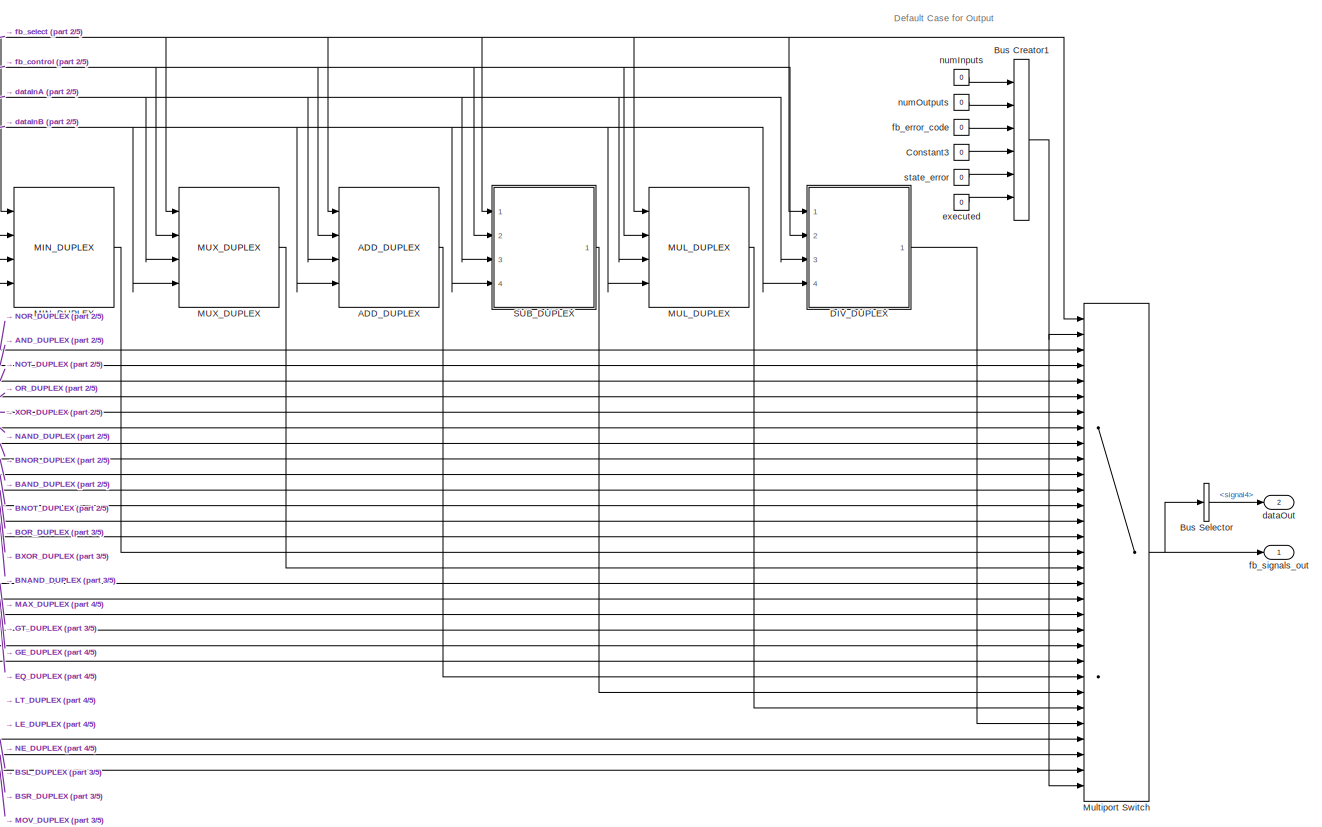
[diagram: root canvas - part 1/5, right side, full height]
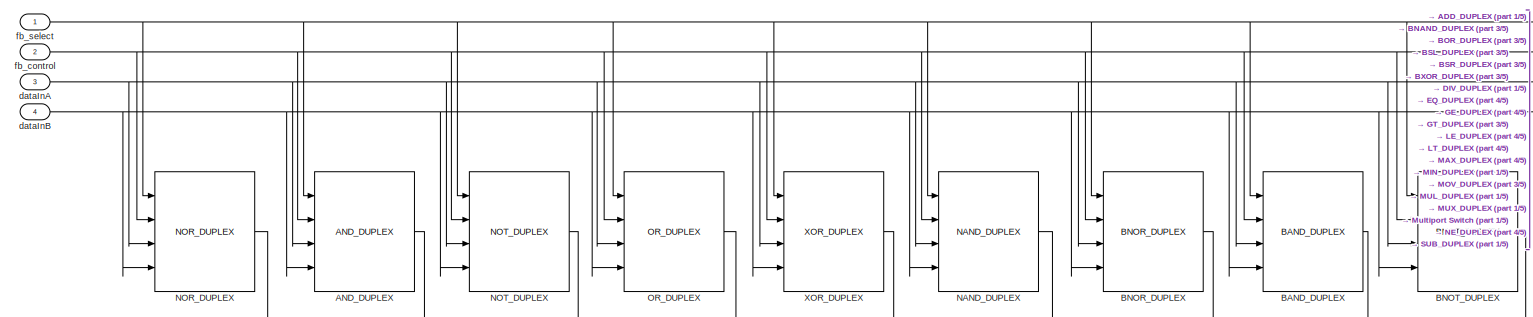
[diagram: root canvas - part 2/5, top left region]
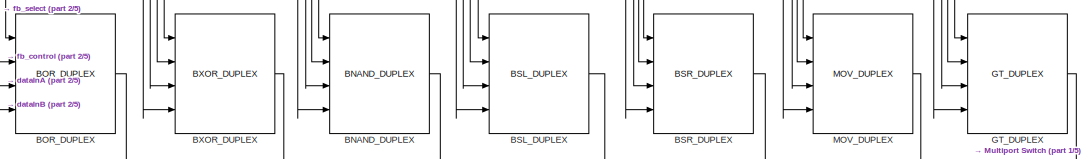
[diagram: root canvas - part 3/5, top center region]
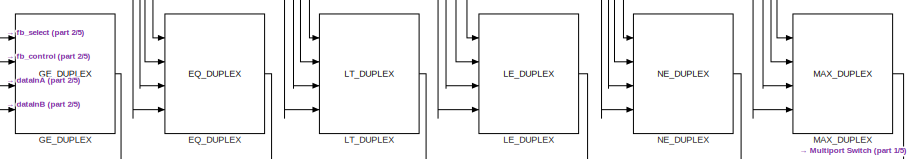
[diagram: root canvas - part 4/5, top center region]
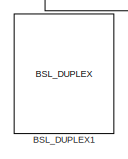
[diagram: root canvas - part 5/5, bottom center region]
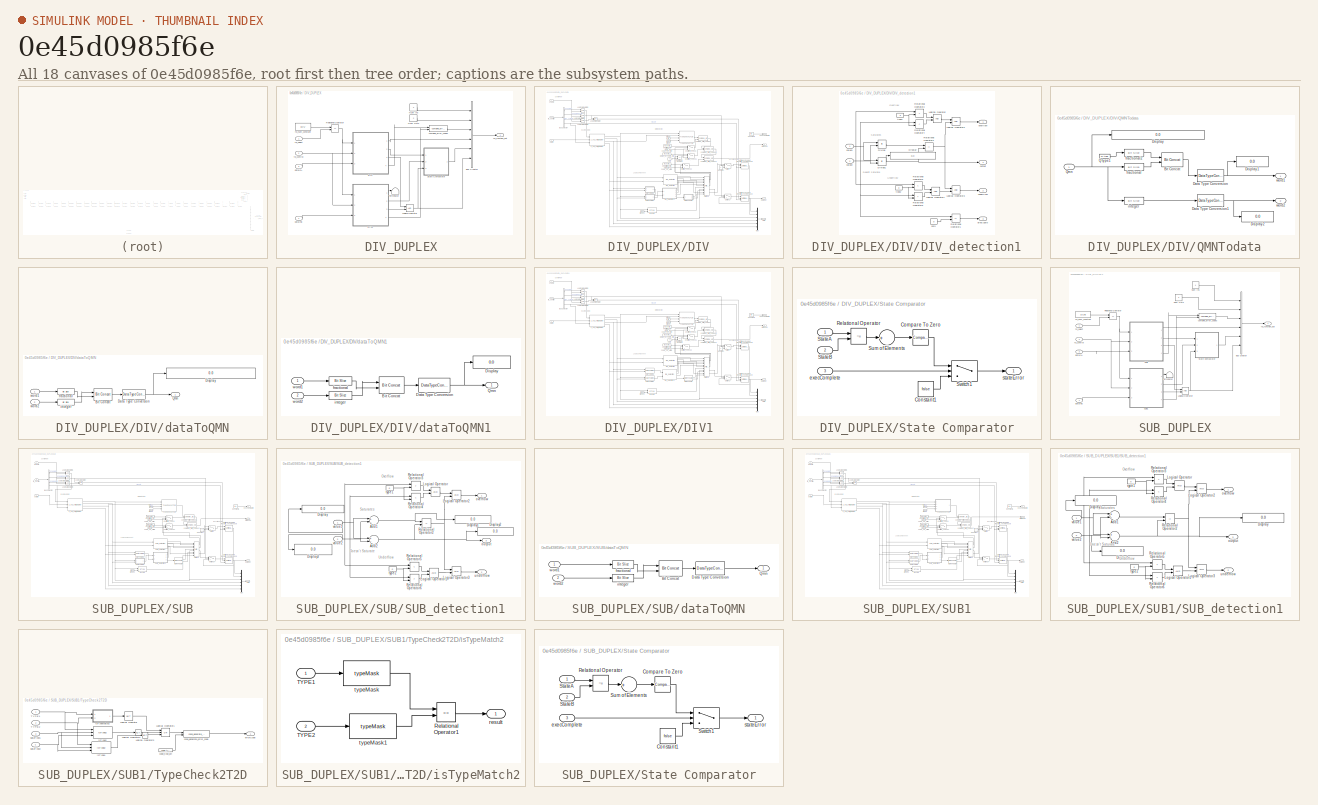
[diagram: thumbnail index - all 18 canvases of the model, root first then tree order]
MODEL slx_0e45d0985f6e
KIND model
CONFIG AbsTol = auto
CONFIG EnableMultiTasking = off
CONFIG FixedStep = auto
CONFIG MaxStep = auto
CONFIG MinStep = auto
CONFIG RelTol = 1e-3
CONFIG SampleTimeConstraint = Unconstrained
CONFIG Solver = VariableStepAuto
CONFIG SolverName = VariableStepAuto
CONFIG StartTime = 0.0
CONFIG StopTime = 10.0
BLOCK [Reference] ADD_DUPLEX  REF=library/ADD_DUPLEX  (lib defined in slx_3ff6af1150bc, slx_4edaf752ec85, +11 more)
  Ports = [4, 1]
  SourceBlock = library/ADD_DUPLEX
  SourceType = SubSystem
BLOCK [Reference] AND_DUPLEX  REF=library/AND_DUPLEX  (lib defined in slx_3ff6af1150bc, slx_4edaf752ec85, +11 more)
  Ports = [4, 1]
  SourceBlock = library/AND_DUPLEX
  SourceType = SubSystem
BLOCK [Reference] BAND_DUPLEX  REF=library/BAND_DUPLEX  (lib defined in slx_3ff6af1150bc, slx_4edaf752ec85, +11 more)
  Ports = [4, 1]
  SourceBlock = library/BAND_DUPLEX
  SourceType = SubSystem
BLOCK [Reference] BNAND_DUPLEX  REF=library/BNAND_DUPLEX  (lib defined in slx_3ff6af1150bc, slx_4edaf752ec85, +11 more)
  Ports = [4, 1]
  SourceBlock = library/BNAND_DUPLEX
  SourceType = SubSystem
BLOCK [Reference] BNOR_DUPLEX  REF=library/BNOR_DUPLEX  (lib defined in slx_3ff6af1150bc, slx_4edaf752ec85, +11 more)
  Ports = [4, 1]
  SourceBlock = library/BNOR_DUPLEX
  SourceType = SubSystem
BLOCK [Reference] BNOT_DUPLEX  REF=library/BNOT_DUPLEX  (lib defined in slx_3ff6af1150bc, slx_4edaf752ec85, +11 more)
  Ports = [4, 1]
  SourceBlock = library/BNOT_DUPLEX
  SourceType = SubSystem
BLOCK [Reference] BOR_DUPLEX  REF=library/BOR_DUPLEX  (lib defined in slx_3ff6af1150bc, slx_4edaf752ec85, +11 more)
  Ports = [4, 1]
  SourceBlock = library/BOR_DUPLEX
  SourceType = SubSystem
BLOCK [Reference] BSL_DUPLEX  REF=library/BSL_DUPLEX  (lib defined in slx_3ff6af1150bc, slx_4edaf752ec85, +11 more)
  Ports = [4, 1]
  SourceBlock = library/BSL_DUPLEX
  SourceType = SubSystem
BLOCK [Reference] BSL_DUPLEX1  REF=library/BSL_DUPLEX  (lib defined in slx_3ff6af1150bc, slx_4edaf752ec85, +11 more)
  Ports = [4, 1]
  SourceBlock = library/BSL_DUPLEX
  SourceType = SubSystem
BLOCK [Reference] BSR_DUPLEX  REF=library/BSR_DUPLEX  (lib defined in slx_3ff6af1150bc, slx_4edaf752ec85, +11 more)
  Ports = [4, 1]
  SourceBlock = library/BSR_DUPLEX
  SourceType = SubSystem
BLOCK [Reference] BXOR_DUPLEX  REF=library/BXOR_DUPLEX  (lib defined in slx_3ff6af1150bc, slx_4edaf752ec85, +11 more)
  Ports = [4, 1]
  SourceBlock = library/BXOR_DUPLEX
  SourceType = SubSystem
BLOCK [BusCreator] Bus Creator1
  DisplayOption = bar
  InheritFromInputs = on
  Inputs = 6
  OutDataTypeStr = Bus: fb_functions_out
  Ports = [6, 1]
BLOCK [BusSelector] Bus Selector
  OutputAsBus = off
  OutputSignals = signal4
  Ports = [1, 1]
BLOCK [Constant] Constant3
  OutDataTypeStr = int32
  SampleTime = -1
  Value = 0
BLOCK [SubSystem] DIV_DUPLEX
  AncestorBlock = library/DIV_DUPLEX
  Ports = [4, 1]
  RequestExecContextInheritance = off
  TreatAsAtomicUnit = on
  VariantControl = MUX_FB
BLOCK [BusCreator] DIV_DUPLEX/Bus Creator
  DisplayOption = bar
  InheritFromInputs = on
  Inputs = 6
  OutDataTypeStr = Bus: fb_functions_out
  Ports = [6, 1]
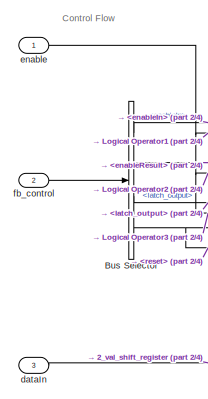
[diagram: DIV_DUPLEX/DIV - part 1/4, top left region]
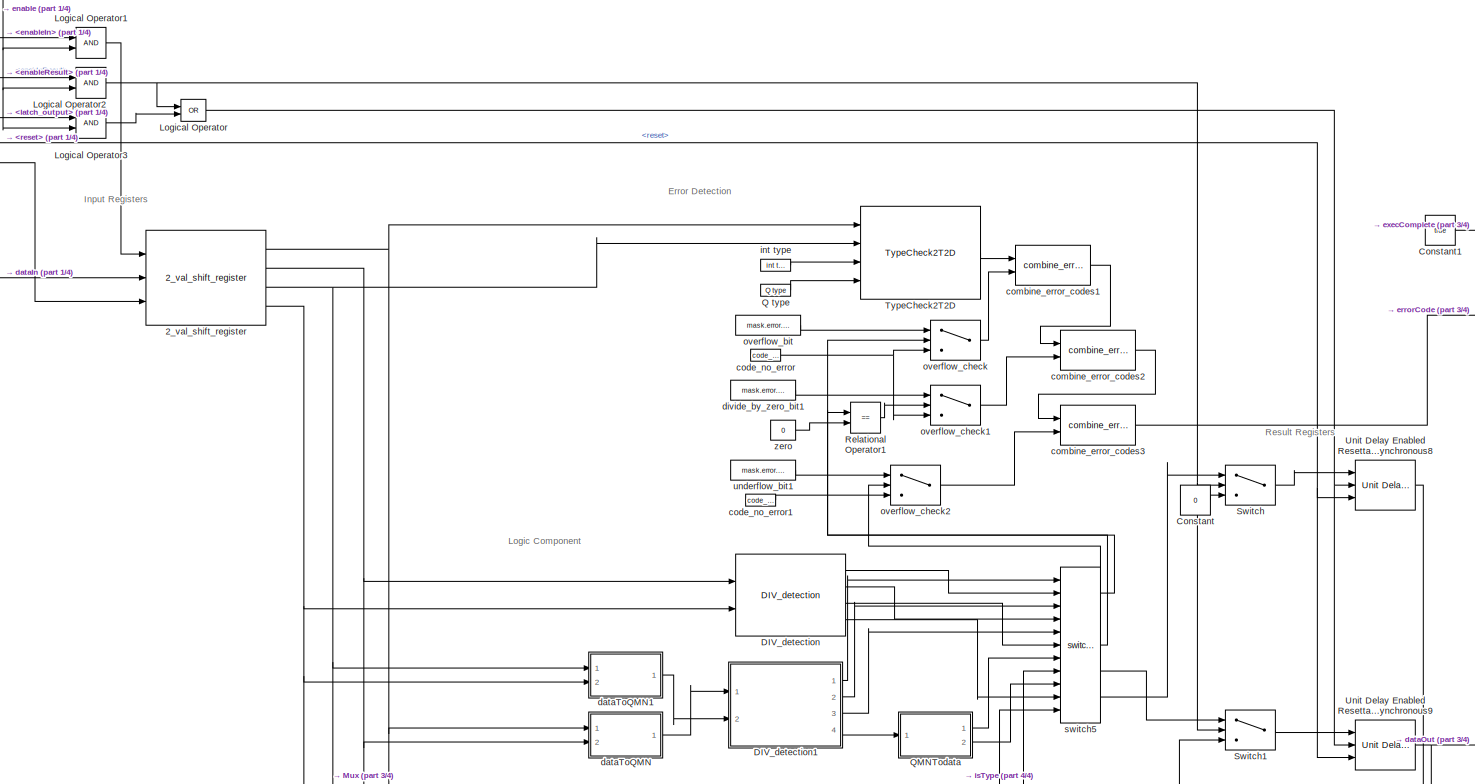
[diagram: DIV_DUPLEX/DIV - part 2/4, full width, middle band]
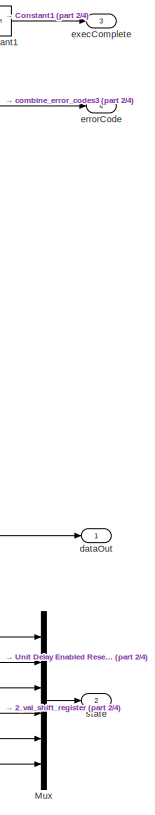
[diagram: DIV_DUPLEX/DIV - part 3/4, middle right region]
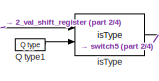
[diagram: DIV_DUPLEX/DIV - part 4/4, bottom center region]
BLOCK [SubSystem] DIV_DUPLEX/DIV
  AncestorBlock = library/DIV
  Ports = [3, 4]
  RequestExecContextInheritance = off
BLOCK [Reference] DIV_DUPLEX/DIV/2_val_shift_register  REF=library/2_val_shift_register  (lib defined in slx_3ff6af1150bc, slx_4edaf752ec85, +11 more)
  Ports = [3, 4]
  SourceBlock = library/2_val_shift_register
  SourceType = SubSystem
BLOCK [BusSelector] DIV_DUPLEX/DIV/Bus Selector
  OutputAsBus = off
  OutputSignals = enableIn,enableResult,latch_output,reset
  Ports = [1, 4]
BLOCK [Constant] DIV_DUPLEX/DIV/Constant
  OutDataTypeStr = int32
  Value = 0
BLOCK [Constant] DIV_DUPLEX/DIV/Constant1
  SampleTime = -1
  Value = true
BLOCK [Reference] DIV_DUPLEX/DIV/DIV_detection  REF=library/DIV_detection  (lib defined in slx_3ff6af1150bc, slx_4edaf752ec85, +11 more)
  Ports = [2, 4]
  SourceBlock = library/DIV_detection
  SourceType = SubSystem
BLOCK [SubSystem] DIV_DUPLEX/DIV/DIV_detection1
  AncestorBlock = library/DIV_detection
  Ports = [2, 4]
  RequestExecContextInheritance = off
BLOCK [Display] DIV_DUPLEX/DIV/DIV_detection1/Display
  Decimation = 1
  Format = long_e
  Ports = [1]
BLOCK [Product] DIV_DUPLEX/DIV/DIV_detection1/Divide
  InputSameDT = off
  Inputs = */
  OutDataTypeStr = Inherit: Inherit via internal rule
  Ports = [2, 1]
  RndMeth = Floor
BLOCK [Product] DIV_DUPLEX/DIV/DIV_detection1/Divide1
  InputSameDT = off
  Inputs = */
  OutDataTypeStr = Inherit: Inherit via internal rule
  Ports = [2, 1]
  RndMeth = Floor
  SaturateOnIntegerOverflow = off
BLOCK [Logic] DIV_DUPLEX/DIV/DIV_detection1/Logical Operator
  AllPortsSameDT = off
  OutDataTypeStr = boolean
  Ports = [2, 1]
BLOCK [Logic] DIV_DUPLEX/DIV/DIV_detection1/Logical Operator1
  AllPortsSameDT = off
  OutDataTypeStr = boolean
  Ports = [2, 1]
BLOCK [Logic] DIV_DUPLEX/DIV/DIV_detection1/Logical Operator2
  AllPortsSameDT = off
  OutDataTypeStr = boolean
  Ports = [2, 1]
BLOCK [Logic] DIV_DUPLEX/DIV/DIV_detection1/Logical Operator3
  AllPortsSameDT = off
  OutDataTypeStr = boolean
  Ports = [2, 1]
BLOCK [RelationalOperator] DIV_DUPLEX/DIV/DIV_detection1/Relational Operator1
  InputSameDT = off
  Operator = ==
  OutDataTypeStr = boolean
  Ports = [2, 1]
BLOCK [RelationalOperator] DIV_DUPLEX/DIV/DIV_detection1/Relational Operator2
  InputSameDT = off
  Operator = ~=
  OutDataTypeStr = boolean
  Ports = [2, 1]
BLOCK [RelationalOperator] DIV_DUPLEX/DIV/DIV_detection1/Relational Operator3
  InputSameDT = off
  Operator = >
  OutDataTypeStr = boolean
  Ports = [2, 1]
BLOCK [RelationalOperator] DIV_DUPLEX/DIV/DIV_detection1/Relational Operator4
  InputSameDT = off
  Operator = <
  OutDataTypeStr = boolean
  Ports = [2, 1]
BLOCK [RelationalOperator] DIV_DUPLEX/DIV/DIV_detection1/Relational Operator5
  InputSameDT = off
  Operator = <
  OutDataTypeStr = boolean
  Ports = [2, 1]
BLOCK [RelationalOperator] DIV_DUPLEX/DIV/DIV_detection1/Relational Operator6
  InputSameDT = off
  Operator = >
  OutDataTypeStr = boolean
  Ports = [2, 1]
BLOCK [Outport] DIV_DUPLEX/DIV/DIV_detection1/divByZero
  IconDisplay = Port number
  OutDataTypeStr = boolean
  Port = 3
  PortDimensions = 1
BLOCK [Outport] DIV_DUPLEX/DIV/DIV_detection1/output
  IconDisplay = Port number
  Port = 4
  PortDimensions = 1
BLOCK [Outport] DIV_DUPLEX/DIV/DIV_detection1/overflow
  IconDisplay = Port number
  OutDataTypeStr = boolean
  PortDimensions = 1
BLOCK [Constant] DIV_DUPLEX/DIV/DIV_detection1/type1
  OutDataTypeStr = Inherit: Inherit via back propagation
  Value = 0
BLOCK [Constant] DIV_DUPLEX/DIV/DIV_detection1/type2
  OutDataTypeStr = Inherit: Inherit via back propagation
  Value = 0
BLOCK [Outport] DIV_DUPLEX/DIV/DIV_detection1/underflow
  IconDisplay = Port number
  OutDataTypeStr = boolean
  Port = 2
  PortDimensions = 1
BLOCK [Inport] DIV_DUPLEX/DIV/DIV_detection1/value1
  IconDisplay = Port number
BLOCK [Inport] DIV_DUPLEX/DIV/DIV_detection1/value2
  IconDisplay = Port number
  Port = 2
BLOCK [Constant] DIV_DUPLEX/DIV/DIV_detection1/zero
  OutDataTypeStr = Inherit: Inherit via back propagation
  SampleTime = -1
  Value = 0
BLOCK [Logic] DIV_DUPLEX/DIV/Logical Operator
  AllPortsSameDT = off
  Operator = OR
  OutDataTypeStr = boolean
  Ports = [2, 1]
BLOCK [Logic] DIV_DUPLEX/DIV/Logical Operator1
  AllPortsSameDT = off
  OutDataTypeStr = boolean
  Ports = [2, 1]
BLOCK [Logic] DIV_DUPLEX/DIV/Logical Operator2
  AllPortsSameDT = off
  OutDataTypeStr = boolean
  Ports = [2, 1]
BLOCK [Logic] DIV_DUPLEX/DIV/Logical Operator3
  AllPortsSameDT = off
  OutDataTypeStr = boolean
  Ports = [2, 1]
BLOCK [Mux] DIV_DUPLEX/DIV/Mux
  DisplayOption = bar
  Inputs = 6
  Ports = [6, 1]
BLOCK [Reference] DIV_DUPLEX/DIV/Q type  REF=library/Q type  (lib defined in slx_3ff6af1150bc, slx_4edaf752ec85, +11 more)
  Ports = [0, 1]
  SourceBlock = library/Q type
  SourceType = SubSystem
BLOCK [Reference] DIV_DUPLEX/DIV/Q type1  REF=library/Q type  (lib defined in slx_3ff6af1150bc, slx_4edaf752ec85, +11 more)
  Ports = [0, 1]
  SourceBlock = library/Q type
  SourceType = SubSystem
BLOCK [SubSystem] DIV_DUPLEX/DIV/QMNTodata
  AncestorBlock = library/QMNTodata
  Ports = [1, 2]
  RequestExecContextInheritance = off
BLOCK [Reference] DIV_DUPLEX/DIV/QMNTodata/Bit Concat  REF=hdlsllib/Logic and Bit
Operations/Bit Concat
  Ports = [2, 1]
  SourceBlock = hdlsllib/Logic and Bit\nOperations/Bit Concat
  SourceProductBaseCode = HD
  SourceProductName = HDL Coder
  SourceType = Bit Concat
BLOCK [DataTypeConversion] DIV_DUPLEX/DIV/QMNTodata/Data Type Conversion
  ConvertRealWorld = Stored Integer (SI)
  OutDataTypeStr = int32
  RndMeth = Floor
  SaturateOnIntegerOverflow = off
BLOCK [DataTypeConversion] DIV_DUPLEX/DIV/QMNTodata/Data Type Conversion1
  ConvertRealWorld = Stored Integer (SI)
  OutDataTypeStr = int32
  RndMeth = Floor
  SaturateOnIntegerOverflow = off
BLOCK [Display] DIV_DUPLEX/DIV/QMNTodata/Display
  Decimation = 1
  Format = long_e
  Ports = [1]
BLOCK [Display] DIV_DUPLEX/DIV/QMNTodata/Display1
  Decimation = 1
  Ports = [1]
BLOCK [Display] DIV_DUPLEX/DIV/QMNTodata/Display2
  Decimation = 1
  Ports = [1]
BLOCK [Reference] DIV_DUPLEX/DIV/QMNTodata/Q type1  REF=library/Q type  (lib defined in slx_3ff6af1150bc, slx_4edaf752ec85, +11 more)
  Ports = [0, 1]
  SourceBlock = library/Q type
  SourceType = SubSystem
BLOCK [Inport] DIV_DUPLEX/DIV/QMNTodata/Qmn
  IconDisplay = Port number
BLOCK [Reference] DIV_DUPLEX/DIV/QMNTodata/fractional  REF=hdlsllib/Logic and Bit
Operations/Bit Slice
  Ports = [1, 1]
  SourceBlock = hdlsllib/Logic and Bit\nOperations/Bit Slice
  SourceProductBaseCode = HD
  SourceProductName = HDL Coder
  SourceType = Bit Slice
BLOCK [Reference] DIV_DUPLEX/DIV/QMNTodata/fractional2  REF=hdlsllib/Logic and Bit
Operations/Bit Slice
  Ports = [1, 1]
  SourceBlock = hdlsllib/Logic and Bit\nOperations/Bit Slice
  SourceProductBaseCode = HD
  SourceProductName = HDL Coder
  SourceType = Bit Slice
BLOCK [Reference] DIV_DUPLEX/DIV/QMNTodata/integer  REF=hdlsllib/Logic and Bit
Operations/Bit Slice
  Ports = [1, 1]
  SourceBlock = hdlsllib/Logic and Bit\nOperations/Bit Slice
  SourceProductBaseCode = HD
  SourceProductName = HDL Coder
  SourceType = Bit Slice
BLOCK [Outport] DIV_DUPLEX/DIV/QMNTodata/word1
  IconDisplay = Port number
  OutDataTypeStr = int32
  PortDimensions = 1
BLOCK [Outport] DIV_DUPLEX/DIV/QMNTodata/word2
  IconDisplay = Port number
  OutDataTypeStr = int32
  Port = 2
  PortDimensions = 1
BLOCK [RelationalOperator] DIV_DUPLEX/DIV/Relational Operator1
  InputSameDT = off
  Operator = ==
  OutDataTypeStr = boolean
  Ports = [2, 1]
BLOCK [Switch] DIV_DUPLEX/DIV/Switch
  Criteria = u2 > Threshold
  InputSameDT = off
  SaturateOnIntegerOverflow = off
BLOCK [Switch] DIV_DUPLEX/DIV/Switch1
  Criteria = u2 > Threshold
  InputSameDT = off
  SaturateOnIntegerOverflow = off
BLOCK [Reference] DIV_DUPLEX/DIV/TypeCheck2T2D  REF=library/TypeCheck2T2D  (lib defined in slx_3ff6af1150bc, slx_4edaf752ec85, +11 more)
  Ports = [4, 1]
  SourceBlock = library/TypeCheck2T2D
  SourceType = SubSystem
BLOCK [Reference] DIV_DUPLEX/DIV/Unit Delay Enabled Resettable Synchronous8  REF=hdlsllib/Discrete/Unit Delay Enabled Resettable
Synchronous
  Ports = [3, 1]
  SourceBlock = hdlsllib/Discrete/Unit Delay Enabled Resettable\nSynchronous
  SourceProductBaseCode = HD
  SourceProductName = HDL Coder
  SourceType = Unit Delay Enabled Resettable Synchronous
BLOCK [Reference] DIV_DUPLEX/DIV/Unit Delay Enabled Resettable Synchronous9  REF=hdlsllib/Discrete/Unit Delay Enabled Resettable
Synchronous
  Ports = [3, 1]
  SourceBlock = hdlsllib/Discrete/Unit Delay Enabled Resettable\nSynchronous
  SourceProductBaseCode = HD
  SourceProductName = HDL Coder
  SourceType = Unit Delay Enabled Resettable Synchronous
BLOCK [Reference] DIV_DUPLEX/DIV/code_no_error  REF=library/code_no_error  (lib defined in slx_3ff6af1150bc, slx_4edaf752ec85, +11 more)
  Ports = [0, 1]
  SourceBlock = library/code_no_error
  SourceType = SubSystem
BLOCK [Reference] DIV_DUPLEX/DIV/code_no_error1  REF=library/code_no_error  (lib defined in slx_3ff6af1150bc, slx_4edaf752ec85, +11 more)
  Ports = [0, 1]
  SourceBlock = library/code_no_error
  SourceType = SubSystem
BLOCK [Reference] DIV_DUPLEX/DIV/combine_error_codes1  REF=library/combine_error_codes  (lib defined in slx_3ff6af1150bc, slx_4edaf752ec85, +11 more)
  Ports = [2, 1]
  SourceBlock = library/combine_error_codes
  SourceType = SubSystem
BLOCK [Reference] DIV_DUPLEX/DIV/combine_error_codes2  REF=library/combine_error_codes  (lib defined in slx_3ff6af1150bc, slx_4edaf752ec85, +11 more)
  Ports = [2, 1]
  SourceBlock = library/combine_error_codes
  SourceType = SubSystem
BLOCK [Reference] DIV_DUPLEX/DIV/combine_error_codes3  REF=library/combine_error_codes  (lib defined in slx_3ff6af1150bc, slx_4edaf752ec85, +11 more)
  Ports = [2, 1]
  SourceBlock = library/combine_error_codes
  SourceType = SubSystem
BLOCK [Inport] DIV_DUPLEX/DIV/dataIn
  IconDisplay = Port number
  OutDataTypeStr = int32
  Port = 3
BLOCK [Outport] DIV_DUPLEX/DIV/dataOut
  IconDisplay = Port number
BLOCK [SubSystem] DIV_DUPLEX/DIV/dataToQMN
  AncestorBlock = library/dataToQMN
  Ports = [2, 1]
  RequestExecContextInheritance = off
BLOCK [Reference] DIV_DUPLEX/DIV/dataToQMN/Bit Concat  REF=hdlsllib/Logic and Bit
Operations/Bit Concat
  Ports = [2, 1]
  SourceBlock = hdlsllib/Logic and Bit\nOperations/Bit Concat
  SourceProductBaseCode = HD
  SourceProductName = HDL Coder
  SourceType = Bit Concat
BLOCK [DataTypeConversion] DIV_DUPLEX/DIV/dataToQMN/Data Type Conversion
  ConvertRealWorld = Stored Integer (SI)
  OutDataTypeStr = QType
  RndMeth = Floor
  SaturateOnIntegerOverflow = off
BLOCK [Display] DIV_DUPLEX/DIV/dataToQMN/Display
  Decimation = 1
  Format = long_e
  Ports = [1]
BLOCK [Outport] DIV_DUPLEX/DIV/dataToQMN/Qmn
  IconDisplay = Port number
  OutDataTypeStr = QType
  PortDimensions = 1
BLOCK [Reference] DIV_DUPLEX/DIV/dataToQMN/fractional  REF=hdlsllib/Logic and Bit
Operations/Bit Slice
  Ports = [1, 1]
  SourceBlock = hdlsllib/Logic and Bit\nOperations/Bit Slice
  SourceProductBaseCode = HD
  SourceProductName = HDL Coder
  SourceType = Bit Slice
BLOCK [Reference] DIV_DUPLEX/DIV/dataToQMN/integer  REF=hdlsllib/Logic and Bit
Operations/Bit Slice
  Ports = [1, 1]
  SourceBlock = hdlsllib/Logic and Bit\nOperations/Bit Slice
  SourceProductBaseCode = HD
  SourceProductName = HDL Coder
  SourceType = Bit Slice
BLOCK [Inport] DIV_DUPLEX/DIV/dataToQMN/word1
  IconDisplay = Port number
  OutDataTypeStr = int32
BLOCK [Inport] DIV_DUPLEX/DIV/dataToQMN/word2
  IconDisplay = Port number
  OutDataTypeStr = int32
  Port = 2
BLOCK [SubSystem] DIV_DUPLEX/DIV/dataToQMN1
  AncestorBlock = library/dataToQMN
  Ports = [2, 1]
  RequestExecContextInheritance = off
BLOCK [Reference] DIV_DUPLEX/DIV/dataToQMN1/Bit Concat  REF=hdlsllib/Logic and Bit
Operations/Bit Concat
  Ports = [2, 1]
  SourceBlock = hdlsllib/Logic and Bit\nOperations/Bit Concat
  SourceProductBaseCode = HD
  SourceProductName = HDL Coder
  SourceType = Bit Concat
BLOCK [DataTypeConversion] DIV_DUPLEX/DIV/dataToQMN1/Data Type Conversion
  ConvertRealWorld = Stored Integer (SI)
  OutDataTypeStr = QType
  RndMeth = Floor
  SaturateOnIntegerOverflow = off
BLOCK [Display] DIV_DUPLEX/DIV/dataToQMN1/Display
  Decimation = 1
  Format = long_e
  Ports = [1]
BLOCK [Outport] DIV_DUPLEX/DIV/dataToQMN1/Qmn
  IconDisplay = Port number
  OutDataTypeStr = QType
  PortDimensions = 1
BLOCK [Reference] DIV_DUPLEX/DIV/dataToQMN1/fractional  REF=hdlsllib/Logic and Bit
Operations/Bit Slice
  Ports = [1, 1]
  SourceBlock = hdlsllib/Logic and Bit\nOperations/Bit Slice
  SourceProductBaseCode = HD
  SourceProductName = HDL Coder
  SourceType = Bit Slice
BLOCK [Reference] DIV_DUPLEX/DIV/dataToQMN1/integer  REF=hdlsllib/Logic and Bit
Operations/Bit Slice
  Ports = [1, 1]
  SourceBlock = hdlsllib/Logic and Bit\nOperations/Bit Slice
  SourceProductBaseCode = HD
  SourceProductName = HDL Coder
  SourceType = Bit Slice
BLOCK [Inport] DIV_DUPLEX/DIV/dataToQMN1/word1
  IconDisplay = Port number
  OutDataTypeStr = int32
BLOCK [Inport] DIV_DUPLEX/DIV/dataToQMN1/word2
  IconDisplay = Port number
  OutDataTypeStr = int32
  Port = 2
BLOCK [Constant] DIV_DUPLEX/DIV/divide_by_zero_bit1
  SampleTime = -1
  Value = mask.error.divideByZeroBit
BLOCK [Inport] DIV_DUPLEX/DIV/enable
  IconDisplay = Port number
  OutDataTypeStr = boolean
BLOCK [Outport] DIV_DUPLEX/DIV/errorCode
  IconDisplay = Port number
  Port = 4
  PortDimensions = 1
BLOCK [Outport] DIV_DUPLEX/DIV/execComplete
  IconDisplay = Port number
  OutDataTypeStr = boolean
  Port = 3
  PortDimensions = 1
BLOCK [Inport] DIV_DUPLEX/DIV/fb_control
  IconDisplay = Port number
  OutDataTypeStr = Bus: fb_control
  Port = 2
BLOCK [Reference] DIV_DUPLEX/DIV/int type  REF=library/int type  (lib defined in slx_3ff6af1150bc, slx_4edaf752ec85, +11 more)
  Ports = [0, 1]
  SourceBlock = library/int type
  SourceType = SubSystem
BLOCK [Reference] DIV_DUPLEX/DIV/isType  REF=library/isType  (lib defined in slx_3ff6af1150bc, slx_4edaf752ec85, +11 more)
  Ports = [2, 1]
  SourceBlock = library/isType
  SourceType = SubSystem
BLOCK [Constant] DIV_DUPLEX/DIV/overflow_bit
  SampleTime = -1
  Value = mask.error.overflowBit
BLOCK [Switch] DIV_DUPLEX/DIV/overflow_check
  Criteria = u2 > Threshold
  InputSameDT = off
  SaturateOnIntegerOverflow = off
BLOCK [Switch] DIV_DUPLEX/DIV/overflow_check1
  Criteria = u2 > Threshold
  InputSameDT = off
  SaturateOnIntegerOverflow = off
BLOCK [Switch] DIV_DUPLEX/DIV/overflow_check2
  Criteria = u2 > Threshold
  InputSameDT = off
  SaturateOnIntegerOverflow = off
BLOCK [Outport] DIV_DUPLEX/DIV/state
  IconDisplay = Port number
  Port = 2
BLOCK [Reference] DIV_DUPLEX/DIV/switch5  REF=library/switch5  (lib defined in slx_3ff6af1150bc, slx_4edaf752ec85, +11 more)
  Ports = [11, 5]
  SourceBlock = library/switch5
  SourceType = SubSystem
BLOCK [Constant] DIV_DUPLEX/DIV/underflow_bit1
  SampleTime = -1
  Value = mask.error.overflowBit
BLOCK [Constant] DIV_DUPLEX/DIV/zero
  SampleTime = -1
  Value = 0
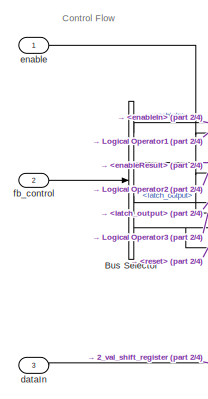
[diagram: DIV_DUPLEX/DIV1 - part 1/4, top left region]
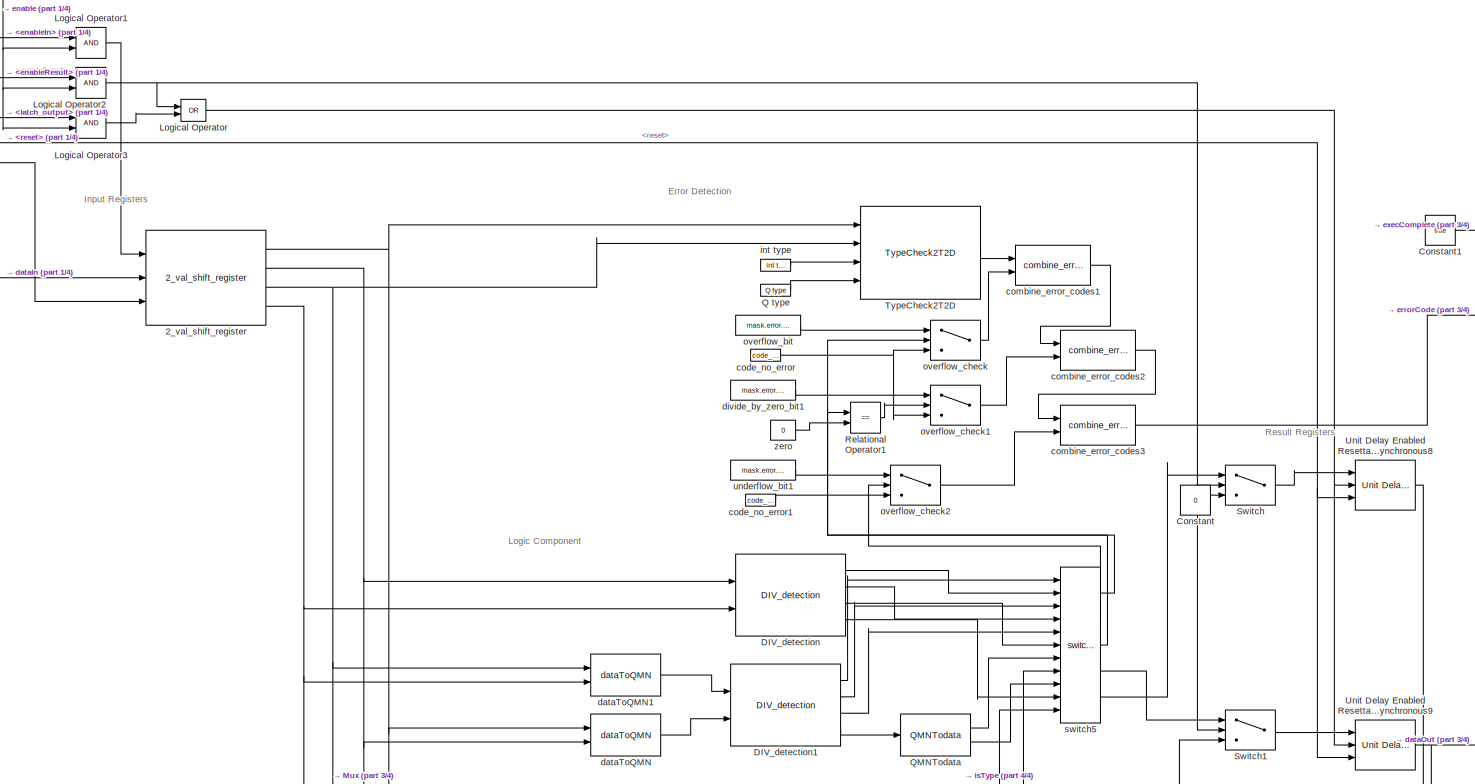
[diagram: DIV_DUPLEX/DIV1 - part 2/4, full width, middle band]
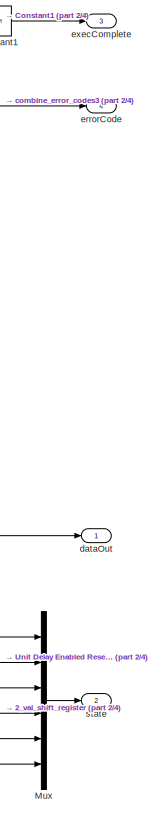
[diagram: DIV_DUPLEX/DIV1 - part 3/4, middle right region]
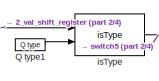
[diagram: DIV_DUPLEX/DIV1 - part 4/4, bottom center region]
BLOCK [SubSystem] DIV_DUPLEX/DIV1
  AncestorBlock = library/DIV
  Ports = [3, 4]
  RequestExecContextInheritance = off
BLOCK [Reference] DIV_DUPLEX/DIV1/2_val_shift_register  REF=library/2_val_shift_register  (lib defined in slx_3ff6af1150bc, slx_4edaf752ec85, +11 more)
  Ports = [3, 4]
  SourceBlock = library/2_val_shift_register
  SourceType = SubSystem
BLOCK [BusSelector] DIV_DUPLEX/DIV1/Bus Selector
  OutputAsBus = off
  OutputSignals = enableIn,enableResult,latch_output,reset
  Ports = [1, 4]
BLOCK [Constant] DIV_DUPLEX/DIV1/Constant
  OutDataTypeStr = int32
  Value = 0
BLOCK [Constant] DIV_DUPLEX/DIV1/Constant1
  SampleTime = -1
  Value = true
BLOCK [Reference] DIV_DUPLEX/DIV1/DIV_detection  REF=library/DIV_detection  (lib defined in slx_3ff6af1150bc, slx_4edaf752ec85, +11 more)
  Ports = [2, 4]
  SourceBlock = library/DIV_detection
  SourceType = SubSystem
BLOCK [Reference] DIV_DUPLEX/DIV1/DIV_detection1  REF=library/DIV_detection  (lib defined in slx_3ff6af1150bc, slx_4edaf752ec85, +11 more)
  Ports = [2, 4]
  SourceBlock = library/DIV_detection
  SourceType = SubSystem
BLOCK [Logic] DIV_DUPLEX/DIV1/Logical Operator
  AllPortsSameDT = off
  Operator = OR
  OutDataTypeStr = boolean
  Ports = [2, 1]
BLOCK [Logic] DIV_DUPLEX/DIV1/Logical Operator1
  AllPortsSameDT = off
  OutDataTypeStr = boolean
  Ports = [2, 1]
BLOCK [Logic] DIV_DUPLEX/DIV1/Logical Operator2
  AllPortsSameDT = off
  OutDataTypeStr = boolean
  Ports = [2, 1]
BLOCK [Logic] DIV_DUPLEX/DIV1/Logical Operator3
  AllPortsSameDT = off
  OutDataTypeStr = boolean
  Ports = [2, 1]
BLOCK [Mux] DIV_DUPLEX/DIV1/Mux
  DisplayOption = bar
  Inputs = 6
  Ports = [6, 1]
BLOCK [Reference] DIV_DUPLEX/DIV1/Q type  REF=library/Q type  (lib defined in slx_3ff6af1150bc, slx_4edaf752ec85, +11 more)
  Ports = [0, 1]
  SourceBlock = library/Q type
  SourceType = SubSystem
BLOCK [Reference] DIV_DUPLEX/DIV1/Q type1  REF=library/Q type  (lib defined in slx_3ff6af1150bc, slx_4edaf752ec85, +11 more)
  Ports = [0, 1]
  SourceBlock = library/Q type
  SourceType = SubSystem
BLOCK [Reference] DIV_DUPLEX/DIV1/QMNTodata  REF=library/QMNTodata  (lib defined in slx_3ff6af1150bc, slx_4edaf752ec85, +11 more)
  Ports = [1, 2]
  SourceBlock = library/QMNTodata
  SourceType = SubSystem
BLOCK [RelationalOperator] DIV_DUPLEX/DIV1/Relational Operator1
  InputSameDT = off
  Operator = ==
  OutDataTypeStr = boolean
  Ports = [2, 1]
BLOCK [Switch] DIV_DUPLEX/DIV1/Switch
  Criteria = u2 > Threshold
  InputSameDT = off
  SaturateOnIntegerOverflow = off
BLOCK [Switch] DIV_DUPLEX/DIV1/Switch1
  Criteria = u2 > Threshold
  InputSameDT = off
  SaturateOnIntegerOverflow = off
BLOCK [Reference] DIV_DUPLEX/DIV1/TypeCheck2T2D  REF=library/TypeCheck2T2D  (lib defined in slx_3ff6af1150bc, slx_4edaf752ec85, +11 more)
  Ports = [4, 1]
  SourceBlock = library/TypeCheck2T2D
  SourceType = SubSystem
BLOCK [Reference] DIV_DUPLEX/DIV1/Unit Delay Enabled Resettable Synchronous8  REF=hdlsllib/Discrete/Unit Delay Enabled Resettable
Synchronous
  Ports = [3, 1]
  SourceBlock = hdlsllib/Discrete/Unit Delay Enabled Resettable\nSynchronous
  SourceProductBaseCode = HD
  SourceProductName = HDL Coder
  SourceType = Unit Delay Enabled Resettable Synchronous
BLOCK [Reference] DIV_DUPLEX/DIV1/Unit Delay Enabled Resettable Synchronous9  REF=hdlsllib/Discrete/Unit Delay Enabled Resettable
Synchronous
  Ports = [3, 1]
  SourceBlock = hdlsllib/Discrete/Unit Delay Enabled Resettable\nSynchronous
  SourceProductBaseCode = HD
  SourceProductName = HDL Coder
  SourceType = Unit Delay Enabled Resettable Synchronous
BLOCK [Reference] DIV_DUPLEX/DIV1/code_no_error  REF=library/code_no_error  (lib defined in slx_3ff6af1150bc, slx_4edaf752ec85, +11 more)
  Ports = [0, 1]
  SourceBlock = library/code_no_error
  SourceType = SubSystem
BLOCK [Reference] DIV_DUPLEX/DIV1/code_no_error1  REF=library/code_no_error  (lib defined in slx_3ff6af1150bc, slx_4edaf752ec85, +11 more)
  Ports = [0, 1]
  SourceBlock = library/code_no_error
  SourceType = SubSystem
BLOCK [Reference] DIV_DUPLEX/DIV1/combine_error_codes1  REF=library/combine_error_codes  (lib defined in slx_3ff6af1150bc, slx_4edaf752ec85, +11 more)
  Ports = [2, 1]
  SourceBlock = library/combine_error_codes
  SourceType = SubSystem
BLOCK [Reference] DIV_DUPLEX/DIV1/combine_error_codes2  REF=library/combine_error_codes  (lib defined in slx_3ff6af1150bc, slx_4edaf752ec85, +11 more)
  Ports = [2, 1]
  SourceBlock = library/combine_error_codes
  SourceType = SubSystem
BLOCK [Reference] DIV_DUPLEX/DIV1/combine_error_codes3  REF=library/combine_error_codes  (lib defined in slx_3ff6af1150bc, slx_4edaf752ec85, +11 more)
  Ports = [2, 1]
  SourceBlock = library/combine_error_codes
  SourceType = SubSystem
BLOCK [Inport] DIV_DUPLEX/DIV1/dataIn
  IconDisplay = Port number
  OutDataTypeStr = int32
  Port = 3
BLOCK [Outport] DIV_DUPLEX/DIV1/dataOut
  IconDisplay = Port number
BLOCK [Reference] DIV_DUPLEX/DIV1/dataToQMN  REF=library/dataToQMN  (lib defined in slx_3ff6af1150bc, slx_4edaf752ec85, +11 more)
  Ports = [2, 1]
  SourceBlock = library/dataToQMN
  SourceType = SubSystem
BLOCK [Reference] DIV_DUPLEX/DIV1/dataToQMN1  REF=library/dataToQMN  (lib defined in slx_3ff6af1150bc, slx_4edaf752ec85, +11 more)
  Ports = [2, 1]
  SourceBlock = library/dataToQMN
  SourceType = SubSystem
BLOCK [Constant] DIV_DUPLEX/DIV1/divide_by_zero_bit1
  SampleTime = -1
  Value = mask.error.divideByZeroBit
BLOCK [Inport] DIV_DUPLEX/DIV1/enable
  IconDisplay = Port number
  OutDataTypeStr = boolean
BLOCK [Outport] DIV_DUPLEX/DIV1/errorCode
  IconDisplay = Port number
  Port = 4
  PortDimensions = 1
BLOCK [Outport] DIV_DUPLEX/DIV1/execComplete
  IconDisplay = Port number
  OutDataTypeStr = boolean
  Port = 3
  PortDimensions = 1
BLOCK [Inport] DIV_DUPLEX/DIV1/fb_control
  IconDisplay = Port number
  OutDataTypeStr = Bus: fb_control
  Port = 2
BLOCK [Reference] DIV_DUPLEX/DIV1/int type  REF=library/int type  (lib defined in slx_3ff6af1150bc, slx_4edaf752ec85, +11 more)
  Ports = [0, 1]
  SourceBlock = library/int type
  SourceType = SubSystem
BLOCK [Reference] DIV_DUPLEX/DIV1/isType  REF=library/isType  (lib defined in slx_3ff6af1150bc, slx_4edaf752ec85, +11 more)
  Ports = [2, 1]
  SourceBlock = library/isType
  SourceType = SubSystem
BLOCK [Constant] DIV_DUPLEX/DIV1/overflow_bit
  SampleTime = -1
  Value = mask.error.overflowBit
BLOCK [Switch] DIV_DUPLEX/DIV1/overflow_check
  Criteria = u2 > Threshold
  InputSameDT = off
  SaturateOnIntegerOverflow = off
BLOCK [Switch] DIV_DUPLEX/DIV1/overflow_check1
  Criteria = u2 > Threshold
  InputSameDT = off
  SaturateOnIntegerOverflow = off
BLOCK [Switch] DIV_DUPLEX/DIV1/overflow_check2
  Criteria = u2 > Threshold
  InputSameDT = off
  SaturateOnIntegerOverflow = off
BLOCK [Outport] DIV_DUPLEX/DIV1/state
  IconDisplay = Port number
  Port = 2
BLOCK [Reference] DIV_DUPLEX/DIV1/switch5  REF=library/switch5  (lib defined in slx_3ff6af1150bc, slx_4edaf752ec85, +11 more)
  Ports = [11, 5]
  SourceBlock = library/switch5
  SourceType = SubSystem
BLOCK [Constant] DIV_DUPLEX/DIV1/underflow_bit1
  SampleTime = -1
  Value = mask.error.overflowBit
BLOCK [Constant] DIV_DUPLEX/DIV1/zero
  SampleTime = -1
  Value = 0
BLOCK [Logic] DIV_DUPLEX/Logical Operator
  AllPortsSameDT = off
  OutDataTypeStr = boolean
  Ports = [2, 1]
BLOCK [Constant] DIV_DUPLEX/Num Ins
  OutDataTypeStr = Inherit: Inherit via back propagation
  Value = 4
BLOCK [Constant] DIV_DUPLEX/Num Outs
  OutDataTypeStr = Inherit: Inherit via back propagation
  Value = 2
BLOCK [RelationalOperator] DIV_DUPLEX/Relational Operator
  InputSameDT = off
  Operator = ==
  OutDataTypeStr = boolean
  Ports = [2, 1]
BLOCK [SubSystem] DIV_DUPLEX/State Comparator
  Ports = [3, 1]
  RequestExecContextInheritance = off
BLOCK [Reference] DIV_DUPLEX/State Comparator/Compare To Zero  REF=simulink/Logic and Bit
Operations/Compare
To Zero
  Ports = [1, 1]
  SourceBlock = simulink/Logic and Bit\nOperations/Compare\nTo Zero
  SourceProductBaseCode = SL
  SourceProductName = Simulink
  SourceType = Compare To Zero
BLOCK [Constant] DIV_DUPLEX/State Comparator/Constant1
  SampleTime = -1
  Value = false
BLOCK [RelationalOperator] DIV_DUPLEX/State Comparator/Relational Operator
  InputSameDT = off
  Operator = ~=
  OutDataTypeStr = boolean
  Ports = [2, 1]
  RndMeth = Simplest
BLOCK [Inport] DIV_DUPLEX/State Comparator/StateA
  IconDisplay = Port number
BLOCK [Inport] DIV_DUPLEX/State Comparator/StateB
  IconDisplay = Port number
  Port = 2
BLOCK [Sum] DIV_DUPLEX/State Comparator/Sum of Elements
  InputSameDT = off
  Inputs = +
  OutDataTypeStr = Inherit: Inherit via internal rule
  Ports = [1, 1]
  SaturateOnIntegerOverflow = off
BLOCK [Switch] DIV_DUPLEX/State Comparator/Switch1
  Criteria = u2 > Threshold
  InputSameDT = off
  SaturateOnIntegerOverflow = off
BLOCK [Inport] DIV_DUPLEX/State Comparator/execComplete
  IconDisplay = Port number
  Port = 3
BLOCK [Outport] DIV_DUPLEX/State Comparator/stateError
  IconDisplay = Port number
BLOCK [Terminator] DIV_DUPLEX/Terminator
BLOCK [Reference] DIV_DUPLEX/combine_error_codes  REF=library/combine_error_codes  (lib defined in slx_3ff6af1150bc, slx_4edaf752ec85, +11 more)
  Ports = [2, 1]
  SourceBlock = library/combine_error_codes
  SourceType = SubSystem
BLOCK [Inport] DIV_DUPLEX/dataInA
  IconDisplay = Port number
  Port = 3
BLOCK [Inport] DIV_DUPLEX/dataInB
  IconDisplay = Port number
  Port = 4
BLOCK [Inport] DIV_DUPLEX/fb_control
  IconDisplay = Port number
  OutDataTypeStr = Bus: fb_control
  Port = 2
BLOCK [Outport] DIV_DUPLEX/fb_function_out
  IconDisplay = Port number
  OutDataTypeStr = Bus: fb_functions_out
BLOCK [Constant] DIV_DUPLEX/fb_num_constant
  Value = DIV
BLOCK [Inport] DIV_DUPLEX/fb_select
  IconDisplay = Port number
BLOCK [Reference] EQ_DUPLEX  REF=library/EQ_DUPLEX  (lib defined in slx_3ff6af1150bc, slx_4edaf752ec85, +11 more)
  Ports = [4, 1]
  SourceBlock = library/EQ_DUPLEX
  SourceType = SubSystem
BLOCK [Reference] GE_DUPLEX  REF=library/GE_DUPLEX  (lib defined in slx_3ff6af1150bc, slx_4edaf752ec85, +11 more)
  Ports = [4, 1]
  SourceBlock = library/GE_DUPLEX
  SourceType = SubSystem
BLOCK [Reference] GT_DUPLEX  REF=library/GT_DUPLEX  (lib defined in slx_3ff6af1150bc, slx_4edaf752ec85, +11 more)
  Ports = [4, 1]
  SourceBlock = library/GT_DUPLEX
  SourceType = SubSystem
BLOCK [Reference] LE_DUPLEX  REF=library/LE_DUPLEX  (lib defined in slx_3ff6af1150bc, slx_4edaf752ec85, +11 more)
  Ports = [4, 1]
  SourceBlock = library/LE_DUPLEX
  SourceType = SubSystem
BLOCK [Reference] LT_DUPLEX  REF=library/LT_DUPLEX  (lib defined in slx_3ff6af1150bc, slx_4edaf752ec85, +11 more)
  Ports = [4, 1]
  SourceBlock = library/LT_DUPLEX
  SourceType = SubSystem
BLOCK [Reference] MAX_DUPLEX  REF=library/MAX_DUPLEX  (lib defined in slx_3ff6af1150bc, slx_4edaf752ec85, +11 more)
  Ports = [4, 1]
  SourceBlock = library/MAX_DUPLEX
  SourceType = SubSystem
BLOCK [Reference] MIN_DUPLEX  REF=library/MIN_DUPLEX  (lib defined in slx_3ff6af1150bc, slx_4edaf752ec85, +11 more)
  Ports = [4, 1]
  SourceBlock = library/MIN_DUPLEX
  SourceType = SubSystem
BLOCK [Reference] MOV_DUPLEX  REF=library/MOV_DUPLEX  (lib defined in slx_3ff6af1150bc, slx_4edaf752ec85, +11 more)
  Ports = [4, 1]
  SourceBlock = library/MOV_DUPLEX
  SourceType = SubSystem
BLOCK [Reference] MUL_DUPLEX  REF=library/MUL_DUPLEX  (lib defined in slx_3ff6af1150bc, slx_4edaf752ec85, +11 more)
  Ports = [4, 1]
  SourceBlock = library/MUL_DUPLEX
  SourceType = SubSystem
BLOCK [Reference] MUX_DUPLEX  REF=library/MUX_DUPLEX  (lib defined in slx_3ff6af1150bc, slx_4edaf752ec85, +11 more)
  Ports = [4, 1]
  SourceBlock = library/MUX_DUPLEX
  SourceType = SubSystem
BLOCK [MultiPortSwitch] Multiport Switch
  DataPortForDefault = Additional data port
  DataPortOrder = Zero-based contiguous
  InputSameDT = off
  Inputs = 29
  OutDataTypeStr = Inherit: Inherit via back propagation
  Ports = [31, 1]
  SaturateOnIntegerOverflow = off
  zeroidx = on
BLOCK [Reference] NAND_DUPLEX  REF=library/NAND_DUPLEX  (lib defined in slx_3ff6af1150bc, slx_4edaf752ec85, +11 more)
  Ports = [4, 1]
  SourceBlock = library/NAND_DUPLEX
  SourceType = SubSystem
BLOCK [Reference] NE_DUPLEX  REF=library/NE_DUPLEX  (lib defined in slx_3ff6af1150bc, slx_4edaf752ec85, +11 more)
  Ports = [4, 1]
  SourceBlock = library/NE_DUPLEX
  SourceType = SubSystem
BLOCK [Reference] NOR_DUPLEX  REF=library/NOR_DUPLEX  (lib defined in slx_3ff6af1150bc, slx_4edaf752ec85, +11 more)
  Ports = [4, 1]
  SourceBlock = library/NOR_DUPLEX
  SourceType = SubSystem
BLOCK [Reference] NOT_DUPLEX  REF=library/NOT_DUPLEX  (lib defined in slx_3ff6af1150bc, slx_4edaf752ec85, +11 more)
  Ports = [4, 1]
  SourceBlock = library/NOT_DUPLEX
  SourceType = SubSystem
BLOCK [Reference] OR_DUPLEX  REF=library/OR_DUPLEX  (lib defined in slx_3ff6af1150bc, slx_4edaf752ec85, +11 more)
  Ports = [4, 1]
  SourceBlock = library/OR_DUPLEX
  SourceType = SubSystem
BLOCK [SubSystem] SUB_DUPLEX
  AncestorBlock = library/SUB_DUPLEX
  Ports = [4, 1]
  RequestExecContextInheritance = off
  TreatAsAtomicUnit = on
  VariantControl = MUX_FB
BLOCK [BusCreator] SUB_DUPLEX/Bus Creator
  DisplayOption = bar
  InheritFromInputs = on
  Inputs = 6
  OutDataTypeStr = Bus: fb_functions_out
  Ports = [6, 1]
BLOCK [Logic] SUB_DUPLEX/Logical Operator
  AllPortsSameDT = off
  OutDataTypeStr = boolean
  Ports = [2, 1]
BLOCK [Constant] SUB_DUPLEX/Num Ins
  OutDataTypeStr = Inherit: Inherit via back propagation
  Value = 4
BLOCK [Constant] SUB_DUPLEX/Num Outs
  OutDataTypeStr = Inherit: Inherit via back propagation
  Value = 2
BLOCK [RelationalOperator] SUB_DUPLEX/Relational Operator
  InputSameDT = off
  Operator = ==
  OutDataTypeStr = boolean
  Ports = [2, 1]
BLOCK [SubSystem] SUB_DUPLEX/SUB
  AncestorBlock = library/SUB
  Ports = [3, 4]
  RequestExecContextInheritance = off
BLOCK [Reference] SUB_DUPLEX/SUB/2_val_shift_register  REF=library/2_val_shift_register  (lib defined in slx_3ff6af1150bc, slx_4edaf752ec85, +11 more)
  Ports = [3, 4]
  SourceBlock = library/2_val_shift_register
  SourceType = SubSystem
BLOCK [BusSelector] SUB_DUPLEX/SUB/Bus Selector
  OutputAsBus = off
  OutputSignals = enableIn,enableResult,enableOut,reset
  Ports = [1, 4]
BLOCK [Constant] SUB_DUPLEX/SUB/Constant
  OutDataTypeStr = int32
  Value = 0
BLOCK [Constant] SUB_DUPLEX/SUB/Constant1
  SampleTime = -1
  Value = true
BLOCK [Logic] SUB_DUPLEX/SUB/Logical Operator
  AllPortsSameDT = off
  Operator = OR
  OutDataTypeStr = boolean
  Ports = [2, 1]
BLOCK [Logic] SUB_DUPLEX/SUB/Logical Operator1
  AllPortsSameDT = off
  OutDataTypeStr = boolean
  Ports = [2, 1]
BLOCK [Logic] SUB_DUPLEX/SUB/Logical Operator2
  AllPortsSameDT = off
  OutDataTypeStr = boolean
  Ports = [2, 1]
BLOCK [Logic] SUB_DUPLEX/SUB/Logical Operator3
  AllPortsSameDT = off
  OutDataTypeStr = boolean
  Ports = [2, 1]
BLOCK [Mux] SUB_DUPLEX/SUB/Mux
  DisplayOption = bar
  Inputs = 6
  Ports = [6, 1]
BLOCK [Reference] SUB_DUPLEX/SUB/Q type  REF=library/Q type  (lib defined in slx_3ff6af1150bc, slx_4edaf752ec85, +11 more)
  Ports = [0, 1]
  SourceBlock = library/Q type
  SourceType = SubSystem
BLOCK [Reference] SUB_DUPLEX/SUB/Q type1  REF=library/Q type  (lib defined in slx_3ff6af1150bc, slx_4edaf752ec85, +11 more)
  Ports = [0, 1]
  SourceBlock = library/Q type
  SourceType = SubSystem
BLOCK [Reference] SUB_DUPLEX/SUB/QMNTodata  REF=library/QMNTodata  (lib defined in slx_3ff6af1150bc, slx_4edaf752ec85, +11 more)
  Ports = [1, 2]
  SourceBlock = library/QMNTodata
  SourceType = SubSystem
BLOCK [Reference] SUB_DUPLEX/SUB/SUB_detection  REF=library/SUB_detection  (lib defined in slx_3ff6af1150bc, slx_4edaf752ec85, +11 more)
  Ports = [2, 3]
  SourceBlock = library/SUB_detection
  SourceType = SubSystem
BLOCK [SubSystem] SUB_DUPLEX/SUB/SUB_detection1
  AncestorBlock = library/SUB_detection
  Ports = [2, 3]
  RequestExecContextInheritance = off
BLOCK [Sum] SUB_DUPLEX/SUB/SUB_detection1/Add1
  InputSameDT = off
  Inputs = +-
  OutDataTypeStr = Inherit: Inherit via internal rule
  Ports = [2, 1]
BLOCK [Sum] SUB_DUPLEX/SUB/SUB_detection1/Add2
  InputSameDT = off
  Inputs = +-
  OutDataTypeStr = Inherit: Inherit via internal rule
  Ports = [2, 1]
  SaturateOnIntegerOverflow = off
BLOCK [Display] SUB_DUPLEX/SUB/SUB_detection1/Display
  Decimation = 1
  Format = long_e
  Ports = [1]
BLOCK [Display] SUB_DUPLEX/SUB/SUB_detection1/Display1
  Decimation = 1
  Format = long_e
  Ports = [1]
BLOCK [Display] SUB_DUPLEX/SUB/SUB_detection1/Display2
  Decimation = 1
  Format = long_e
  Ports = [1]
BLOCK [Display] SUB_DUPLEX/SUB/SUB_detection1/Display3
  Decimation = 1
  Format = long_e
  Ports = [1]
BLOCK [Logic] SUB_DUPLEX/SUB/SUB_detection1/Logical Operator
  AllPortsSameDT = off
  OutDataTypeStr = boolean
  Ports = [2, 1]
BLOCK [Logic] SUB_DUPLEX/SUB/SUB_detection1/Logical Operator1
  AllPortsSameDT = off
  OutDataTypeStr = boolean
  Ports = [2, 1]
BLOCK [Logic] SUB_DUPLEX/SUB/SUB_detection1/Logical Operator2
  AllPortsSameDT = off
  OutDataTypeStr = boolean
  Ports = [2, 1]
BLOCK [Logic] SUB_DUPLEX/SUB/SUB_detection1/Logical Operator3
  AllPortsSameDT = off
  OutDataTypeStr = boolean
  Ports = [2, 1]
BLOCK [RelationalOperator] SUB_DUPLEX/SUB/SUB_detection1/Relational Operator2
  InputSameDT = off
  Operator = ~=
  OutDataTypeStr = boolean
  Ports = [2, 1]
BLOCK [RelationalOperator] SUB_DUPLEX/SUB/SUB_detection1/Relational Operator3
  InputSameDT = off
  Operator = >
  OutDataTypeStr = boolean
  Ports = [2, 1]
BLOCK [RelationalOperator] SUB_DUPLEX/SUB/SUB_detection1/Relational Operator4
  InputSameDT = off
  Operator = <
  OutDataTypeStr = boolean
  Ports = [2, 1]
BLOCK [RelationalOperator] SUB_DUPLEX/SUB/SUB_detection1/Relational Operator5
  InputSameDT = off
  Operator = <
  OutDataTypeStr = boolean
  Ports = [2, 1]
BLOCK [RelationalOperator] SUB_DUPLEX/SUB/SUB_detection1/Relational Operator6
  InputSameDT = off
  Operator = >
  OutDataTypeStr = boolean
  Ports = [2, 1]
BLOCK [Outport] SUB_DUPLEX/SUB/SUB_detection1/output
  IconDisplay = Port number
  Port = 3
  PortDimensions = 1
BLOCK [Outport] SUB_DUPLEX/SUB/SUB_detection1/overflow
  IconDisplay = Port number
  OutDataTypeStr = boolean
  PortDimensions = 1
BLOCK [Constant] SUB_DUPLEX/SUB/SUB_detection1/type1
  OutDataTypeStr = Inherit: Inherit via back propagation
  Value = 0
BLOCK [Constant] SUB_DUPLEX/SUB/SUB_detection1/type2
  OutDataTypeStr = Inherit: Inherit via back propagation
  Value = 0
BLOCK [Outport] SUB_DUPLEX/SUB/SUB_detection1/underflow
  IconDisplay = Port number
  OutDataTypeStr = boolean
  Port = 2
  PortDimensions = 1
BLOCK [Inport] SUB_DUPLEX/SUB/SUB_detection1/value1
  IconDisplay = Port number
BLOCK [Inport] SUB_DUPLEX/SUB/SUB_detection1/value2
  IconDisplay = Port number
  Port = 2
BLOCK [Switch] SUB_DUPLEX/SUB/Switch
  Criteria = u2 > Threshold
  InputSameDT = off
  SaturateOnIntegerOverflow = off
BLOCK [Switch] SUB_DUPLEX/SUB/Switch1
  Criteria = u2 > Threshold
  InputSameDT = off
  SaturateOnIntegerOverflow = off
BLOCK [Reference] SUB_DUPLEX/SUB/TypeCheck2T2D  REF=library/TypeCheck2T2D  (lib defined in slx_3ff6af1150bc, slx_4edaf752ec85, +11 more)
  Ports = [4, 1]
  SourceBlock = library/TypeCheck2T2D
  SourceType = SubSystem
BLOCK [Reference] SUB_DUPLEX/SUB/Unit Delay Enabled Resettable Synchronous8  REF=hdlsllib/Discrete/Unit Delay Enabled Resettable
Synchronous
  Ports = [3, 1]
  SourceBlock = hdlsllib/Discrete/Unit Delay Enabled Resettable\nSynchronous
  SourceProductBaseCode = HD
  SourceProductName = HDL Coder
  SourceType = Unit Delay Enabled Resettable Synchronous
BLOCK [Reference] SUB_DUPLEX/SUB/Unit Delay Enabled Resettable Synchronous9  REF=hdlsllib/Discrete/Unit Delay Enabled Resettable
Synchronous
  Ports = [3, 1]
  SourceBlock = hdlsllib/Discrete/Unit Delay Enabled Resettable\nSynchronous
  SourceProductBaseCode = HD
  SourceProductName = HDL Coder
  SourceType = Unit Delay Enabled Resettable Synchronous
BLOCK [Reference] SUB_DUPLEX/SUB/code_no_error  REF=library/code_no_error  (lib defined in slx_3ff6af1150bc, slx_4edaf752ec85, +11 more)
  Ports = [0, 1]
  SourceBlock = library/code_no_error
  SourceType = SubSystem
BLOCK [Reference] SUB_DUPLEX/SUB/code_no_error1  REF=library/code_no_error  (lib defined in slx_3ff6af1150bc, slx_4edaf752ec85, +11 more)
  Ports = [0, 1]
  SourceBlock = library/code_no_error
  SourceType = SubSystem
BLOCK [Reference] SUB_DUPLEX/SUB/combine_error_codes1  REF=library/combine_error_codes  (lib defined in slx_3ff6af1150bc, slx_4edaf752ec85, +11 more)
  Ports = [2, 1]
  SourceBlock = library/combine_error_codes
  SourceType = SubSystem
BLOCK [Reference] SUB_DUPLEX/SUB/combine_error_codes2  REF=library/combine_error_codes  (lib defined in slx_3ff6af1150bc, slx_4edaf752ec85, +11 more)
  Ports = [2, 1]
  SourceBlock = library/combine_error_codes
  SourceType = SubSystem
BLOCK [Inport] SUB_DUPLEX/SUB/dataIn
  IconDisplay = Port number
  OutDataTypeStr = int32
  Port = 3
BLOCK [Outport] SUB_DUPLEX/SUB/dataOut
  IconDisplay = Port number
BLOCK [SubSystem] SUB_DUPLEX/SUB/dataToQMN
  AncestorBlock = library/dataToQMN
  Ports = [2, 1]
  RequestExecContextInheritance = off
BLOCK [Reference] SUB_DUPLEX/SUB/dataToQMN/Bit Concat  REF=hdlsllib/Logic and Bit
Operations/Bit Concat
  Ports = [2, 1]
  SourceBlock = hdlsllib/Logic and Bit\nOperations/Bit Concat
  SourceProductBaseCode = HD
  SourceProductName = HDL Coder
  SourceType = Bit Concat
BLOCK [DataTypeConversion] SUB_DUPLEX/SUB/dataToQMN/Data Type Conversion
  ConvertRealWorld = Stored Integer (SI)
  OutDataTypeStr = QType
  RndMeth = Floor
  SaturateOnIntegerOverflow = off
BLOCK [Outport] SUB_DUPLEX/SUB/dataToQMN/Qmn
  IconDisplay = Port number
  OutDataTypeStr = QType
  PortDimensions = 1
BLOCK [Reference] SUB_DUPLEX/SUB/dataToQMN/fractional  REF=hdlsllib/Logic and Bit
Operations/Bit Slice
  Ports = [1, 1]
  SourceBlock = hdlsllib/Logic and Bit\nOperations/Bit Slice
  SourceProductBaseCode = HD
  SourceProductName = HDL Coder
  SourceType = Bit Slice
BLOCK [Reference] SUB_DUPLEX/SUB/dataToQMN/integer  REF=hdlsllib/Logic and Bit
Operations/Bit Slice
  Ports = [1, 1]
  SourceBlock = hdlsllib/Logic and Bit\nOperations/Bit Slice
  SourceProductBaseCode = HD
  SourceProductName = HDL Coder
  SourceType = Bit Slice
BLOCK [Inport] SUB_DUPLEX/SUB/dataToQMN/word1
  IconDisplay = Port number
  OutDataTypeStr = int32
BLOCK [Inport] SUB_DUPLEX/SUB/dataToQMN/word2
  IconDisplay = Port number
  OutDataTypeStr = int32
  Port = 2
BLOCK [Reference] SUB_DUPLEX/SUB/dataToQMN1  REF=library/dataToQMN  (lib defined in slx_3ff6af1150bc, slx_4edaf752ec85, +11 more)
  Ports = [2, 1]
  SourceBlock = library/dataToQMN
  SourceType = SubSystem
BLOCK [Inport] SUB_DUPLEX/SUB/enable
  IconDisplay = Port number
  OutDataTypeStr = boolean
BLOCK [Outport] SUB_DUPLEX/SUB/errorCode
  IconDisplay = Port number
  Port = 4
  PortDimensions = 1
BLOCK [Outport] SUB_DUPLEX/SUB/execComplete
  IconDisplay = Port number
  OutDataTypeStr = boolean
  Port = 3
  PortDimensions = 1
BLOCK [Inport] SUB_DUPLEX/SUB/fb_control
  IconDisplay = Port number
  OutDataTypeStr = Bus: fb_control
  Port = 2
BLOCK [Reference] SUB_DUPLEX/SUB/int type  REF=library/int type  (lib defined in slx_3ff6af1150bc, slx_4edaf752ec85, +11 more)
  Ports = [0, 1]
  SourceBlock = library/int type
  SourceType = SubSystem
BLOCK [Reference] SUB_DUPLEX/SUB/isType  REF=library/isType  (lib defined in slx_3ff6af1150bc, slx_4edaf752ec85, +11 more)
  Ports = [2, 1]
  SourceBlock = library/isType
  SourceType = SubSystem
BLOCK [Switch] SUB_DUPLEX/SUB/overflow_check
  Criteria = u2 > Threshold
  InputSameDT = off
  SaturateOnIntegerOverflow = off
BLOCK [Switch] SUB_DUPLEX/SUB/overflow_check1
  Criteria = u2 > Threshold
  InputSameDT = off
  SaturateOnIntegerOverflow = off
BLOCK [Outport] SUB_DUPLEX/SUB/state
  IconDisplay = Port number
  Port = 2
BLOCK [Reference] SUB_DUPLEX/SUB/switch4  REF=library/switch4  (lib defined in slx_3ff6af1150bc, slx_4edaf752ec85, +11 more)
  Ports = [9, 4]
  SourceBlock = library/switch4
  SourceType = SubSystem
BLOCK [Constant] SUB_DUPLEX/SUB/underflow_bit
  SampleTime = -1
  Value = mask.error.underflowBit
BLOCK [Constant] SUB_DUPLEX/SUB/underflow_bit1
  SampleTime = -1
  Value = mask.error.overflowBit
BLOCK [SubSystem] SUB_DUPLEX/SUB1
  AncestorBlock = library/SUB
  Ports = [3, 4]
  RequestExecContextInheritance = off
BLOCK [Reference] SUB_DUPLEX/SUB1/2_val_shift_register  REF=library/2_val_shift_register  (lib defined in slx_3ff6af1150bc, slx_4edaf752ec85, +11 more)
  Ports = [3, 4]
  SourceBlock = library/2_val_shift_register
  SourceType = SubSystem
BLOCK [BusSelector] SUB_DUPLEX/SUB1/Bus Selector
  OutputAsBus = off
  OutputSignals = enableIn,enableResult,enableOut,reset
  Ports = [1, 4]
BLOCK [Constant] SUB_DUPLEX/SUB1/Constant
  OutDataTypeStr = int32
  Value = 0
BLOCK [Constant] SUB_DUPLEX/SUB1/Constant1
  SampleTime = -1
  Value = true
BLOCK [Logic] SUB_DUPLEX/SUB1/Logical Operator
  AllPortsSameDT = off
  Operator = OR
  OutDataTypeStr = boolean
  Ports = [2, 1]
BLOCK [Logic] SUB_DUPLEX/SUB1/Logical Operator1
  AllPortsSameDT = off
  OutDataTypeStr = boolean
  Ports = [2, 1]
BLOCK [Logic] SUB_DUPLEX/SUB1/Logical Operator2
  AllPortsSameDT = off
  OutDataTypeStr = boolean
  Ports = [2, 1]
BLOCK [Logic] SUB_DUPLEX/SUB1/Logical Operator3
  AllPortsSameDT = off
  OutDataTypeStr = boolean
  Ports = [2, 1]
BLOCK [Mux] SUB_DUPLEX/SUB1/Mux
  DisplayOption = bar
  Inputs = 6
  Ports = [6, 1]
BLOCK [Reference] SUB_DUPLEX/SUB1/Q type  REF=library/Q type  (lib defined in slx_3ff6af1150bc, slx_4edaf752ec85, +11 more)
  Ports = [0, 1]
  SourceBlock = library/Q type
  SourceType = SubSystem
BLOCK [Reference] SUB_DUPLEX/SUB1/Q type1  REF=library/Q type  (lib defined in slx_3ff6af1150bc, slx_4edaf752ec85, +11 more)
  Ports = [0, 1]
  SourceBlock = library/Q type
  SourceType = SubSystem
BLOCK [Reference] SUB_DUPLEX/SUB1/QMNTodata  REF=library/QMNTodata  (lib defined in slx_3ff6af1150bc, slx_4edaf752ec85, +11 more)
  Ports = [1, 2]
  SourceBlock = library/QMNTodata
  SourceType = SubSystem
BLOCK [Reference] SUB_DUPLEX/SUB1/SUB_detection  REF=library/SUB_detection  (lib defined in slx_3ff6af1150bc, slx_4edaf752ec85, +11 more)
  Ports = [2, 3]
  SourceBlock = library/SUB_detection
  SourceType = SubSystem
BLOCK [SubSystem] SUB_DUPLEX/SUB1/SUB_detection1
  AncestorBlock = library/SUB_detection
  Ports = [2, 3]
  RequestExecContextInheritance = off
BLOCK [Sum] SUB_DUPLEX/SUB1/SUB_detection1/Add1
  InputSameDT = off
  Inputs = +-
  OutDataTypeStr = Inherit: Inherit via internal rule
  Ports = [2, 1]
BLOCK [Sum] SUB_DUPLEX/SUB1/SUB_detection1/Add2
  InputSameDT = off
  Inputs = +-
  OutDataTypeStr = Inherit: Inherit via internal rule
  Ports = [2, 1]
  SaturateOnIntegerOverflow = off
BLOCK [Display] SUB_DUPLEX/SUB1/SUB_detection1/Display
  Decimation = 1
  Format = long_e
  Ports = [1]
BLOCK [Display] SUB_DUPLEX/SUB1/SUB_detection1/Display1
  Decimation = 1
  Format = long_e
  Ports = [1]
BLOCK [Display] SUB_DUPLEX/SUB1/SUB_detection1/Display2
  Decimation = 1
  Format = long_e
  Ports = [1]
BLOCK [Logic] SUB_DUPLEX/SUB1/SUB_detection1/Logical Operator
  AllPortsSameDT = off
  OutDataTypeStr = boolean
  Ports = [2, 1]
BLOCK [Logic] SUB_DUPLEX/SUB1/SUB_detection1/Logical Operator1
  AllPortsSameDT = off
  OutDataTypeStr = boolean
  Ports = [2, 1]
BLOCK [Logic] SUB_DUPLEX/SUB1/SUB_detection1/Logical Operator2
  AllPortsSameDT = off
  OutDataTypeStr = boolean
  Ports = [2, 1]
BLOCK [Logic] SUB_DUPLEX/SUB1/SUB_detection1/Logical Operator3
  AllPortsSameDT = off
  OutDataTypeStr = boolean
  Ports = [2, 1]
BLOCK [RelationalOperator] SUB_DUPLEX/SUB1/SUB_detection1/Relational Operator2
  InputSameDT = off
  Operator = ~=
  OutDataTypeStr = boolean
  Ports = [2, 1]
BLOCK [RelationalOperator] SUB_DUPLEX/SUB1/SUB_detection1/Relational Operator3
  InputSameDT = off
  Operator = >
  OutDataTypeStr = boolean
  Ports = [2, 1]
BLOCK [RelationalOperator] SUB_DUPLEX/SUB1/SUB_detection1/Relational Operator4
  InputSameDT = off
  Operator = <
  OutDataTypeStr = boolean
  Ports = [2, 1]
BLOCK [RelationalOperator] SUB_DUPLEX/SUB1/SUB_detection1/Relational Operator5
  InputSameDT = off
  Operator = <
  OutDataTypeStr = boolean
  Ports = [2, 1]
BLOCK [RelationalOperator] SUB_DUPLEX/SUB1/SUB_detection1/Relational Operator6
  InputSameDT = off
  Operator = >
  OutDataTypeStr = boolean
  Ports = [2, 1]
BLOCK [Outport] SUB_DUPLEX/SUB1/SUB_detection1/output
  IconDisplay = Port number
  Port = 3
  PortDimensions = 1
BLOCK [Outport] SUB_DUPLEX/SUB1/SUB_detection1/overflow
  IconDisplay = Port number
  OutDataTypeStr = boolean
  PortDimensions = 1
BLOCK [Constant] SUB_DUPLEX/SUB1/SUB_detection1/type1
  OutDataTypeStr = Inherit: Inherit via back propagation
  Value = 0
BLOCK [Constant] SUB_DUPLEX/SUB1/SUB_detection1/type2
  OutDataTypeStr = Inherit: Inherit via back propagation
  Value = 0
BLOCK [Outport] SUB_DUPLEX/SUB1/SUB_detection1/underflow
  IconDisplay = Port number
  OutDataTypeStr = boolean
  Port = 2
  PortDimensions = 1
BLOCK [Inport] SUB_DUPLEX/SUB1/SUB_detection1/value1
  IconDisplay = Port number
BLOCK [Inport] SUB_DUPLEX/SUB1/SUB_detection1/value2
  IconDisplay = Port number
  Port = 2
BLOCK [Switch] SUB_DUPLEX/SUB1/Switch
  Criteria = u2 > Threshold
  InputSameDT = off
  SaturateOnIntegerOverflow = off
BLOCK [Switch] SUB_DUPLEX/SUB1/Switch1
  Criteria = u2 > Threshold
  InputSameDT = off
  SaturateOnIntegerOverflow = off
BLOCK [SubSystem] SUB_DUPLEX/SUB1/TypeCheck2T2D
  AncestorBlock = library/TypeCheck2T2D
  Ports = [4, 1]
  RequestExecContextInheritance = off
BLOCK [Logic] SUB_DUPLEX/SUB1/TypeCheck2T2D/Logical Operator
  AllPortsSameDT = off
  Operator = NOT
  OutDataTypeStr = boolean
  Ports = [1, 1]
BLOCK [Logic] SUB_DUPLEX/SUB1/TypeCheck2T2D/Logical Operator1
  AllPortsSameDT = off
  Inputs = 3
  Operator = OR
  OutDataTypeStr = boolean
  Ports = [3, 1]
BLOCK [Logic] SUB_DUPLEX/SUB1/TypeCheck2T2D/Logical Operator2
  AllPortsSameDT = off
  Inputs = 1
  Operator = NOT
  OutDataTypeStr = boolean
  Ports = [1, 1]
BLOCK [Logic] SUB_DUPLEX/SUB1/TypeCheck2T2D/Logical Operator3
  AllPortsSameDT = off
  Inputs = 1
  Operator = NOT
  OutDataTypeStr = boolean
  Ports = [1, 1]
BLOCK [Inport] SUB_DUPLEX/SUB1/TypeCheck2T2D/TYPE1
  IconDisplay = Port number
BLOCK [Inport] SUB_DUPLEX/SUB1/TypeCheck2T2D/TYPE2
  IconDisplay = Port number
  Port = 2
BLOCK [Reference] SUB_DUPLEX/SUB1/TypeCheck2T2D/code_type_bit  REF=library/code_type_bit  (lib defined in slx_3ff6af1150bc, slx_4edaf752ec85, +11 more)
  Ports = [0, 1]
  SourceBlock = library/code_type_bit
  SourceType = SubSystem
BLOCK [Reference] SUB_DUPLEX/SUB1/TypeCheck2T2D/cond_generate_error_code  REF=library/cond_generate_error_code  (lib defined in slx_3ff6af1150bc, slx_4edaf752ec85, +11 more)
  Ports = [2, 1]
  SourceBlock = library/cond_generate_error_code
  SourceType = SubSystem
BLOCK [Inport] SUB_DUPLEX/SUB1/TypeCheck2T2D/dataType1
  IconDisplay = Port number
  Port = 3
BLOCK [Inport] SUB_DUPLEX/SUB1/TypeCheck2T2D/dataType2
  IconDisplay = Port number
  Port = 4
BLOCK [Outport] SUB_DUPLEX/SUB1/TypeCheck2T2D/errorCode
  IconDisplay = Port number
  OutDataTypeStr = uint32
  PortDimensions = 1
BLOCK [Reference] SUB_DUPLEX/SUB1/TypeCheck2T2D/isType1  REF=library/isType2  (lib defined in slx_3ff6af1150bc, slx_4edaf752ec85, +11 more)
  Ports = [3, 1]
  SourceBlock = library/isType2
  SourceType = SubSystem
BLOCK [Reference] SUB_DUPLEX/SUB1/TypeCheck2T2D/isType2  REF=library/isType2  (lib defined in slx_3ff6af1150bc, slx_4edaf752ec85, +11 more)
  Ports = [3, 1]
  SourceBlock = library/isType2
  SourceType = SubSystem
BLOCK [SubSystem] SUB_DUPLEX/SUB1/TypeCheck2T2D/isTypeMatch2
  AncestorBlock = library/isTypeMatch2
  Ports = [2, 1]
  RequestExecContextInheritance = off
BLOCK [RelationalOperator] SUB_DUPLEX/SUB1/TypeCheck2T2D/isTypeMatch2/Relational Operator1
  InputSameDT = off
  Operator = ==
  Ports = [2, 1]
BLOCK [Inport] SUB_DUPLEX/SUB1/TypeCheck2T2D/isTypeMatch2/TYPE1
  IconDisplay = Port number
BLOCK [Inport] SUB_DUPLEX/SUB1/TypeCheck2T2D/isTypeMatch2/TYPE2
  IconDisplay = Port number
  Port = 2
BLOCK [Outport] SUB_DUPLEX/SUB1/TypeCheck2T2D/isTypeMatch2/result
  IconDisplay = Port number
  PortDimensions = 1
BLOCK [Reference] SUB_DUPLEX/SUB1/TypeCheck2T2D/isTypeMatch2/typeMask  REF=library/typeMask  (lib defined in slx_3ff6af1150bc, slx_4edaf752ec85, +11 more)
  Ports = [1, 1]
  SourceBlock = library/typeMask
  SourceType = SubSystem
BLOCK [Reference] SUB_DUPLEX/SUB1/TypeCheck2T2D/isTypeMatch2/typeMask1  REF=library/typeMask  (lib defined in slx_3ff6af1150bc, slx_4edaf752ec85, +11 more)
  Ports = [1, 1]
  SourceBlock = library/typeMask
  SourceType = SubSystem
BLOCK [Reference] SUB_DUPLEX/SUB1/Unit Delay Enabled Resettable Synchronous8  REF=hdlsllib/Discrete/Unit Delay Enabled Resettable
Synchronous
  Ports = [3, 1]
  SourceBlock = hdlsllib/Discrete/Unit Delay Enabled Resettable\nSynchronous
  SourceProductBaseCode = HD
  SourceProductName = HDL Coder
  SourceType = Unit Delay Enabled Resettable Synchronous
BLOCK [Reference] SUB_DUPLEX/SUB1/Unit Delay Enabled Resettable Synchronous9  REF=hdlsllib/Discrete/Unit Delay Enabled Resettable
Synchronous
  Ports = [3, 1]
  SourceBlock = hdlsllib/Discrete/Unit Delay Enabled Resettable\nSynchronous
  SourceProductBaseCode = HD
  SourceProductName = HDL Coder
  SourceType = Unit Delay Enabled Resettable Synchronous
BLOCK [Reference] SUB_DUPLEX/SUB1/code_no_error  REF=library/code_no_error  (lib defined in slx_3ff6af1150bc, slx_4edaf752ec85, +11 more)
  Ports = [0, 1]
  SourceBlock = library/code_no_error
  SourceType = SubSystem
BLOCK [Reference] SUB_DUPLEX/SUB1/code_no_error1  REF=library/code_no_error  (lib defined in slx_3ff6af1150bc, slx_4edaf752ec85, +11 more)
  Ports = [0, 1]
  SourceBlock = library/code_no_error
  SourceType = SubSystem
BLOCK [Reference] SUB_DUPLEX/SUB1/combine_error_codes1  REF=library/combine_error_codes  (lib defined in slx_3ff6af1150bc, slx_4edaf752ec85, +11 more)
  Ports = [2, 1]
  SourceBlock = library/combine_error_codes
  SourceType = SubSystem
BLOCK [Reference] SUB_DUPLEX/SUB1/combine_error_codes2  REF=library/combine_error_codes  (lib defined in slx_3ff6af1150bc, slx_4edaf752ec85, +11 more)
  Ports = [2, 1]
  SourceBlock = library/combine_error_codes
  SourceType = SubSystem
BLOCK [Inport] SUB_DUPLEX/SUB1/dataIn
  IconDisplay = Port number
  OutDataTypeStr = int32
  Port = 3
BLOCK [Outport] SUB_DUPLEX/SUB1/dataOut
  IconDisplay = Port number
BLOCK [Reference] SUB_DUPLEX/SUB1/dataToQMN  REF=library/dataToQMN  (lib defined in slx_3ff6af1150bc, slx_4edaf752ec85, +11 more)
  Ports = [2, 1]
  SourceBlock = library/dataToQMN
  SourceType = SubSystem
BLOCK [Reference] SUB_DUPLEX/SUB1/dataToQMN1  REF=library/dataToQMN  (lib defined in slx_3ff6af1150bc, slx_4edaf752ec85, +11 more)
  Ports = [2, 1]
  SourceBlock = library/dataToQMN
  SourceType = SubSystem
BLOCK [Inport] SUB_DUPLEX/SUB1/enable
  IconDisplay = Port number
  OutDataTypeStr = boolean
BLOCK [Outport] SUB_DUPLEX/SUB1/errorCode
  IconDisplay = Port number
  Port = 4
  PortDimensions = 1
BLOCK [Outport] SUB_DUPLEX/SUB1/execComplete
  IconDisplay = Port number
  OutDataTypeStr = boolean
  Port = 3
  PortDimensions = 1
BLOCK [Inport] SUB_DUPLEX/SUB1/fb_control
  IconDisplay = Port number
  OutDataTypeStr = Bus: fb_control
  Port = 2
BLOCK [Reference] SUB_DUPLEX/SUB1/int type  REF=library/int type  (lib defined in slx_3ff6af1150bc, slx_4edaf752ec85, +11 more)
  Ports = [0, 1]
  SourceBlock = library/int type
  SourceType = SubSystem
BLOCK [Reference] SUB_DUPLEX/SUB1/isType  REF=library/isType  (lib defined in slx_3ff6af1150bc, slx_4edaf752ec85, +11 more)
  Ports = [2, 1]
  SourceBlock = library/isType
  SourceType = SubSystem
BLOCK [Switch] SUB_DUPLEX/SUB1/overflow_check
  Criteria = u2 > Threshold
  InputSameDT = off
  SaturateOnIntegerOverflow = off
BLOCK [Switch] SUB_DUPLEX/SUB1/overflow_check1
  Criteria = u2 > Threshold
  InputSameDT = off
  SaturateOnIntegerOverflow = off
BLOCK [Outport] SUB_DUPLEX/SUB1/state
  IconDisplay = Port number
  Port = 2
BLOCK [Reference] SUB_DUPLEX/SUB1/switch4  REF=library/switch4  (lib defined in slx_3ff6af1150bc, slx_4edaf752ec85, +11 more)
  Ports = [9, 4]
  SourceBlock = library/switch4
  SourceType = SubSystem
BLOCK [Constant] SUB_DUPLEX/SUB1/underflow_bit
  SampleTime = -1
  Value = mask.error.underflowBit
BLOCK [Constant] SUB_DUPLEX/SUB1/underflow_bit1
  SampleTime = -1
  Value = mask.error.overflowBit
BLOCK [SubSystem] SUB_DUPLEX/State Comparator
  Ports = [3, 1]
  RequestExecContextInheritance = off
BLOCK [Reference] SUB_DUPLEX/State Comparator/Compare To Zero  REF=simulink/Logic and Bit
Operations/Compare
To Zero
  Ports = [1, 1]
  SourceBlock = simulink/Logic and Bit\nOperations/Compare\nTo Zero
  SourceProductBaseCode = SL
  SourceProductName = Simulink
  SourceType = Compare To Zero
BLOCK [Constant] SUB_DUPLEX/State Comparator/Constant1
  SampleTime = -1
  Value = false
BLOCK [RelationalOperator] SUB_DUPLEX/State Comparator/Relational Operator
  InputSameDT = off
  Operator = ~=
  OutDataTypeStr = boolean
  Ports = [2, 1]
  RndMeth = Simplest
BLOCK [Inport] SUB_DUPLEX/State Comparator/StateA
  IconDisplay = Port number
BLOCK [Inport] SUB_DUPLEX/State Comparator/StateB
  IconDisplay = Port number
  Port = 2
BLOCK [Sum] SUB_DUPLEX/State Comparator/Sum of Elements
  InputSameDT = off
  Inputs = +
  OutDataTypeStr = Inherit: Inherit via internal rule
  Ports = [1, 1]
  SaturateOnIntegerOverflow = off
BLOCK [Switch] SUB_DUPLEX/State Comparator/Switch1
  Criteria = u2 > Threshold
  InputSameDT = off
  SaturateOnIntegerOverflow = off
BLOCK [Inport] SUB_DUPLEX/State Comparator/execComplete
  IconDisplay = Port number
  Port = 3
BLOCK [Outport] SUB_DUPLEX/State Comparator/stateError
  IconDisplay = Port number
BLOCK [Terminator] SUB_DUPLEX/Terminator
BLOCK [Reference] SUB_DUPLEX/combine_error_codes  REF=library/combine_error_codes  (lib defined in slx_3ff6af1150bc, slx_4edaf752ec85, +11 more)
  Ports = [2, 1]
  SourceBlock = library/combine_error_codes
  SourceType = SubSystem
BLOCK [Inport] SUB_DUPLEX/dataInA
  IconDisplay = Port number
  Port = 3
BLOCK [Inport] SUB_DUPLEX/dataInB
  IconDisplay = Port number
  Port = 4
BLOCK [Inport] SUB_DUPLEX/fb_control
  IconDisplay = Port number
  OutDataTypeStr = Bus: fb_control
  Port = 2
BLOCK [Outport] SUB_DUPLEX/fb_function_out
  IconDisplay = Port number
  OutDataTypeStr = Bus: fb_functions_out
BLOCK [Constant] SUB_DUPLEX/fb_num_constant
  Value = SUB
BLOCK [Inport] SUB_DUPLEX/fb_select
  IconDisplay = Port number
BLOCK [Reference] XOR_DUPLEX  REF=library/XOR_DUPLEX  (lib defined in slx_3ff6af1150bc, slx_4edaf752ec85, +11 more)
  Ports = [4, 1]
  SourceBlock = library/XOR_DUPLEX
  SourceType = SubSystem
BLOCK [Inport] dataInA
  IconDisplay = Port number
  OutDataTypeStr = int32
  Port = 3
BLOCK [Inport] dataInB
  IconDisplay = Port number
  OutDataTypeStr = int32
  Port = 4
BLOCK [Outport] dataOut
  IconDisplay = Port number
  Port = 2
BLOCK [Constant] executed
  OutDataTypeStr = boolean
  SampleTime = -1
  Value = 0
BLOCK [Inport] fb_control
  IconDisplay = Port number
  OutDataTypeStr = Bus: fb_control
  Port = 2
BLOCK [Constant] fb_error_code
  OutDataTypeStr = uint32
  SampleTime = -1
  Value = 0
BLOCK [Inport] fb_select
  IconDisplay = Port number
  OutDataTypeStr = int32
BLOCK [Outport] fb_signals_out
  IconDisplay = Port number
  OutDataTypeStr = Bus: fb_functions_out
BLOCK [Constant] numInputs
  OutDataTypeStr = uint8
  SampleTime = -1
  Value = 0
BLOCK [Constant] numOutputs
  OutDataTypeStr = uint8
  SampleTime = -1
  Value = 0
BLOCK [Constant] state_error
  OutDataTypeStr = boolean
  SampleTime = -1
  Value = 0
ANNOTATION (root): Default Case for Output
ANNOTATION DIV_DUPLEX/DIV: Control Flow
ANNOTATION DIV_DUPLEX/DIV: Error Detection
ANNOTATION DIV_DUPLEX/DIV: Input Registers
ANNOTATION DIV_DUPLEX/DIV: Logic Component
ANNOTATION DIV_DUPLEX/DIV: Result Registers
ANNOTATION DIV_DUPLEX/DIV/DIV_detection1: Doesn't Saturate
ANNOTATION DIV_DUPLEX/DIV/DIV_detection1: Overflow
ANNOTATION DIV_DUPLEX/DIV/DIV_detection1: Saturates
ANNOTATION DIV_DUPLEX/DIV/DIV_detection1: Underflow
ANNOTATION DIV_DUPLEX/DIV1: Control Flow
ANNOTATION DIV_DUPLEX/DIV1: Error Detection
ANNOTATION DIV_DUPLEX/DIV1: Input Registers
ANNOTATION DIV_DUPLEX/DIV1: Logic Component
ANNOTATION DIV_DUPLEX/DIV1: Result Registers
ANNOTATION SUB_DUPLEX/SUB: Control Flow
ANNOTATION SUB_DUPLEX/SUB: Error Detection
ANNOTATION SUB_DUPLEX/SUB: Input Registers
ANNOTATION SUB_DUPLEX/SUB: Logic Component
ANNOTATION SUB_DUPLEX/SUB: Result Registers
ANNOTATION SUB_DUPLEX/SUB/SUB_detection1: Doesn't Saturate
ANNOTATION SUB_DUPLEX/SUB/SUB_detection1: Overflow
ANNOTATION SUB_DUPLEX/SUB/SUB_detection1: Saturates
ANNOTATION SUB_DUPLEX/SUB/SUB_detection1: Underflow
ANNOTATION SUB_DUPLEX/SUB1: Control Flow
ANNOTATION SUB_DUPLEX/SUB1: Error Detection
ANNOTATION SUB_DUPLEX/SUB1: Input Registers
ANNOTATION SUB_DUPLEX/SUB1: Logic Component
ANNOTATION SUB_DUPLEX/SUB1: Result Registers
ANNOTATION SUB_DUPLEX/SUB1/SUB_detection1: Doesn't Saturate
ANNOTATION SUB_DUPLEX/SUB1/SUB_detection1: Overflow
ANNOTATION SUB_DUPLEX/SUB1/SUB_detection1: Saturates
ANNOTATION SUB_DUPLEX/SUB1/SUB_detection1: Underflow
LINE ADD_DUPLEX:1 -> Multiport Switch:24
LINE AND_DUPLEX:1 -> Multiport Switch:4
LINE BAND_DUPLEX:1 -> Multiport Switch:10
LINE BNAND_DUPLEX:1 -> Multiport Switch:14
LINE BNOR_DUPLEX:1 -> Multiport Switch:9
LINE BNOT_DUPLEX:1 -> Multiport Switch:11
LINE BOR_DUPLEX:1 -> Multiport Switch:12
LINE BSL_DUPLEX:1 -> Multiport Switch:28
LINE BSR_DUPLEX:1 -> Multiport Switch:29
LINE BXOR_DUPLEX:1 -> Multiport Switch:13
NET Bus Creator1:1 -> Multiport Switch:2, Multiport Switch:31
LINE Bus Selector:1 -> dataOut:1
LINE Constant3:1 -> Bus Creator1:4
LINE DIV_DUPLEX:1 -> Multiport Switch:27
LINE EQ_DUPLEX:1 -> Multiport Switch:20
LINE GE_DUPLEX:1 -> Multiport Switch:19
LINE GT_DUPLEX:1 -> Multiport Switch:18
LINE LE_DUPLEX:1 -> Multiport Switch:22
LINE LT_DUPLEX:1 -> Multiport Switch:21
LINE MAX_DUPLEX:1 -> Multiport Switch:15
LINE MIN_DUPLEX:1 -> Multiport Switch:16
LINE MOV_DUPLEX:1 -> Multiport Switch:30
LINE MUL_DUPLEX:1 -> Multiport Switch:26
LINE MUX_DUPLEX:1 -> Multiport Switch:17
NET Multiport Switch:1 -> Bus Selector:1, fb_signals_out:1
LINE NAND_DUPLEX:1 -> Multiport Switch:8
LINE NE_DUPLEX:1 -> Multiport Switch:23
LINE NOR_DUPLEX:1 -> Multiport Switch:3
LINE NOT_DUPLEX:1 -> Multiport Switch:5
LINE OR_DUPLEX:1 -> Multiport Switch:6
LINE SUB_DUPLEX:1 -> Multiport Switch:25
LINE XOR_DUPLEX:1 -> Multiport Switch:7
NET dataInA:1 -> ADD_DUPLEX:3, AND_DUPLEX:3, BAND_DUPLEX:3, BNAND_DUPLEX:3, BNOR_DUPLEX:3, BNOT_DUPLEX:3, BOR_DUPLEX:3, BSL_DUPLEX:3, BSR_DUPLEX:3, BXOR_DUPLEX:3, DIV_DUPLEX:3, EQ_DUPLEX:3, GE_DUPLEX:3, GT_DUPLEX:3, LE_DUPLEX:3, LT_DUPLEX:3, MAX_DUPLEX:3, MIN_DUPLEX:3, MOV_DUPLEX:3, MUL_DUPLEX:3, MUX_DUPLEX:3, NAND_DUPLEX:3, NE_DUPLEX:3, NOR_DUPLEX:3, NOT_DUPLEX:3, OR_DUPLEX:3, SUB_DUPLEX:3, XOR_DUPLEX:3
NET dataInB:1 -> ADD_DUPLEX:4, AND_DUPLEX:4, BAND_DUPLEX:4, BNAND_DUPLEX:4, BNOR_DUPLEX:4, BNOT_DUPLEX:4, BOR_DUPLEX:4, BSL_DUPLEX:4, BSR_DUPLEX:4, BXOR_DUPLEX:4, DIV_DUPLEX:4, EQ_DUPLEX:4, GE_DUPLEX:4, GT_DUPLEX:4, LE_DUPLEX:4, LT_DUPLEX:4, MAX_DUPLEX:4, MIN_DUPLEX:4, MOV_DUPLEX:4, MUL_DUPLEX:4, MUX_DUPLEX:4, NAND_DUPLEX:4, NE_DUPLEX:4, NOR_DUPLEX:4, NOT_DUPLEX:4, OR_DUPLEX:4, SUB_DUPLEX:4, XOR_DUPLEX:4
LINE executed:1 -> Bus Creator1:6
NET fb_control:1 -> ADD_DUPLEX:2, AND_DUPLEX:2, BAND_DUPLEX:2, BNAND_DUPLEX:2, BNOR_DUPLEX:2, BNOT_DUPLEX:2, BOR_DUPLEX:2, BSL_DUPLEX:2, BSR_DUPLEX:2, BXOR_DUPLEX:2, DIV_DUPLEX:2, EQ_DUPLEX:2, GE_DUPLEX:2, GT_DUPLEX:2, LE_DUPLEX:2, LT_DUPLEX:2, MAX_DUPLEX:2, MIN_DUPLEX:2, MOV_DUPLEX:2, MUL_DUPLEX:2, MUX_DUPLEX:2, NAND_DUPLEX:2, NE_DUPLEX:2, NOR_DUPLEX:2, NOT_DUPLEX:2, OR_DUPLEX:2, SUB_DUPLEX:2, XOR_DUPLEX:2
LINE fb_error_code:1 -> Bus Creator1:3
NET fb_select:1 -> ADD_DUPLEX:1, AND_DUPLEX:1, BAND_DUPLEX:1, BNAND_DUPLEX:1, BNOR_DUPLEX:1, BNOT_DUPLEX:1, BOR_DUPLEX:1, BSL_DUPLEX:1, BSR_DUPLEX:1, BXOR_DUPLEX:1, DIV_DUPLEX:1, EQ_DUPLEX:1, GE_DUPLEX:1, GT_DUPLEX:1, LE_DUPLEX:1, LT_DUPLEX:1, MAX_DUPLEX:1, MIN_DUPLEX:1, MOV_DUPLEX:1, MUL_DUPLEX:1, MUX_DUPLEX:1, Multiport Switch:1, NAND_DUPLEX:1, NE_DUPLEX:1, NOR_DUPLEX:1, NOT_DUPLEX:1, OR_DUPLEX:1, SUB_DUPLEX:1, XOR_DUPLEX:1
LINE numInputs:1 -> Bus Creator1:1
LINE numOutputs:1 -> Bus Creator1:2
LINE state_error:1 -> Bus Creator1:5
note: NET lines group one-source signal fan-out (src -> all destinations, sorted); 1:1 wires keep LINE
CHART Test Sequence states=37 transitions=46
  STATE_LABEL 'Init\n\nfb_select = 15;\ndataInA = 67108864;\ndataInB = 67108864;\nfb_control.enableIn = logical(1);\nfb_control.enableOut = logical(1);\nfb_control.enableResult = logical(1);\nfb_control.reset = logical(0);'  <repeated x3 — deduplicated; at blocks: Test Sequence, Test Sequence2>
  STATE_LABEL 'step_1\nfb_select = 16;\ndataInA = int32(Inputs(TestInps,1));\ndataInB = int32(Inputs(TestInps,1));\nfb_control.enableIn = logical(1);\nfb_control.enableOut = logical(0);\nfb_control.enableResult = logical(0);\nfb_control.reset = logical(0);\n\nverify(fb_functions_out.numInputs ==4);\nverify(fb_functions_out.numOutputs ==2);\nverify(fb_functions_out.fb_error_code ==256);\nverify(fb_functions_out.dataOut == 0)...<+84ch>'
  STATE_LABEL 'step_2\nfb_select = 16;\ndataInA = 67108864;\ndataInB = 67108864;\nfb_control.enableIn = logical(0);\nfb_control.enableOut = logical(0);\nfb_control.enableResult = logical(0);\nfb_control.reset = logical(0);\n\nverify(fb_functions_out.numInputs ==4);\nverify(fb_functions_out.numOutputs ==2);\nverify(fb_functions_out.fb_error_code == 256);\nverify(fb_functions_out.dataOut == 0);\nverify(fb_functions_out.state_e...<+51ch>'
  STATE_LABEL 'step_3\nfb_select = 16;\ndataInA = int32(Inputs(TestInps,2));\ndataInB = int32(Inputs(TestInps,2));\nfb_control.enableIn = logical(1);\nfb_control.enableOut = logical(0);\nfb_control.enableResult = logical(0);\nfb_control.reset = logical(0);\n\nverify(fb_functions_out.numInputs ==4);\nverify(fb_functions_out.numOutputs ==2);\nverify(fb_functions_out.fb_error_code == 256);\nverify(fb_functions_out.dataOut == 0...<+85ch>'
  STATE_LABEL 'step_12\nfb_select = 16;\ndataInA = 0;\ndataInB = 0;\nfb_control.enableIn = logical(0);\nfb_control.enableOut = logical(0);\nfb_control.enableResult = logical(0);\nfb_control.reset = logical(0);\n\nverify(fb_functions_out.numInputs ==4);\nverify(fb_functions_out.numOutputs ==2);\nverify(fb_functions_out.fb_error_code == 256);\nverify(fb_functions_out.dataOut == 0);\nverify(fb_functions_out.state_error == 0);\nv...<+38ch>'
  STATE_LABEL 'step_15\nfb_select = 16;\ndataInA = int32(Inputs(TestInps,3));\ndataInB = int32(Inputs(TestInps,3));\nfb_control.enableIn = logical(1);\nfb_control.enableOut = logical(0);\nfb_control.enableResult = logical(0);\nfb_control.reset = logical(0);\n\nverify(fb_functions_out.numInputs ==4);\nverify(fb_functions_out.numOutputs ==2);\nverify(fb_functions_out.fb_error_code == 256);\nverify(fb_functions_out.dataOut == ...<+86ch>'
  STATE_LABEL 'step_16\nfb_select = 16;\ndataInA = 67108864;\ndataInB = 67108864;\nfb_control.enableIn = logical(0);\nfb_control.enableOut = logical(0);\nfb_control.enableResult = logical(0);\nfb_control.reset = logical(0);\n\nverify(fb_functions_out.numInputs ==4);\nverify(fb_functions_out.numOutputs ==2);\nverify(fb_functions_out.fb_error_code == 256);\nverify(fb_functions_out.dataOut == 0);\nverify(fb_functions_out.state_...<+52ch>'
  STATE_LABEL 'step_13\nfb_select = 16;\ndataInA = int32(Inputs(TestInps,4));\ndataInB = int32(Inputs(TestInps,4));\nfb_control.enableIn = logical(1);\nfb_control.enableOut = logical(0);\nfb_control.enableResult = logical(0);\nfb_control.reset = logical(0);\n\nverify(fb_functions_out.numInputs ==4);\nverify(fb_functions_out.numOutputs ==2);\nverify(fb_functions_out.fb_error_code == 256);\nverify(fb_functions_out.dataOut == ...<+86ch>'
  STATE_LABEL 'step_14\nfb_select = 16;\ndataInA = 0;\ndataInB = 0;\nfb_control.enableIn = logical(0);\nfb_control.enableOut = logical(0);\nfb_control.enableResult = logical(0);\nfb_control.reset = logical(0);\n\nverify(fb_functions_out.numInputs ==4);\nverify(fb_functions_out.numOutputs ==2);\nverify(fb_functions_out.fb_error_code == 256);\nverify(fb_functions_out.dataOut == 0);\nverify(fb_functions_out.state_error == 0);\nv...<+38ch>'
  STATE_LABEL 'step_4\nfb_select = 16;\ndataInA = 0;\ndataInB = 0;\nfb_control.enableIn = logical(0);\nfb_control.enableOut = logical(0);\nfb_control.enableResult = logical(1);\nfb_control.reset =logical(0);\n\nverify(fb_functions_out.numInputs ==4);\nverify(fb_functions_out.numOutputs ==2);\nverify(fb_functions_out.fb_error_code == uint32(ExpectedOutputs(TestInps,3)));\nverify(fb_functions_out.dataOut == 0);\nverify(fb_func...<+68ch>'
  STATE_LABEL 'step_5\nfb_select = 16;\ndataInA = 674;\ndataInB = 673;\nfb_control.enableIn = logical(0);\nfb_control.enableOut = logical(0);\nfb_control.enableResult = logical(0);\nfb_control.reset = logical(0);\n\nverify(fb_functions_out.numInputs == 4);\nverify(fb_functions_out.numOutputs ==2);\nverify(fb_functions_out.fb_error_code == uint32(ExpectedOutputs(TestInps,3)));\nverify(fb_functions_out.dataOut == 0);\nverify(f...<+74ch>'
  STATE_LABEL 'step_6\nfb_select = 16;\ndataInA = 674;\ndataInB = 673;\nfb_control.enableIn = logical(0);\nfb_control.enableOut = logical(1);\nfb_control.enableResult = logical(0);\nfb_control.reset = logical(0);\n\nverify(fb_functions_out.numInputs ==4);\nverify(fb_functions_out.numOutputs ==2);\nverify(fb_functions_out.fb_error_code == uint32(ExpectedOutputs(TestInps,3)));\nverify(fb_functions_out.dataOut == int32(Expecte...<+232ch>'
  STATE_LABEL 'step_7\nfb_select = 16;\ndataInA = 674;\ndataInB = 673;\nfb_control.enableIn = logical(0);\nfb_control.enableOut = logical(0);\nfb_control.enableResult = logical(0);\nfb_control.reset = logical(0);\n\nverify(fb_functions_out.numInputs ==4);\nverify(fb_functions_out.numOutputs ==2);\nverify(fb_functions_out.fb_error_code == uint32(ExpectedOutputs(TestInps,3)));\nverify(fb_functions_out.dataOut == int32(Expecte...<+106ch>'
  STATE_LABEL 'step_8\nfb_select = 16;\ndataInA = 674;\ndataInB = 673;\nfb_control.enableIn = logical(0);\nfb_control.enableOut = logical(1);\nfb_control.enableResult = logical(0);\nfb_control.reset = logical(0);\n\nverify(fb_functions_out.numInputs ==4);\nverify(fb_functions_out.numOutputs ==2);\nverify(fb_functions_out.fb_error_code == uint32(ExpectedOutputs(TestInps,3)));\nverify(fb_functions_out.dataOut == int32(Expecte...<+166ch>'
  STATE_LABEL 'step_9\nfb_select = 16;\ndataInA = 674;\ndataInB = 673;\nfb_control.enableIn = logical(0);\nfb_control.enableOut = logical(0);\nfb_control.enableResult = logical(0);\nfb_control.reset = logical(0);\n\nverify(fb_functions_out.numInputs ==4);\nverify(fb_functions_out.numOutputs ==2);\nverify(fb_functions_out.fb_error_code == uint32(ExpectedOutputs(TestInps,3)));\nverify(fb_functions_out.dataOut == int32(Expecte...<+106ch>'
  STATE_LABEL 'step_10\nfb_select = 16;\ndataInA = 674;\ndataInB = 673;\nfb_control.enableIn = logical(0);\nfb_control.enableOut = logical(0);\nfb_control.enableResult = logical(0);\nfb_control.reset = logical(0);\n\nverify(fb_functions_out.numInputs ==4);\nverify(fb_functions_out.numOutputs == 2);\nverify(fb_functions_out.fb_error_code == uint32(ExpectedOutputs(TestInps,3)));\nverify(fb_functions_out.dataOut == 0);\nverify(...<+75ch>'
  STATE_LABEL 'step_11\nfb_select = 16;\ndataInA = 67108864;\ndataInB = 142606336;\nfb_control.enableIn = logical(1);\nfb_control.enableOut = logical(0);\nfb_control.enableResult = logical(0);\nfb_control.reset = logical(0);\n\nverify(fb_functions_out.numInputs ==4);\nverify(fb_functions_out.numOutputs ==2);\nverify(fb_functions_out.fb_error_code ==256);\nverify(fb_functions_out.dataOut == 0);\nverify(fb_functions_out.state_...<+52ch>'
  STATE_LABEL 'step_17\nfb_select = 16;\ndataInA = 18000;\ndataInB = 18000;\nfb_control.enableIn = logical(1);\nfb_control.enableOut = logical(0);\nfb_control.enableResult = logical(0);\nfb_control.reset = logical(0);\n\nverify(fb_functions_out.numInputs ==4);\nverify(fb_functions_out.numOutputs ==2);\nverify(fb_functions_out.fb_error_code ==256);\nverify(fb_functions_out.dataOut == 0);\nverify(fb_functions_out.state_error =...<+45ch>'
  STATE_LABEL 'step_18\nfb_select = 16;\ndataInA = 67108864;\ndataInB = 67108864;\nfb_control.enableIn = logical(1);\nfb_control.enableOut = logical(0);\nfb_control.enableResult = logical(0);\nfb_control.reset = logical(0);\n\nverify(fb_functions_out.numInputs ==4);\nverify(fb_functions_out.numOutputs ==2);\nverify(fb_functions_out.fb_error_code ==256);\nverify(fb_functions_out.dataOut == 0);\nverify(fb_functions_out.state_e...<+51ch>'
  STATE_LABEL 'step_19\nfb_select = 16;\ndataInA = 15000;\ndataInB = 15000;\nfb_control.enableIn = logical(1);\nfb_control.enableOut = logical(0);\nfb_control.enableResult = logical(0);\nfb_control.reset = logical(0);\n\nverify(fb_functions_out.numInputs ==4);\nverify(fb_functions_out.numOutputs ==2);\nverify(fb_functions_out.fb_error_code ==256);\nverify(fb_functions_out.dataOut == 0);\nverify(fb_functions_out.state_error =...<+45ch>'
  STATE_LABEL 'step_20\nfb_select = 16;\ndataInA = 15000;\ndataInB = 15000;\nfb_control.enableIn = logical(0);\nfb_control.enableOut = logical(0);\nfb_control.enableResult = logical(0);\nfb_control.reset = logical(0);\n\nverify(fb_functions_out.numInputs ==4);\nverify(fb_functions_out.numOutputs ==2);\nverify(fb_functions_out.fb_error_code ==256);\nverify(fb_functions_out.dataOut == 0);\nverify(fb_functions_out.state_error =...<+45ch>'
  STATE_LABEL 'step_21\nfb_select = 16;\ndataInA = 15000;\ndataInB = 15000;\nfb_control.enableIn = logical(0);\nfb_control.enableOut = logical(0);\nfb_control.enableResult = logical(1);\nfb_control.reset = logical(0);\n\nverify(fb_functions_out.numInputs ==4);\nverify(fb_functions_out.numOutputs ==2);\nverify(fb_functions_out.fb_error_code ==256);\nverify(fb_functions_out.dataOut == 0);\nverify(fb_functions_out.state_error =...<+45ch>'
  STATE_LABEL 'step_22\nfb_select = 16;\ndataInA = 15000;\ndataInB = 15000;\nfb_control.enableIn = logical(0);\nfb_control.enableOut = logical(0);\nfb_control.enableResult = logical(0);\nfb_control.reset = logical(0);\n\nverify(fb_functions_out.numInputs ==4);\nverify(fb_functions_out.numOutputs ==2);\nverify(fb_functions_out.fb_error_code ==256);\nverify(fb_functions_out.dataOut == 0);\nverify(fb_functions_out.state_error =...<+45ch>'
  STATE_LABEL 'step_23\nfb_select = 16;\ndataInA = 15000;\ndataInB = 15000;\nfb_control.enableIn = logical(0);\nfb_control.enableOut = logical(1);\nfb_control.enableResult = logical(0);\nfb_control.reset = logical(0);\n\nverify(fb_functions_out.numInputs ==4);\nverify(fb_functions_out.numOutputs ==2);\nverify(fb_functions_out.fb_error_code ==256);\nverify(fb_functions_out.dataOut ==16777216);\nverify(fb_functions_out.state_e...<+51ch>'
  STATE_LABEL 'step_24\nfb_select = 16;\ndataInA = 15000;\ndataInB = 15000;\nfb_control.enableIn = logical(0);\nfb_control.enableOut = logical(1);\nfb_control.enableResult = logical(0);\nfb_control.reset = logical(0);\n\nverify(fb_functions_out.numInputs ==4);\nverify(fb_functions_out.numOutputs ==2);\nverify(fb_functions_out.fb_error_code ==256);\nverify(fb_functions_out.dataOut == 16777216);\nverify(fb_functions_out.state_...<+52ch>'
  STATE_LABEL 'step_25\nfb_select = 16;\ndataInA = 15000;\ndataInB = 15000;\nfb_control.enableIn = logical(0);\nfb_control.enableOut = logical(0);\nfb_control.enableResult = logical(0);\nfb_control.reset = logical(0);\n\nverify(fb_functions_out.numInputs ==4);\nverify(fb_functions_out.numOutputs ==2);\nverify(fb_functions_out.fb_error_code ==256);\nverify(fb_functions_out.dataOut ==1);\nverify(fb_functions_out.state_error ==...<+44ch>'
  STATE_LABEL 'step_26\nfb_select = 16;\ndataInA = 67108864;\ndataInB = 67108864;\nfb_control.enableIn = logical(1);\nfb_control.enableOut = logical(0);\nfb_control.enableResult = logical(0);\nfb_control.reset = logical(0);\n\nverify(fb_functions_out.numInputs ==4);\nverify(fb_functions_out.numOutputs ==2);\nverify(fb_functions_out.fb_error_code ==256);\nverify(fb_functions_out.dataOut ==0);\nverify(fb_functions_out.state_er...<+50ch>'
  STATE_LABEL 'step_27\nfb_select = 16;\ndataInA = 12000\ndataInB = 13000;\nfb_control.enableIn = logical(1);\nfb_control.enableOut = logical(0);\nfb_control.enableResult = logical(0);\nfb_control.reset = logical(0);\n\nverify(fb_functions_out.numInputs ==4);\nverify(fb_functions_out.numOutputs ==2);\nverify(fb_functions_out.fb_error_code ==256);\nverify(fb_functions_out.dataOut ==0);\nverify(fb_functions_out.state_error == ...<+43ch>'
  STATE_LABEL 'step_28\nfb_select = 16;\ndataInA = 67108864\ndataInB = 67108864;\nfb_control.enableIn = logical(1);\nfb_control.enableOut = logical(0);\nfb_control.enableResult = logical(0);\nfb_control.reset = logical(0);\n\nverify(fb_functions_out.numInputs ==4);\nverify(fb_functions_out.numOutputs ==2);\nverify(fb_functions_out.fb_error_code ==256);\nverify(fb_functions_out.dataOut ==0);\nverify(fb_functions_out.state_err...<+49ch>'
  STATE_LABEL 'step_29\nfb_select = 16;\ndataInA = 16000\ndataInB = 16000;\nfb_control.enableIn = logical(1);\nfb_control.enableOut = logical(0);\nfb_control.enableResult = logical(0);\nfb_control.reset = logical(0);\n\nverify(fb_functions_out.numInputs ==4);\nverify(fb_functions_out.numOutputs ==2);\nverify(fb_functions_out.fb_error_code ==256);\nverify(fb_functions_out.dataOut ==0);\nverify(fb_functions_out.state_error == ...<+43ch>'
  STATE_LABEL 'step_35\nfb_select = 16;\ndataInA = 16000\ndataInB = 16000;\nfb_control.enableIn = logical(0);\nfb_control.enableOut = logical(0);\nfb_control.enableResult = logical(0);\nfb_control.reset = logical(0);\n\nverify(fb_functions_out.numInputs ==4);\nverify(fb_functions_out.numOutputs ==2);\nverify(fb_functions_out.fb_error_code ==256);\nverify(fb_functions_out.dataOut ==0);\nverify(fb_functions_out.state_error == ...<+43ch>'
  STATE_LABEL 'step_30\nfb_select = 16;\ndataInA = 16000\ndataInB = 16000;\nfb_control.enableIn = logical(0);\nfb_control.enableOut = logical(0);\nfb_control.enableResult = logical(1);\nfb_control.reset = logical(0);\n\nverify(fb_functions_out.numInputs ==4);\nverify(fb_functions_out.numOutputs ==2);\nverify(fb_functions_out.fb_error_code ==0);\nverify(fb_functions_out.dataOut ==0);\nverify(fb_functions_out.state_error == 1)...<+41ch>'
  STATE_LABEL 'step_31\nfb_select = 16;\ndataInA = 16000\ndataInB = 16000;\nfb_control.enableIn = logical(0);\nfb_control.enableOut = logical(0);\nfb_control.enableResult = logical(0);\nfb_control.reset = logical(0);\n\nverify(fb_functions_out.numInputs ==4);\nverify(fb_functions_out.numOutputs ==2);\nverify(fb_functions_out.fb_error_code ==0);\nverify(fb_functions_out.dataOut ==0);\nverify(fb_functions_out.state_error == 1)...<+41ch>'
  STATE_LABEL 'step_32\nfb_select = 16;\ndataInA = 16000\ndataInB = 16000;\nfb_control.enableIn = logical(0);\nfb_control.enableOut = logical(1);\nfb_control.enableResult = logical(0);\nfb_control.reset = logical(0);\n\nverify(fb_functions_out.numInputs ==4);\nverify(fb_functions_out.numOutputs ==2);\nverify(fb_functions_out.fb_error_code ==0);\nverify(fb_functions_out.dataOut == 16777216);\nverify(fb_functions_out.state_err...<+49ch>'
  STATE_LABEL 'step_33\nfb_select = 16;\ndataInA = 16000\ndataInB = 16000;\nfb_control.enableIn = logical(0);\nfb_control.enableOut = logical(0);\nfb_control.enableResult = logical(0);\nfb_control.reset = logical(0);\n\nverify(fb_functions_out.numInputs ==4);\nverify(fb_functions_out.numOutputs ==2);\nverify(fb_functions_out.fb_error_code ==0);\nverify(fb_functions_out.dataOut == 16777216);\nverify(fb_functions_out.state_err...<+49ch>'
  STATE_LABEL 'step_34\nfb_select = 16;\ndataInA = 16000\ndataInB = 16000;\nfb_control.enableIn = logical(0);\nfb_control.enableOut = logical(1);\nfb_control.enableResult = logical(0);\nfb_control.reset = logical(0);\n\nverify(fb_functions_out.numInputs ==4);\nverify(fb_functions_out.numOutputs ==2);\nverify(fb_functions_out.fb_error_code ==0);\nverify(fb_functions_out.dataOut == 0);\nverify(fb_functions_out.state_error == 1...<+42ch>'
  STATE_LABEL 'End_Test'
CHART Test Sequence1 states=37 transitions=46
  STATE_LABEL 'Init\n\nfb_select = 16;\ndataInA = 67108864;\ndataInB = 67108864;\nfb_control.enableIn = logical(1);\nfb_control.enableOut = logical(1);\nfb_control.enableResult = logical(1);\nfb_control.reset = logical(0);'  <repeated x3 — deduplicated; at blocks: Test Sequence1, Test Sequence2>
  STATE_LABEL 'step_1\nfb_select = 18;\ndataInA = int32(Inputs(TestInps,1));\ndataInB = int32(Inputs(TestInps,1));\nfb_control.enableIn = logical(1);\nfb_control.enableOut = logical(0);\nfb_control.enableResult = logical(0);\nfb_control.reset = logical(0);\n\nverify(fb_functions_out.numInputs ==4);\nverify(fb_functions_out.numOutputs ==2);\nverify(fb_functions_out.fb_error_code ==256);\nverify(fb_functions_out.dataOut == 0)...<+84ch>'
  STATE_LABEL 'step_2\nfb_select = 18;\ndataInA = 67108864;\ndataInB = 67108864;\nfb_control.enableIn = logical(0);\nfb_control.enableOut = logical(0);\nfb_control.enableResult = logical(0);\nfb_control.reset = logical(0);\n\nverify(fb_functions_out.numInputs ==4);\nverify(fb_functions_out.numOutputs ==2);\nverify(fb_functions_out.fb_error_code == 256);\nverify(fb_functions_out.dataOut == 0);\nverify(fb_functions_out.state_e...<+51ch>'
  STATE_LABEL 'step_3\nfb_select = 18;\ndataInA = int32(Inputs(TestInps,2));\ndataInB = int32(Inputs(TestInps,2));\nfb_control.enableIn = logical(1);\nfb_control.enableOut = logical(0);\nfb_control.enableResult = logical(0);\nfb_control.reset = logical(0);\n\nverify(fb_functions_out.numInputs ==4);\nverify(fb_functions_out.numOutputs ==2);\nverify(fb_functions_out.fb_error_code == 256);\nverify(fb_functions_out.dataOut == 0...<+85ch>'
  STATE_LABEL 'step_12\nfb_select = 18;\ndataInA = 0;\ndataInB = 0;\nfb_control.enableIn = logical(0);\nfb_control.enableOut = logical(0);\nfb_control.enableResult = logical(0);\nfb_control.reset = logical(0);\n\nverify(fb_functions_out.numInputs ==4);\nverify(fb_functions_out.numOutputs ==2);\nverify(fb_functions_out.fb_error_code == 256);\nverify(fb_functions_out.dataOut == 0);\nverify(fb_functions_out.state_error == 0);\nv...<+38ch>'
  STATE_LABEL 'step_15\nfb_select = 18;\ndataInA = int32(Inputs(TestInps,3));\ndataInB = int32(Inputs(TestInps,3));\nfb_control.enableIn = logical(1);\nfb_control.enableOut = logical(0);\nfb_control.enableResult = logical(0);\nfb_control.reset = logical(0);\n\nverify(fb_functions_out.numInputs ==4);\nverify(fb_functions_out.numOutputs ==2);\nverify(fb_functions_out.fb_error_code == 256);\nverify(fb_functions_out.dataOut == ...<+86ch>'
  STATE_LABEL 'step_16\nfb_select = 18;\ndataInA = 67108864;\ndataInB = 67108864;\nfb_control.enableIn = logical(0);\nfb_control.enableOut = logical(0);\nfb_control.enableResult = logical(0);\nfb_control.reset = logical(0);\n\nverify(fb_functions_out.numInputs ==4);\nverify(fb_functions_out.numOutputs ==2);\nverify(fb_functions_out.fb_error_code == 256);\nverify(fb_functions_out.dataOut == 0);\nverify(fb_functions_out.state_...<+52ch>'
  STATE_LABEL 'step_13\nfb_select = 18;\ndataInA = int32(Inputs(TestInps,4));\ndataInB = int32(Inputs(TestInps,4));\nfb_control.enableIn = logical(1);\nfb_control.enableOut = logical(0);\nfb_control.enableResult = logical(0);\nfb_control.reset = logical(0);\n\nverify(fb_functions_out.numInputs ==4);\nverify(fb_functions_out.numOutputs ==2);\nverify(fb_functions_out.fb_error_code == 256);\nverify(fb_functions_out.dataOut == ...<+86ch>'
  STATE_LABEL 'step_14\nfb_select = 18;\ndataInA = 0;\ndataInB = 0;\nfb_control.enableIn = logical(0);\nfb_control.enableOut = logical(0);\nfb_control.enableResult = logical(0);\nfb_control.reset = logical(0);\n\nverify(fb_functions_out.numInputs ==4);\nverify(fb_functions_out.numOutputs ==2);\nverify(fb_functions_out.fb_error_code == 256);\nverify(fb_functions_out.dataOut == 0);\nverify(fb_functions_out.state_error == 0);\nv...<+38ch>'
  STATE_LABEL 'step_4\nfb_select = 18;\ndataInA = 0;\ndataInB = 0;\nfb_control.enableIn = logical(0);\nfb_control.enableOut = logical(0);\nfb_control.enableResult = logical(1);\nfb_control.reset =logical(0);\n\nverify(fb_functions_out.numInputs ==4);\nverify(fb_functions_out.numOutputs ==2);\nverify(fb_functions_out.fb_error_code == uint32(ExpectedOutputs(TestInps,3)));\nverify(fb_functions_out.dataOut == 0);\nverify(fb_func...<+68ch>'
  STATE_LABEL 'step_5\nfb_select = 18;\ndataInA = 674;\ndataInB = 673;\nfb_control.enableIn = logical(0);\nfb_control.enableOut = logical(0);\nfb_control.enableResult = logical(0);\nfb_control.reset = logical(0);\n\nverify(fb_functions_out.numInputs == 4);\nverify(fb_functions_out.numOutputs ==2);\nverify(fb_functions_out.fb_error_code == uint32(ExpectedOutputs(TestInps,3)));\nverify(fb_functions_out.dataOut == 0);\nverify(f...<+74ch>'
  STATE_LABEL 'step_6\nfb_select = 18;\ndataInA = 674;\ndataInB = 673;\nfb_control.enableIn = logical(0);\nfb_control.enableOut = logical(1);\nfb_control.enableResult = logical(0);\nfb_control.reset = logical(0);\n\nverify(fb_functions_out.numInputs ==4);\nverify(fb_functions_out.numOutputs ==2);\nverify(fb_functions_out.fb_error_code == uint32(ExpectedOutputs(TestInps,3)));\nverify(fb_functions_out.dataOut == int32(Expecte...<+232ch>'
  STATE_LABEL 'step_7\nfb_select = 18;\ndataInA = 674;\ndataInB = 673;\nfb_control.enableIn = logical(0);\nfb_control.enableOut = logical(0);\nfb_control.enableResult = logical(0);\nfb_control.reset = logical(0);\n\nverify(fb_functions_out.numInputs ==4);\nverify(fb_functions_out.numOutputs ==2);\nverify(fb_functions_out.fb_error_code == uint32(ExpectedOutputs(TestInps,3)));\nverify(fb_functions_out.dataOut == int32(Expecte...<+106ch>'
  STATE_LABEL 'step_8\nfb_select = 18;\ndataInA = 674;\ndataInB = 673;\nfb_control.enableIn = logical(0);\nfb_control.enableOut = logical(1);\nfb_control.enableResult = logical(0);\nfb_control.reset = logical(0);\n\nverify(fb_functions_out.numInputs ==4);\nverify(fb_functions_out.numOutputs ==2);\nverify(fb_functions_out.fb_error_code == uint32(ExpectedOutputs(TestInps,3)));\nverify(fb_functions_out.dataOut == int32(Expecte...<+166ch>'
  STATE_LABEL 'step_9\nfb_select = 18;\ndataInA = 674;\ndataInB = 673;\nfb_control.enableIn = logical(0);\nfb_control.enableOut = logical(0);\nfb_control.enableResult = logical(0);\nfb_control.reset = logical(0);\n\nverify(fb_functions_out.numInputs ==4);\nverify(fb_functions_out.numOutputs ==2);\nverify(fb_functions_out.fb_error_code == uint32(ExpectedOutputs(TestInps,3)));\nverify(fb_functions_out.dataOut == int32(Expecte...<+106ch>'
  STATE_LABEL 'step_10\nfb_select = 18;\ndataInA = 674;\ndataInB = 673;\nfb_control.enableIn = logical(0);\nfb_control.enableOut = logical(0);\nfb_control.enableResult = logical(0);\nfb_control.reset = logical(0);\n\nverify(fb_functions_out.numInputs ==4);\nverify(fb_functions_out.numOutputs == 2);\nverify(fb_functions_out.fb_error_code == uint32(ExpectedOutputs(TestInps,3)));\nverify(fb_functions_out.dataOut == 0);\nverify(...<+75ch>'
  STATE_LABEL 'step_11\nfb_select = 18;\ndataInA = 67108864;\ndataInB = 142606336;\nfb_control.enableIn = logical(1);\nfb_control.enableOut = logical(0);\nfb_control.enableResult = logical(0);\nfb_control.reset = logical(0);\n\nverify(fb_functions_out.numInputs ==4);\nverify(fb_functions_out.numOutputs ==2);\nverify(fb_functions_out.fb_error_code ==256);\nverify(fb_functions_out.dataOut == 0);\nverify(fb_functions_out.state_...<+52ch>'
  STATE_LABEL 'step_17\nfb_select = 18;\ndataInA = 18000;\ndataInB = 18000;\nfb_control.enableIn = logical(1);\nfb_control.enableOut = logical(0);\nfb_control.enableResult = logical(0);\nfb_control.reset = logical(0);\n\nverify(fb_functions_out.numInputs ==4);\nverify(fb_functions_out.numOutputs ==2);\nverify(fb_functions_out.fb_error_code ==256);\nverify(fb_functions_out.dataOut == 0);\nverify(fb_functions_out.state_error =...<+45ch>'
  STATE_LABEL 'step_18\nfb_select = 18;\ndataInA = 67108864;\ndataInB = 67108864;\nfb_control.enableIn = logical(1);\nfb_control.enableOut = logical(0);\nfb_control.enableResult = logical(0);\nfb_control.reset = logical(0);\n\nverify(fb_functions_out.numInputs ==4);\nverify(fb_functions_out.numOutputs ==2);\nverify(fb_functions_out.fb_error_code ==256);\nverify(fb_functions_out.dataOut == 0);\nverify(fb_functions_out.state_e...<+51ch>'
  STATE_LABEL 'step_19\nfb_select = 18;\ndataInA = 18000;\ndataInB = 18000;\nfb_control.enableIn = logical(1);\nfb_control.enableOut = logical(0);\nfb_control.enableResult = logical(0);\nfb_control.reset = logical(0);\n\nverify(fb_functions_out.numInputs ==4);\nverify(fb_functions_out.numOutputs ==2);\nverify(fb_functions_out.fb_error_code ==256);\nverify(fb_functions_out.dataOut == 0);\nverify(fb_functions_out.state_error =...<+45ch>'
  STATE_LABEL 'step_20\nfb_select = 18;\ndataInA = 18000;\ndataInB = 18000;\nfb_control.enableIn = logical(0);\nfb_control.enableOut = logical(0);\nfb_control.enableResult = logical(0);\nfb_control.reset = logical(0);\n\nverify(fb_functions_out.numInputs ==4);\nverify(fb_functions_out.numOutputs ==2);\nverify(fb_functions_out.fb_error_code ==256);\nverify(fb_functions_out.dataOut == 0);\nverify(fb_functions_out.state_error =...<+45ch>'
  STATE_LABEL 'step_21\nfb_select = 18;\ndataInA = 15000;\ndataInB = 15000;\nfb_control.enableIn = logical(0);\nfb_control.enableOut = logical(0);\nfb_control.enableResult = logical(1);\nfb_control.reset = logical(0);\n\nverify(fb_functions_out.numInputs ==4);\nverify(fb_functions_out.numOutputs ==2);\nverify(fb_functions_out.fb_error_code ==256);\nverify(fb_functions_out.dataOut == 0);\nverify(fb_functions_out.state_error =...<+45ch>'
  STATE_LABEL 'step_22\nfb_select = 18;\ndataInA = 15000;\ndataInB = 15000;\nfb_control.enableIn = logical(0);\nfb_control.enableOut = logical(0);\nfb_control.enableResult = logical(0);\nfb_control.reset = logical(0);\n\nverify(fb_functions_out.numInputs ==4);\nverify(fb_functions_out.numOutputs ==2);\nverify(fb_functions_out.fb_error_code ==256);\nverify(fb_functions_out.dataOut == 0);\nverify(fb_functions_out.state_error =...<+45ch>'
  STATE_LABEL 'step_23\nfb_select = 18;\ndataInA = 15000;\ndataInB = 15000;\nfb_control.enableIn = logical(0);\nfb_control.enableOut = logical(1);\nfb_control.enableResult = logical(0);\nfb_control.reset = logical(0);\n\nverify(fb_functions_out.numInputs ==4);\nverify(fb_functions_out.numOutputs ==2);\nverify(fb_functions_out.fb_error_code ==256);\nverify(fb_functions_out.dataOut ==16777216);\nverify(fb_functions_out.state_e...<+51ch>'
  STATE_LABEL 'step_24\nfb_select = 18;\ndataInA = 15000;\ndataInB = 15000;\nfb_control.enableIn = logical(0);\nfb_control.enableOut = logical(1);\nfb_control.enableResult = logical(0);\nfb_control.reset = logical(0);\n\nverify(fb_functions_out.numInputs ==4);\nverify(fb_functions_out.numOutputs ==2);\nverify(fb_functions_out.fb_error_code ==256);\nverify(fb_functions_out.dataOut == 16777216);\nverify(fb_functions_out.state_...<+52ch>'
  STATE_LABEL 'step_25\nfb_select = 18;\ndataInA = 15000;\ndataInB = 15000;\nfb_control.enableIn = logical(0);\nfb_control.enableOut = logical(0);\nfb_control.enableResult = logical(0);\nfb_control.reset = logical(0);\n\nverify(fb_functions_out.numInputs ==4);\nverify(fb_functions_out.numOutputs ==2);\nverify(fb_functions_out.fb_error_code ==256);\nverify(fb_functions_out.dataOut ==1);\nverify(fb_functions_out.state_error ==...<+44ch>'
  STATE_LABEL 'step_26\nfb_select =18;\ndataInA = 67108864;\ndataInB = 67108864;\nfb_control.enableIn = logical(1);\nfb_control.enableOut = logical(0);\nfb_control.enableResult = logical(0);\nfb_control.reset = logical(0);\n\nverify(fb_functions_out.numInputs ==4);\nverify(fb_functions_out.numOutputs ==2);\nverify(fb_functions_out.fb_error_code ==256);\nverify(fb_functions_out.dataOut ==0);\nverify(fb_functions_out.state_err...<+49ch>'
  STATE_LABEL 'step_27\nfb_select = 18;\ndataInA = 12000\ndataInB = 13000;\nfb_control.enableIn = logical(1);\nfb_control.enableOut = logical(0);\nfb_control.enableResult = logical(0);\nfb_control.reset = logical(0);\n\nverify(fb_functions_out.numInputs ==4);\nverify(fb_functions_out.numOutputs ==2);\nverify(fb_functions_out.fb_error_code ==256);\nverify(fb_functions_out.dataOut ==0);\nverify(fb_functions_out.state_error == ...<+43ch>'
  STATE_LABEL 'step_28\nfb_select = 18;\ndataInA = 67108864\ndataInB = 67108864;\nfb_control.enableIn = logical(1);\nfb_control.enableOut = logical(0);\nfb_control.enableResult = logical(0);\nfb_control.reset = logical(0);\n\nverify(fb_functions_out.numInputs ==4);\nverify(fb_functions_out.numOutputs ==2);\nverify(fb_functions_out.fb_error_code ==256);\nverify(fb_functions_out.dataOut ==0);\nverify(fb_functions_out.state_err...<+49ch>'
  STATE_LABEL 'step_29\nfb_select = 18;\ndataInA = 16000\ndataInB = 16000;\nfb_control.enableIn = logical(1);\nfb_control.enableOut = logical(0);\nfb_control.enableResult = logical(0);\nfb_control.reset = logical(0);\n\nverify(fb_functions_out.numInputs ==4);\nverify(fb_functions_out.numOutputs ==2);\nverify(fb_functions_out.fb_error_code ==256);\nverify(fb_functions_out.dataOut ==0);\nverify(fb_functions_out.state_error == ...<+43ch>'
  STATE_LABEL 'step_35\nfb_select = 18;\ndataInA = 16000\ndataInB = 16000;\nfb_control.enableIn = logical(0);\nfb_control.enableOut = logical(0);\nfb_control.enableResult = logical(0);\nfb_control.reset = logical(0);\n\nverify(fb_functions_out.numInputs ==4);\nverify(fb_functions_out.numOutputs ==2);\nverify(fb_functions_out.fb_error_code ==256);\nverify(fb_functions_out.dataOut ==0);\nverify(fb_functions_out.state_error == ...<+43ch>'
  STATE_LABEL 'step_30\nfb_select = 18;\ndataInA = 16000\ndataInB = 16000;\nfb_control.enableIn = logical(0);\nfb_control.enableOut = logical(0);\nfb_control.enableResult = logical(1);\nfb_control.reset = logical(0);\n\nverify(fb_functions_out.numInputs ==4);\nverify(fb_functions_out.numOutputs ==2);\nverify(fb_functions_out.fb_error_code ==0);\nverify(fb_functions_out.dataOut ==0);\nverify(fb_functions_out.state_error == 1)...<+41ch>'
  STATE_LABEL 'step_31\nfb_select = 18;\ndataInA = 16000\ndataInB = 16000;\nfb_control.enableIn = logical(0);\nfb_control.enableOut = logical(0);\nfb_control.enableResult = logical(0);\nfb_control.reset = logical(0);\n\nverify(fb_functions_out.numInputs ==4);\nverify(fb_functions_out.numOutputs ==2);\nverify(fb_functions_out.fb_error_code ==0);\nverify(fb_functions_out.dataOut ==0);\nverify(fb_functions_out.state_error == 1)...<+41ch>'
  STATE_LABEL 'step_32\nfb_select = 18;\ndataInA = 16000\ndataInB = 16000;\nfb_control.enableIn = logical(0);\nfb_control.enableOut = logical(1);\nfb_control.enableResult = logical(0);\nfb_control.reset = logical(0);\n\nverify(fb_functions_out.numInputs ==4);\nverify(fb_functions_out.numOutputs ==2);\nverify(fb_functions_out.fb_error_code ==0);\nverify(fb_functions_out.dataOut == 16777216);\nverify(fb_functions_out.state_err...<+49ch>'
  STATE_LABEL 'step_33\nfb_select = 18;\ndataInA = 16000\ndataInB = 16000;\nfb_control.enableIn = logical(0);\nfb_control.enableOut = logical(0);\nfb_control.enableResult = logical(0);\nfb_control.reset = logical(0);\n\nverify(fb_functions_out.numInputs ==4);\nverify(fb_functions_out.numOutputs ==2);\nverify(fb_functions_out.fb_error_code ==0);\nverify(fb_functions_out.dataOut == 16777216);\nverify(fb_functions_out.state_err...<+49ch>'
  STATE_LABEL 'step_34\nfb_select = 18;\ndataInA = 16000\ndataInB = 16000;\nfb_control.enableIn = logical(0);\nfb_control.enableOut = logical(1);\nfb_control.enableResult = logical(0);\nfb_control.reset = logical(0);\n\nverify(fb_functions_out.numInputs ==4);\nverify(fb_functions_out.numOutputs ==2);\nverify(fb_functions_out.fb_error_code ==0);\nverify(fb_functions_out.dataOut == 0);\nverify(fb_functions_out.state_error == 1...<+42ch>'
  STATE_LABEL 'End_Test'
CHART Test Assessment Block states=3 transitions=10
  STATE_LABEL 'Run\n\n'
  STATE_LABEL 'step_1_1'
  STATE_LABEL 'step_1_2'
  STATE_LABEL '[t < 5]'
  STATE_LABEL '[~in(step_1_1)]'
  STATE_LABEL '[~in(step_1_2)]'
  STATE_LABEL 'step_1_1'
  STATE_LABEL 'step_1_2'
CHART Test Assessment Block states=1 transitions=1
  STATE_LABEL 'Run\nverify(numInputs == 1)\nverify(numOutputs == 1)\nverify(fb_error_code == 0)\nverify(dataOut == 108)\nverify(state_error == 0)\nverify(executed == 1)'
CHART Test Sequence1 states=7 transitions=7
  STATE_LABEL 'step_1\nfb_select = 26\nenableIn = logical(1);\nenableResult = logical(0);\nenableOut = logical(0);\nreset = logical(0);\ndataInA =67108864\ndataInB = 67108864\n'
  STATE_LABEL 'step_2\nfb_select = 26\nenableIn = logical(1);\nenableResult = logical(0);\nenableOut = logical(0);\nreset = logical(0);\ndataInA = 54\ndataInB = 54'
  STATE_LABEL 'step_3\nfb_select = 26\nenableIn = logical(0);\nenableResult = logical(0);\nenableOut = logical(0);\nreset = logical(0);\ndataInA = 54\ndataInB = 54'
  STATE_LABEL 'step_4\nfb_select = 26\nenableIn = logical(0);\nenableResult = logical(1);\nenableOut = logical(0);\nreset = logical(0);\ndataInA = 54\ndataInB = 54'
  STATE_LABEL 'step_5\nfb_select = 26\nenableIn = logical(0);\nenableResult = logical(0);\nenableOut = logical(0);\nreset = logical(0);\ndataInA = 54\ndataInB = 54'
  STATE_LABEL 'step_6\nfb_select = 26\nenableIn = logical(0);\nenableResult = logical(0);\nenableOut = logical(1);\nreset = logical(0);\ndataInA = 54\ndataInB = 54'
  STATE_LABEL 'step_7\nfb_select = 26\nenableIn = logical(0);\nenableResult = logical(0);\nenableOut = logical(0);\nreset = logical(0);\ndataInA = 54\ndataInB = 54'
CHART Test Sequence2 states=55 transitions=76
  STATE_LABEL 'Init\nfb_select = 25\nenableIn = logical(0);\nenableResult = logical(0);\nenableOut = logical(0);\nreset = logical(0);\ndataInA =67108864\ndataInB = 67108864\n'
  STATE_LABEL 'step_1\nfb_select = 27\nenableIn = logical(1);\nenableResult = logical(0);\nenableOut = logical(0);\nreset = logical(0);\ndataInA =67108864\ndataInB = 67108864\n\nverify(numInputs == 2)\nverify(numOutputs == 2)\nverify(fb_error_code == 256)\nverify(dataOut == 0)\nverify(state_error == 0)\nverify(executed == 1)'
  STATE_LABEL 'step_42\nfb_select = 27\nenableIn = logical(0);\nenableResult = logical(0);\nenableOut = logical(0);\nreset = logical(0);\ndataInA =67108864\ndataInB = 67108864\n\nverify(numInputs == 2)\nverify(numOutputs == 2)\nverify(fb_error_code == 256)\nverify(dataOut == 0)\nverify(state_error == 0)\nverify(executed == 1)'
  STATE_LABEL 'step_2\nfb_select = 27\nenableIn = logical(1);\nenableResult = logical(0);\nenableOut = logical(0);\nreset = logical(0);\ndataInA = 54\ndataInB = 54\n\nverify(numInputs == 2)\nverify(numOutputs == 2)\nverify(fb_error_code == 256)\nverify(dataOut == 0)\nverify(state_error == 0)\nverify(executed == 1)'
  STATE_LABEL 'step_3\nfb_select = 27\nenableIn = logical(0);\nenableResult = logical(0);\nenableOut = logical(0);\nreset = logical(0);\ndataInA = 54\ndataInB = 54\n\nverify(numInputs == 2)\nverify(numOutputs == 2)\nverify(fb_error_code == 256)\nverify(dataOut == 0)\nverify(state_error == 0)\nverify(executed == 1)'
  STATE_LABEL 'step_4\nfb_select = 27\nenableIn = logical(0);\nenableResult = logical(1);\nenableOut = logical(0);\nreset = logical(0);\ndataInA = 54\ndataInB = 54\n\nverify(numInputs == 2)\nverify(numOutputs == 2)\nverify(fb_error_code == 0)\nverify(dataOut == 0)\nverify(state_error == 0)\nverify(executed == 1)'
  STATE_LABEL 'step_5\nfb_select = 27\nenableIn = logical(0);\nenableResult = logical(0);\nenableOut = logical(0);\nreset = logical(0);\ndataInA = 54\ndataInB = 54\n\nverify(numInputs == 2)\nverify(numOutputs == 2)\nverify(fb_error_code == 0)\nverify(dataOut == 0)\nverify(state_error == 0)\nverify(executed == 1)'
  STATE_LABEL 'step_6\nfb_select = 27\nenableIn = logical(0);\nenableResult = logical(0);\nenableOut = logical(1);\nreset = logical(0);\ndataInA = 54\ndataInB = 54\n\nverify(numInputs == 2)\nverify(numOutputs == 2)\nverify(fb_error_code == 0)\nverify(dataOut == 67108864)\nverify(state_error == 0)\nverify(executed == 1)'
  STATE_LABEL 'step_43\nfb_select = 27\nenableIn = logical(0);\nenableResult = logical(0);\nenableOut = logical(0);\nreset = logical(0);\ndataInA = 54\ndataInB = 54\n\nverify(numInputs == 2)\nverify(numOutputs == 2)\nverify(fb_error_code == 0)\nverify(dataOut == 67108864)\nverify(state_error == 0)\nverify(executed == 1)'
  STATE_LABEL 'step_7\nfb_select = 27\nenableIn = logical(0);\nenableResult = logical(0);\nenableOut = logical(1);\nreset = logical(0);\ndataInA = 54\ndataInB = 54\n\nverify(numInputs == 2)\nverify(numOutputs == 2)\nverify(fb_error_code == 0)\nverify(dataOut == 27)\nverify(state_error == 0)\nverify(executed == 1)'
  STATE_LABEL 'step_8\nfb_select = 27\nenableIn = logical(0);\nenableResult = logical(0);\nenableOut = logical(0);\nreset = logical(0);\ndataInA = 54\ndataInB = 54\n\nverify(numInputs == 2)\nverify(numOutputs == 2)\nverify(fb_error_code == 0)\nverify(dataOut == 27)\nverify(state_error == 0)\nverify(executed == 1)'
  STATE_LABEL 'step_9\nverify(numInputs == 2)\nverify(numOutputs == 2)\nverify(fb_error_code == 0)\nverify(dataOut == 0)\nverify(state_error == 0)\nverify(executed == 1)'
  STATE_LABEL 'step_10\nfb_select = 27\nenableIn = logical(1);\nenableResult = logical(0);\nenableOut = logical(0);\nreset = logical(0);\ndataInA = 67108864\ndataInB = 67108864\n\nverify(numInputs == 2)\nverify(numOutputs == 2)\nverify(fb_error_code == 256)\nverify(dataOut == 0)\nverify(state_error == 0)\nverify(executed == 1)'
  STATE_LABEL 'step_44\nfb_select = 27\nenableIn = logical(0);\nenableResult = logical(0);\nenableOut = logical(0);\nreset = logical(0);\ndataInA = 254\ndataInB = 64\n\nverify(numInputs == 2)\nverify(numOutputs == 2)\nverify(fb_error_code == 256)\nverify(dataOut == 0)\nverify(state_error == 0)\nverify(executed == 1)'
  STATE_LABEL 'step_11\nfb_select = 27\nenableIn = logical(1);\nenableResult = logical(0);\nenableOut = logical(0);\nreset = logical(0);\ndataInA = 254\ndataInB = 64\n\nverify(numInputs == 2)\nverify(numOutputs == 2)\nverify(fb_error_code == 256)\nverify(dataOut == 0)\nverify(state_error == 0)\nverify(executed == 1)'
  STATE_LABEL 'step_45\nfb_select = 27\nenableIn = logical(0);\nenableResult = logical(0);\nenableOut = logical(0);\nreset = logical(0);\ndataInA = 254\ndataInB = 64\n\nverify(numInputs == 2)\nverify(numOutputs == 2)\nverify(fb_error_code == 256)\nverify(dataOut == 0)\nverify(state_error == 0)\nverify(executed == 1)'
  STATE_LABEL 'step_12\nfb_select = 27\nenableIn = logical(0);\nenableResult = logical(1);\nenableOut = logical(0);\nreset = logical(0);\ndataInA = 254\ndataInB = 64\n\nverify(numInputs == 2)\nverify(numOutputs == 2)\nverify(fb_error_code == 0)\nverify(dataOut == 0)\nverify(state_error == 1)\nverify(executed == 1)'
  STATE_LABEL 'step_13\nfb_select = 27\nenableIn = logical(0);\nenableResult = logical(0);\nenableOut = logical(0);\nreset = logical(0);\ndataInA = 254\ndataInB = 64\n\nverify(numInputs == 2)\nverify(numOutputs == 2)\nverify(fb_error_code == 0)\nverify(dataOut == 0)\nverify(state_error == 1)\nverify(executed == 1)'
  STATE_LABEL 'step_14\nfb_select = 27\nenableIn = logical(0);\nenableResult = logical(0);\nenableOut = logical(1);\nreset = logical(0);\ndataInA = 254\ndataInB = 64\n\nverify(numInputs == 2)\nverify(numOutputs == 2)\nverify(fb_error_code == 0)\nverify(dataOut == 67108864)\nverify(state_error == 1)\nverify(executed == 1)'
  STATE_LABEL 'step_46\nfb_select = 27\nenableIn = logical(0);\nenableResult = logical(0);\nenableOut = logical(0);\nreset = logical(0);\ndataInA = 254\ndataInB = 64\n\nverify(numInputs == 2)\nverify(numOutputs == 2)\nverify(fb_error_code == 0)\nverify(dataOut == 67108864)\nverify(state_error == 1)\nverify(executed == 1)'
  STATE_LABEL 'step_15\nfb_select = 27\nenableIn = logical(0);\nenableResult = logical(0);\nenableOut = logical(1);\nreset = logical(0);\ndataInA = 254\ndataInB = 64\n\nverify(numInputs == 2)\nverify(numOutputs == 2)\nverify(fb_error_code == 0)\nverify(dataOut == 127)\nverify(state_error == 1)\nverify(executed == 1)'
  STATE_LABEL 'step_16\nfb_select = 27\nenableIn = logical(0);\nenableResult = logical(0);\nenableOut = logical(0);\nreset = logical(0);\ndataInA = 254\ndataInB = 64\n\nverify(numInputs == 2)\nverify(numOutputs == 2)\nverify(fb_error_code == 0)\nverify(dataOut == 127)\nverify(state_error == 1)\nverify(executed == 1)'
  STATE_LABEL 'step_17\nverify(numInputs == 2)\nverify(numOutputs == 2)\nverify(fb_error_code == 0)\nverify(dataOut == 0)\nverify(state_error == 1)\nverify(executed == 1)'
  STATE_LABEL 'step_18\nfb_select = 27\nenableIn = logical(1);\nenableResult = logical(0);\nenableOut = logical(0);\nreset = logical(0);\ndataInA =134217728\ndataInB = 33554432\n\nverify(numInputs == 2)\nverify(numOutputs == 2)\nverify(fb_error_code == 256)\nverify(dataOut == 0)\nverify(state_error == 0)\nverify(executed == 1)'
  STATE_LABEL 'step_19\nfb_select = 27\nenableIn = logical(1);\nenableResult = logical(0);\nenableOut = logical(0);\nreset = logical(0);\ndataInA = 2147483647\ndataInB = 2147483647\n\nverify(numInputs == 2)\nverify(numOutputs == 2)\nverify(fb_error_code == 256)\nverify(dataOut == 0)\nverify(state_error == 0)\nverify(executed == 1)'
  STATE_LABEL 'step_20\nfb_select = 27\nenableIn = logical(0);\nenableResult = logical(0);\nenableOut = logical(0);\nreset = logical(0);\ndataInA = 2147483647\ndataInB = 2147483647\n\nverify(numInputs == 2)\nverify(numOutputs == 2)\nverify(fb_error_code == 256)\nverify(dataOut == 0)\nverify(state_error == 1)\nverify(executed == 1)'
  STATE_LABEL 'step_21\nfb_select = 27\nenableIn = logical(0);\nenableResult = logical(1);\nenableOut = logical(0);\nreset = logical(0);\ndataInA = 2147483647\ndataInB = 2147483647\n\nverify(numInputs == 2)\nverify(numOutputs == 2)\nverify(fb_error_code == 256)\nverify(dataOut == 0)\nverify(state_error == 1)\nverify(executed == 1)'
  STATE_LABEL 'step_22\nfb_select = 27\nenableIn = logical(0);\nenableResult = logical(0);\nenableOut = logical(0);\nreset = logical(0);\ndataInA = 2147483647\ndataInB = 2147483647\n\nverify(numInputs == 2)\nverify(numOutputs == 2)\nverify(fb_error_code == 256)\nverify(dataOut == 0)\nverify(state_error == 1)\nverify(executed == 1)'
  STATE_LABEL 'step_23\nfb_select = 27\nenableIn = logical(0);\nenableResult = logical(0);\nenableOut = logical(1);\nreset = logical(0);\ndataInA = 2147483647\ndataInB = 2147483647\n\nverify(numInputs == 2)\nverify(numOutputs == 2)\nverify(fb_error_code == 256)\nverify(dataOut == 134217728)\nverify(state_error == 1)\nverify(executed == 1)'
  STATE_LABEL 'step_24\nfb_select = 27\nenableIn = logical(0);\nenableResult = logical(0);\nenableOut = logical(1);\nreset = logical(0);\ndataInA = 2147483647\ndataInB = 2147483647\n\nverify(numInputs == 2)\nverify(numOutputs == 2)\nverify(fb_error_code == 256)\nverify(dataOut == 134217728)\nverify(state_error == 1)\nverify(executed == 1)'
  STATE_LABEL 'step_25\nfb_select = 27\nenableIn = logical(0);\nenableResult = logical(0);\nenableOut = logical(0);\nreset = logical(0);\ndataInA = 2147483647\ndataInB = 2147483647\n\nverify(numInputs == 2)\nverify(numOutputs == 2)\nverify(fb_error_code == 256)\nverify(dataOut == 1073741823)\nverify(state_error == 1)\nverify(executed == 1)'
  STATE_LABEL 'step_26\nfb_select = 27\nenableIn = logical(0);\nenableResult = logical(0);\nenableOut = logical(0);\nreset = logical(0);\ndataInA = 2147483647\ndataInB = 2147483647\n\nverify(numInputs == 2)\nverify(numOutputs == 2)\nverify(fb_error_code == 256)\nverify(dataOut == 0)\nverify(state_error == 1)\nverify(executed == 1)'
  STATE_LABEL 'step_27\nfb_select = 27\nenableIn = logical(1);\nenableResult = logical(0);\nenableOut = logical(0);\nreset = logical(0);\ndataInA =67108864\ndataInB = 134217728\n\nverify(numInputs == 2)\nverify(numOutputs == 2)\nverify(fb_error_code == 256)\nverify(dataOut == 0)\nverify(state_error == 0)\nverify(executed == 1)'
  STATE_LABEL 'step_28\nfb_select = 27\nenableIn = logical(1);\nenableResult = logical(0);\nenableOut = logical(0);\nreset = logical(0);\ndataInA =1468\ndataInB = 1468\n\nverify(numInputs == 2)\nverify(numOutputs == 2)\nverify(fb_error_code == 256)\nverify(dataOut == 0)\nverify(state_error == 0)\nverify(executed == 1)'
  STATE_LABEL 'step_29\nfb_select = 27\nenableIn = logical(0);\nenableResult = logical(0);\nenableOut = logical(0);\nreset = logical(0);\ndataInA =1468\ndataInB = 1468\n\nverify(numInputs == 2)\nverify(numOutputs == 2)\nverify(fb_error_code == 256)\nverify(dataOut == 0)\nverify(state_error == 1)\nverify(executed == 1)'
  STATE_LABEL 'step_30\nfb_select = 27\nenableIn = logical(0);\nenableResult = logical(0);\nenableOut = logical(0);\nreset = logical(1);\ndataInA =1468\ndataInB = 1468\n\nverify(numInputs == 2)\nverify(numOutputs == 2)\nverify(fb_error_code == 256)\nverify(dataOut == 0)\nverify(state_error == 1)\nverify(executed == 1)'
  STATE_LABEL 'step_31\nfb_select = 27\nenableIn = logical(1);\nenableResult = logical(0);\nenableOut = logical(0);\nreset = logical(0);\ndataInA = 67108864\ndataInB = 67108864\n\nverify(numInputs == 2)\nverify(numOutputs == 2)\nverify(fb_error_code == 256)\nverify(dataOut == 0)\nverify(state_error == 1)\nverify(executed == 1)'
  STATE_LABEL 'step_41\nfb_select = 27\nenableIn = logical(0);\nenableResult = logical(0);\nenableOut = logical(0);\nreset = logical(0);\ndataInA = 67108864\ndataInB = 67108864\n\nverify(numInputs == 2)\nverify(numOutputs == 2)\nverify(fb_error_code == 256)\nverify(dataOut == 0)\nverify(state_error == 1)\nverify(executed == 1)'
  STATE_LABEL 'step_32\nfb_select = 27\nenableIn = logical(1);\nenableResult = logical(0)\nenableOut = logical(0);\nreset = logical(0);\ndataInA =1468\ndataInB = 1468\n\nverify(numInputs == 2)\nverify(numOutputs == 2)\nverify(fb_error_code == 256)\nverify(dataOut == 0)\nverify(state_error == 0)\nverify(executed == 1)'
  STATE_LABEL 'step_33\nfb_select = 27\nenableIn = logical(0);\nenableResult = logical(0);\nenableOut = logical(0);\nreset = logical(0);\ndataInA =1468\ndataInB = 1468\n\nverify(numInputs == 2)\nverify(numOutputs == 2)\nverify(fb_error_code == 0)\nverify(dataOut == 0)\nverify(state_error == 0)\nverify(executed == 1)'
CHART Test Sequence2 states=122 transitions=160
  STATE_LABEL 'Init\nfb_select = 23\nenableIn = logical(0);\nenableResult = logical(0);\nenableOut = logical(0);\nreset = logical(0);\ndataInA =67108864\ndataInB = 67108864\n'
  STATE_LABEL 'step_1\nfb_select = 23\nenableIn = logical(1);\nenableResult = logical(0);\nenableOut = logical(0);\nreset = logical(0);\ndataInA = int32(Inputs(TestInps,1));\ndataInB = int32(Inputs(TestInps,1));\n\nverify(numInputs == 4)\nverify(numOutputs == 2)\n%verify(fb_error_code == 272)\nverify(dataOut == 0)\nverify(state_error == 0)\nverify(executed == 1)'
  STATE_LABEL 'step_42\nfb_select = 23\nenableIn = logical(0);\nenableResult = logical(0);\nenableOut = logical(0);\nreset = logical(0);\ndataInA =0\ndataInB = 0\n\nverify(numInputs == 4)\nverify(numOutputs == 2)\n%verify(fb_error_code == 256)\nverify(dataOut == 0)\nverify(state_error == 0)\nverify(executed == 1)'
  STATE_LABEL 'step_2\nfb_select = 23\nenableIn = logical(1);\nenableResult = logical(0);\nenableOut = logical(0);\nreset = logical(0);\ndataInA = int32(Inputs(TestInps,2));\ndataInB = int32(Inputs(TestInps,2));\n\nverify(numInputs == 4)\nverify(numOutputs == 2)\n%verify(fb_error_code == 256)\nverify(dataOut == 0)\nverify(state_error == 0)\nverify(executed == 1)'
  STATE_LABEL 'step_3\nfb_select = 23\nenableIn = logical(0);\nenableResult = logical(0);\nenableOut = logical(0);\nreset = logical(0);\ndataInA = 0\ndataInB = 0\n\nverify(numInputs == 4)\nverify(numOutputs == 2)\n%verify(fb_error_code == 256)\nverify(dataOut == 0)\nverify(state_error == 0)\nverify(executed == 1)'
  STATE_LABEL 'step_53\nfb_select = 23\nenableIn = logical(1);\nenableResult = logical(0);\nenableOut = logical(0);\nreset = logical(0);\ndataInA = int32(Inputs(TestInps,3))\ndataInB = int32(Inputs(TestInps,3))\n\nverify(numInputs == 4)\nverify(numOutputs == 2)\n%verify(fb_error_code == 256)\nverify(dataOut == 0)\nverify(state_error == 0)\nverify(executed == 1)'
  STATE_LABEL 'step_54\nfb_select = 23\nenableIn = logical(0);\nenableResult = logical(0);\nenableOut = logical(0);\nreset = logical(0);\ndataInA = 0\ndataInB = 0\n\nverify(numInputs == 4)\nverify(numOutputs == 2)\n%verify(fb_error_code == 256)\nverify(dataOut == 0)\nverify(state_error == 0)\nverify(executed == 1)'
  STATE_LABEL 'step_55\nfb_select = 23\nenableIn = logical(1);\nenableResult = logical(0);\nenableOut = logical(0);\nreset = logical(0);\ndataInA = int32(Inputs(TestInps,4))\ndataInB = int32(Inputs(TestInps,4))\n\nverify(numInputs == 4)\nverify(numOutputs == 2)\n%verify(fb_error_code == 256)\nverify(dataOut == 0)\nverify(state_error == 0)\nverify(executed == 1)'
  STATE_LABEL 'step_56\nfb_select = 23\nenableIn = logical(0);\nenableResult = logical(0);\nenableOut = logical(0);\nreset = logical(0);\ndataInA = 0\ndataInB = 0\n\nverify(numInputs == 4)\nverify(numOutputs == 2)\n%verify(fb_error_code == 0)\nverify(dataOut == 0)\nverify(state_error == 0)\nverify(executed == 1)'
  STATE_LABEL 'step_4\nfb_select = 23\nenableIn = logical(0);\nenableResult = logical(1);\nenableOut = logical(0);\nreset = logical(0);\ndataInA = 54\ndataInB = 54\n\nverify(numInputs == 4)\nverify(numOutputs == 2)\n%verify(fb_error_code == 0)\nverify(dataOut == 0)\nverify(state_error == 0)\nverify(executed == 1)'
  STATE_LABEL 'step_5\nfb_select = 23\nenableIn = logical(0);\nenableResult = logical(0);\nenableOut = logical(0);\nreset = logical(0);\ndataInA = 5\ndataInB = 54\n\nverify(numInputs == 4)\nverify(numOutputs == 2)\n%verify(fb_error_code == 0)\nverify(dataOut == 0)\nverify(state_error == 0)\nverify(executed == 1)'
  STATE_LABEL 'step_6\nfb_select = 23\nenableIn = logical(0);\nenableResult = logical(0);\nenableOut = logical(1);\nreset = logical(0);\ndataInA = 0\ndataInB = 0\n\nverify(numInputs == 4)\nverify(numOutputs == 2)\n%verify(fb_error_code == 0)\nverify(dataOut == int32(ExpectedOutputs(TestInps,1)))\nActualOutputs(TestInps, 1) = int32(dataOut);\nverify(state_error == 0)\nverify(executed == 1)'
  STATE_LABEL 'step_43\nfb_select = 23\nenableIn = logical(0);\nenableResult = logical(0);\nenableOut = logical(0);\nreset = logical(0);\ndataInA = 54\ndataInB = 54\nverify(numInputs == 4)\nverify(numOutputs == 2)\n%verify(fb_error_code == 0)\nverify(dataOut == int32(ExpectedOutputs(TestInps,1)))\nverify(state_error == 0)\nverify(executed == 1)'
  STATE_LABEL 'step_7\nfb_select = 23\nenableIn = logical(0);\nenableResult = logical(0);\nenableOut = logical(1);\nreset = logical(0);\ndataInA = 54\ndataInB = 54\n\nverify(numInputs == 4)\nverify(numOutputs == 2)\n%verify(fb_error_code == 0)\nverify(dataOut == int32(ExpectedOutputs(TestInps,2)))\nActualOutputs(TestInps, 2)= int32(dataOut);\nverify(state_error == 0)\nverify(executed == 1)'
  STATE_LABEL 'step_8\nfb_select = 23\nenableIn = logical(0);\nenableResult = logical(0);\nenableOut = logical(0);\nreset = logical(0);\ndataInA = 54\ndataInB = 54\n\nverify(numInputs == 4)\nverify(numOutputs == 2)\nverify(fb_error_code == uint32(ExpectedOutputs(TestInps,3)))\nverify(dataOut == int32(ExpectedOutputs(TestInps,2)))\nActualOutputs(TestInps,3)= int32(fb_error_code);\nverify(state_error == 0)\nverify(executed == 1)'
  STATE_LABEL 'step_9\nverify(numInputs == 4)\nverify(numOutputs == 2)\n%verify(fb_error_code == 0)\nverify(dataOut == 0)\nverify(state_error == 0)\nverify(executed == 1)'
  STATE_LABEL 'step_57\nfb_select = 23\nenableIn = logical(1);\nenableResult = logical(0);\nenableOut = logical(0);\nreset = logical(0);\ndataInA = 67108864\ndataInB = 67108864\n\nverify(numInputs == 4)\nverify(numOutputs == 2)\n%verify(fb_error_code == 272)\nverify(dataOut == 0)\nverify(state_error == 0)\nverify(executed == 1)'
  STATE_LABEL 'step_58\nfb_select = 23\nenableIn = logical(0);\nenableResult = logical(0);\nenableOut = logical(0);\nreset = logical(0);\ndataInA = 67108864\ndataInB = 67108864\n\nverify(numInputs == 4)\nverify(numOutputs == 2)\n%verify(fb_error_code == 272)\nverify(dataOut == 0)\nverify(state_error == 0)\nverify(executed == 1)'
  STATE_LABEL 'step_59\nfb_select = 23\nenableIn = logical(1);\nenableResult = logical(0);\nenableOut = logical(0);\nreset = logical(0);\ndataInA = 1\ndataInB = 1\n\nverify(numInputs == 4)\nverify(numOutputs == 2)\n%verify(fb_error_code == 256)\nverify(dataOut == 0)\nverify(state_error == 0)\nverify(executed == 1)'
  STATE_LABEL 'step_44\nfb_select = 23\nenableIn = logical(0);\nenableResult = logical(0);\nenableOut = logical(0);\nreset = logical(0);\ndataInA = 0\ndataInB = 0\n\nverify(numInputs == 4)\nverify(numOutputs == 2)\nverify(fb_error_code == 256)\nverify(dataOut == 0)\nverify(state_error == 0)\nverify(executed == 1)'
  STATE_LABEL 'step_60\nfb_select = 23\nenableIn = logical(1);\nenableResult = logical(0);\nenableOut = logical(0);\nreset = logical(0);\ndataInA = 67108864\ndataInB = 67108864\n\nverify(numInputs == 4)\nverify(numOutputs == 2)\n%verify(fb_error_code == 256)\nverify(dataOut == 0)\nverify(state_error == 0)\nverify(executed == 1)'
  STATE_LABEL 'step_61\nfb_select = 23\nenableIn = logical(0);\nenableResult = logical(0);\nenableOut = logical(0);\nreset = logical(0);\ndataInA = 0\ndataInB = 0\n\nverify(numInputs == 4)\nverify(numOutputs == 2)\n%verify(fb_error_code == 256)\nverify(dataOut == 0)\nverify(state_error == 0)\nverify(executed == 1)'
  STATE_LABEL 'step_62\nfb_select = 23\nenableIn = logical(1);\nenableResult = logical(0);\nenableOut = logical(0);\nreset = logical(0);\ndataInA = -2147483648\ndataInB = -2147483648\n\nverify(numInputs == 4)\nverify(numOutputs == 2)\n%verify(fb_error_code == 256)\nverify(dataOut == 0)\nverify(state_error == 0)\nverify(executed == 1)'
  STATE_LABEL 'step_63\nfb_select = 23\nenableIn = logical(0);\nenableResult = logical(0);\nenableOut = logical(0);\nreset = logical(0);\ndataInA = 0\ndataInB = 0\n\nverify(numInputs == 4)\nverify(numOutputs == 2)\n%verify(fb_error_code == 0)\nverify(dataOut == 0)\nverify(state_error == 0)\nverify(executed == 1)'
  STATE_LABEL 'step_64\nfb_select = 23\nenableIn = logical(0);\nenableResult = logical(1);\nenableOut = logical(0);\nreset = logical(0);\ndataInA = 0\ndataInB = 0\n\nverify(numInputs == 4)\nverify(numOutputs == 2)\nverify(fb_error_code == 8)\nverify(dataOut == 0)\nverify(state_error == 0)\nverify(executed == 1)'
  STATE_LABEL 'step_65\nfb_select = 23\nenableIn = logical(0);\nenableResult = logical(0);\nenableOut = logical(0);\nreset = logical(0);\ndataInA = 0\ndataInB = 0\n\nverify(numInputs == 4)\nverify(numOutputs == 2)\nverify(fb_error_code == 8)\nverify(dataOut == 0)\nverify(state_error == 0)\nverify(executed == 1)'
  STATE_LABEL 'step_66\nfb_select = 23\nenableIn = logical(0);\nenableResult = logical(0);\nenableOut = logical(1);\nreset = logical(0);\ndataInA = 0\ndataInB = 0\n\nverify(numInputs == 4)\nverify(numOutputs == 2)\nverify(fb_error_code == 8)\nverify(dataOut == 67108864)\nverify(state_error == 0)\nverify(executed == 1)'
  STATE_LABEL 'step_67\nfb_select = 23\nenableIn = logical(0);\nenableResult = logical(0);\nenableOut = logical(0);\nreset = logical(0);\ndataInA = 0\ndataInB = 0\n\nverify(numInputs == 4)\nverify(numOutputs == 2)\nverify(fb_error_code == 8)\nverify(dataOut == 67108864)\nverify(state_error == 0)\nverify(executed == 1)'
  STATE_LABEL 'step_68\nfb_select = 23\nenableIn = logical(0);\nenableResult = logical(0);\nenableOut = logical(1);\nreset = logical(0);\ndataInA = 0\ndataInB = 0\n\nverify(numInputs == 4)\nverify(numOutputs == 2)\nverify(fb_error_code == 8)\nverify(dataOut == -2147483647)\nverify(state_error == 0)\nverify(executed == 1)'
  STATE_LABEL 'step_69\nfb_select = 23\nenableIn = logical(0);\nenableResult = logical(0);\nenableOut = logical(0);\nreset = logical(0);\ndataInA = 0\ndataInB = 0\n\nverify(numInputs == 4)\nverify(numOutputs == 2)\nverify(fb_error_code ==8)\nverify(dataOut == -2147483647)\nverify(state_error == 0)\nverify(executed == 1)'
  STATE_LABEL 'step_10\nfb_select = 23\nenableIn = logical(1);\nenableResult = logical(0);\nenableOut = logical(0);\nreset = logical(0);\ndataInA = 67108864\ndataInB = 67108864\n\n\nverify(numInputs == 4)\nverify(numOutputs == 2)\n%verify(fb_error_code ==272)\nverify(dataOut == 0)\nverify(state_error == 0)\nverify(executed == 1)'
  STATE_LABEL 'step_11\nfb_select = 23\nenableIn = logical(0);\nenableResult = logical(0);\nenableOut = logical(0);\nreset = logical(0);\ndataInA = 0\ndataInB = 0\n\nverify(numInputs == 4)\nverify(numOutputs == 2)\n%verify(fb_error_code == 272)\nverify(dataOut == 0)\nverify(state_error == 0)\nverify(executed == 1)'
  STATE_LABEL 'step_45\nfb_select = 23\nenableIn = logical(1);\nenableResult = logical(0);\nenableOut = logical(0);\nreset = logical(0);\ndataInA = -2147483648\ndataInB = -2147483648\n\nverify(numInputs == 4)\nverify(numOutputs == 2)\n%verify(fb_error_code == 256)\nverify(dataOut == 0)\nverify(state_error == 0)\nverify(executed == 1)'
  STATE_LABEL 'step_12\nfb_select = 23\nenableIn = logical(0);\nenableResult = logical(0);\nenableOut = logical(0);\nreset = logical(0);\ndataInA = 0\ndataInB =0\n\nverify(numInputs == 4)\nverify(numOutputs == 2)\n%verify(fb_error_code == 0)\nverify(dataOut == 0)\nverify(state_error == 0)\nverify(executed == 1)'
  STATE_LABEL 'step_13\nfb_select = 23\nenableIn = logical(1);\nenableResult = logical(0);\nenableOut = logical(0);\nreset = logical(0);\ndataInA = 67108864\ndataInB = 67108864\n\nverify(numInputs == 4)\nverify(numOutputs == 2)\n%verify(fb_error_code == 0)\nverify(dataOut == 0)\nverify(state_error == 0)\nverify(executed == 1)'
  STATE_LABEL 'step_14\nfb_select = 23\nenableIn = logical(0);\nenableResult = logical(0);\nenableOut = logical(0);\nreset = logical(0);\ndataInA = 0\ndataInB = 0\n\nverify(numInputs == 4)\nverify(numOutputs == 2)\n%verify(fb_error_code == 0)\nverify(dataOut == 0)\nverify(state_error == 0)\nverify(executed == 1)'
  STATE_LABEL 'step_46\nfb_select = 23\nenableIn = logical(1);\nenableResult = logical(0);\nenableOut = logical(0);\nreset = logical(0);\ndataInA = 1\ndataInB = 1\n\nverify(numInputs == 4)\nverify(numOutputs == 2)\n%verify(fb_error_code == 0)\nverify(dataOut == 0)\nverify(state_error == 0)\nverify(executed == 1)'
  STATE_LABEL 'step_15\nfb_select = 23\nenableIn = logical(0);\nenableResult = logical(0);\nenableOut = logical(0);\nreset = logical(0);\ndataInA = 0\ndataInB = 0\n\nverify(numInputs == 4)\nverify(numOutputs == 2)\n%verify(fb_error_code == 0)\nverify(dataOut == 0)\nverify(state_error == 0)\nverify(executed == 1)'
  STATE_LABEL 'step_16\nfb_select = 23\nenableIn = logical(0);\nenableResult = logical(1);\nenableOut = logical(0);\nreset = logical(0);\ndataInA = 0\ndataInB = 0\n\nverify(numInputs == 4)\nverify(numOutputs == 2)\n%verify(fb_error_code == 0)\nverify(dataOut == 0)\nverify(state_error == 0)\nverify(executed == 1)'
  STATE_LABEL 'step_17\nfb_select = 23\nenableIn = logical(0);\nenableResult = logical(0);\nenableOut = logical(0);\nreset = logical(0);\ndataInA = 0\ndataInB = 0\n\nverify(numInputs == 4)\nverify(numOutputs == 2)\nverify(fb_error_code == 4)\nverify(dataOut == 0)\nverify(state_error == 0)\nverify(executed == 1)'
CHART Test Sequence1 states=37 transitions=46
  STATE_LABEL 'step_1\nfb_select = 17;\ndataInA = int32(Inputs(TestInps,1));\ndataInB = int32(Inputs(TestInps,1));\nfb_control.enableIn = logical(1);\nfb_control.enableOut = logical(0);\nfb_control.enableResult = logical(0);\nfb_control.reset = logical(0);\n\nverify(fb_functions_out.numInputs ==4);\nverify(fb_functions_out.numOutputs ==2);\nverify(fb_functions_out.fb_error_code ==256);\nverify(fb_functions_out.dataOut == 0)...<+84ch>'
  STATE_LABEL 'step_2\nfb_select = 17;\ndataInA = 67108864;\ndataInB = 67108864;\nfb_control.enableIn = logical(0);\nfb_control.enableOut = logical(0);\nfb_control.enableResult = logical(0);\nfb_control.reset = logical(0);\n\nverify(fb_functions_out.numInputs ==4);\nverify(fb_functions_out.numOutputs ==2);\nverify(fb_functions_out.fb_error_code == 256);\nverify(fb_functions_out.dataOut == 0);\nverify(fb_functions_out.state_e...<+51ch>'
  STATE_LABEL 'step_3\nfb_select = 17;\ndataInA = int32(Inputs(TestInps,2));\ndataInB = int32(Inputs(TestInps,2));\nfb_control.enableIn = logical(1);\nfb_control.enableOut = logical(0);\nfb_control.enableResult = logical(0);\nfb_control.reset = logical(0);\n\nverify(fb_functions_out.numInputs ==4);\nverify(fb_functions_out.numOutputs ==2);\nverify(fb_functions_out.fb_error_code == 256);\nverify(fb_functions_out.dataOut == 0...<+85ch>'
  STATE_LABEL 'step_12\nfb_select = 17;\ndataInA = 0;\ndataInB = 0;\nfb_control.enableIn = logical(0);\nfb_control.enableOut = logical(0);\nfb_control.enableResult = logical(0);\nfb_control.reset = logical(0);\n\nverify(fb_functions_out.numInputs ==4);\nverify(fb_functions_out.numOutputs ==2);\nverify(fb_functions_out.fb_error_code == 256);\nverify(fb_functions_out.dataOut == 0);\nverify(fb_functions_out.state_error == 0);\nv...<+38ch>'
  STATE_LABEL 'step_15\nfb_select = 17;\ndataInA = int32(Inputs(TestInps,3));\ndataInB = int32(Inputs(TestInps,3));\nfb_control.enableIn = logical(1);\nfb_control.enableOut = logical(0);\nfb_control.enableResult = logical(0);\nfb_control.reset = logical(0);\n\nverify(fb_functions_out.numInputs ==4);\nverify(fb_functions_out.numOutputs ==2);\nverify(fb_functions_out.fb_error_code == 256);\nverify(fb_functions_out.dataOut == ...<+86ch>'
  STATE_LABEL 'step_16\nfb_select = 17;\ndataInA = 67108864;\ndataInB = 67108864;\nfb_control.enableIn = logical(0);\nfb_control.enableOut = logical(0);\nfb_control.enableResult = logical(0);\nfb_control.reset = logical(0);\n\nverify(fb_functions_out.numInputs ==4);\nverify(fb_functions_out.numOutputs ==2);\nverify(fb_functions_out.fb_error_code == 256);\nverify(fb_functions_out.dataOut == 0);\nverify(fb_functions_out.state_...<+52ch>'
  STATE_LABEL 'step_13\nfb_select = 17;\ndataInA = int32(Inputs(TestInps,4));\ndataInB = int32(Inputs(TestInps,4));\nfb_control.enableIn = logical(1);\nfb_control.enableOut = logical(0);\nfb_control.enableResult = logical(0);\nfb_control.reset = logical(0);\n\nverify(fb_functions_out.numInputs ==4);\nverify(fb_functions_out.numOutputs ==2);\nverify(fb_functions_out.fb_error_code == 256);\nverify(fb_functions_out.dataOut == ...<+86ch>'
  STATE_LABEL 'step_14\nfb_select = 17;\ndataInA = 0;\ndataInB = 0;\nfb_control.enableIn = logical(0);\nfb_control.enableOut = logical(0);\nfb_control.enableResult = logical(0);\nfb_control.reset = logical(0);\n\nverify(fb_functions_out.numInputs ==4);\nverify(fb_functions_out.numOutputs ==2);\nverify(fb_functions_out.fb_error_code == 256);\nverify(fb_functions_out.dataOut == 0);\nverify(fb_functions_out.state_error == 0);\nv...<+38ch>'
  STATE_LABEL 'step_4\nfb_select = 17;\ndataInA = 0;\ndataInB = 0;\nfb_control.enableIn = logical(0);\nfb_control.enableOut = logical(0);\nfb_control.enableResult = logical(1);\nfb_control.reset =logical(0);\n\nverify(fb_functions_out.numInputs ==4);\nverify(fb_functions_out.numOutputs ==2);\nverify(fb_functions_out.fb_error_code == uint32(ExpectedOutputs(TestInps,3)));\nverify(fb_functions_out.dataOut == 0);\nverify(fb_func...<+68ch>'
  STATE_LABEL 'step_5\nfb_select = 17;\ndataInA = 674;\ndataInB = 673;\nfb_control.enableIn = logical(0);\nfb_control.enableOut = logical(0);\nfb_control.enableResult = logical(0);\nfb_control.reset = logical(0);\n\nverify(fb_functions_out.numInputs == 4);\nverify(fb_functions_out.numOutputs ==2);\nverify(fb_functions_out.fb_error_code == uint32(ExpectedOutputs(TestInps,3)));\nverify(fb_functions_out.dataOut == 0);\nverify(f...<+74ch>'
  STATE_LABEL 'step_6\nfb_select = 17;\ndataInA = 674;\ndataInB = 673;\nfb_control.enableIn = logical(0);\nfb_control.enableOut = logical(1);\nfb_control.enableResult = logical(0);\nfb_control.reset = logical(0);\n\nverify(fb_functions_out.numInputs ==4);\nverify(fb_functions_out.numOutputs ==2);\nverify(fb_functions_out.fb_error_code == uint32(ExpectedOutputs(TestInps,3)));\nverify(fb_functions_out.dataOut == int32(Expecte...<+232ch>'
  STATE_LABEL 'step_7\nfb_select = 17;\ndataInA = 674;\ndataInB = 673;\nfb_control.enableIn = logical(0);\nfb_control.enableOut = logical(0);\nfb_control.enableResult = logical(0);\nfb_control.reset = logical(0);\n\nverify(fb_functions_out.numInputs ==4);\nverify(fb_functions_out.numOutputs ==2);\nverify(fb_functions_out.fb_error_code == uint32(ExpectedOutputs(TestInps,3)));\nverify(fb_functions_out.dataOut == int32(Expecte...<+106ch>'
  STATE_LABEL 'step_8\nfb_select = 17;\ndataInA = 674;\ndataInB = 673;\nfb_control.enableIn = logical(0);\nfb_control.enableOut = logical(1);\nfb_control.enableResult = logical(0);\nfb_control.reset = logical(0);\n\nverify(fb_functions_out.numInputs ==4);\nverify(fb_functions_out.numOutputs ==2);\nverify(fb_functions_out.fb_error_code == uint32(ExpectedOutputs(TestInps,3)));\nverify(fb_functions_out.dataOut == int32(Expecte...<+166ch>'
  STATE_LABEL 'step_9\nfb_select = 17;\ndataInA = 674;\ndataInB = 673;\nfb_control.enableIn = logical(0);\nfb_control.enableOut = logical(0);\nfb_control.enableResult = logical(0);\nfb_control.reset = logical(0);\n\nverify(fb_functions_out.numInputs ==4);\nverify(fb_functions_out.numOutputs ==2);\nverify(fb_functions_out.fb_error_code == uint32(ExpectedOutputs(TestInps,3)));\nverify(fb_functions_out.dataOut == int32(Expecte...<+106ch>'
  STATE_LABEL 'step_10\nfb_select = 17;\ndataInA = 674;\ndataInB = 673;\nfb_control.enableIn = logical(0);\nfb_control.enableOut = logical(0);\nfb_control.enableResult = logical(0);\nfb_control.reset = logical(0);\n\nverify(fb_functions_out.numInputs ==4);\nverify(fb_functions_out.numOutputs == 2);\nverify(fb_functions_out.fb_error_code == uint32(ExpectedOutputs(TestInps,3)));\nverify(fb_functions_out.dataOut == 0);\nverify(...<+75ch>'
  STATE_LABEL 'step_11\nfb_select = 17;\ndataInA = 67108864;\ndataInB = 142606336;\nfb_control.enableIn = logical(1);\nfb_control.enableOut = logical(0);\nfb_control.enableResult = logical(0);\nfb_control.reset = logical(0);\n\nverify(fb_functions_out.numInputs ==4);\nverify(fb_functions_out.numOutputs ==2);\nverify(fb_functions_out.fb_error_code ==256);\nverify(fb_functions_out.dataOut == 0);\nverify(fb_functions_out.state_...<+52ch>'
  STATE_LABEL 'step_17\nfb_select = 17;\ndataInA = 18000;\ndataInB = 18000;\nfb_control.enableIn = logical(1);\nfb_control.enableOut = logical(0);\nfb_control.enableResult = logical(0);\nfb_control.reset = logical(0);\n\nverify(fb_functions_out.numInputs ==4);\nverify(fb_functions_out.numOutputs ==2);\nverify(fb_functions_out.fb_error_code ==256);\nverify(fb_functions_out.dataOut == 0);\nverify(fb_functions_out.state_error =...<+45ch>'
  STATE_LABEL 'step_18\nfb_select = 17;\ndataInA = 67108864;\ndataInB = 67108864;\nfb_control.enableIn = logical(1);\nfb_control.enableOut = logical(0);\nfb_control.enableResult = logical(0);\nfb_control.reset = logical(0);\n\nverify(fb_functions_out.numInputs ==4);\nverify(fb_functions_out.numOutputs ==2);\nverify(fb_functions_out.fb_error_code ==256);\nverify(fb_functions_out.dataOut == 0);\nverify(fb_functions_out.state_e...<+51ch>'
  STATE_LABEL 'step_19\nfb_select = 17;\ndataInA = 15000;\ndataInB = 15000;\nfb_control.enableIn = logical(1);\nfb_control.enableOut = logical(0);\nfb_control.enableResult = logical(0);\nfb_control.reset = logical(0);\n\nverify(fb_functions_out.numInputs ==4);\nverify(fb_functions_out.numOutputs ==2);\nverify(fb_functions_out.fb_error_code ==256);\nverify(fb_functions_out.dataOut == 0);\nverify(fb_functions_out.state_error =...<+45ch>'
  STATE_LABEL 'step_20\nfb_select = 17;\ndataInA = 15000;\ndataInB = 15000;\nfb_control.enableIn = logical(0);\nfb_control.enableOut = logical(0);\nfb_control.enableResult = logical(0);\nfb_control.reset = logical(0);\n\nverify(fb_functions_out.numInputs ==4);\nverify(fb_functions_out.numOutputs ==2);\nverify(fb_functions_out.fb_error_code ==256);\nverify(fb_functions_out.dataOut == 0);\nverify(fb_functions_out.state_error =...<+45ch>'
  STATE_LABEL 'step_21\nfb_select = 17;\ndataInA = 15000;\ndataInB = 15000;\nfb_control.enableIn = logical(0);\nfb_control.enableOut = logical(0);\nfb_control.enableResult = logical(1);\nfb_control.reset = logical(0);\n\nverify(fb_functions_out.numInputs ==4);\nverify(fb_functions_out.numOutputs ==2);\nverify(fb_functions_out.fb_error_code ==256);\nverify(fb_functions_out.dataOut == 0);\nverify(fb_functions_out.state_error =...<+45ch>'
  STATE_LABEL 'step_22\nfb_select = 17;\ndataInA = 15000;\ndataInB = 15000;\nfb_control.enableIn = logical(0);\nfb_control.enableOut = logical(0);\nfb_control.enableResult = logical(0);\nfb_control.reset = logical(0);\n\nverify(fb_functions_out.numInputs ==4);\nverify(fb_functions_out.numOutputs ==2);\nverify(fb_functions_out.fb_error_code ==256);\nverify(fb_functions_out.dataOut == 0);\nverify(fb_functions_out.state_error =...<+45ch>'
  STATE_LABEL 'step_23\nfb_select = 17;\ndataInA = 15000;\ndataInB = 15000;\nfb_control.enableIn = logical(0);\nfb_control.enableOut = logical(1);\nfb_control.enableResult = logical(0);\nfb_control.reset = logical(0);\n\nverify(fb_functions_out.numInputs ==4);\nverify(fb_functions_out.numOutputs ==2);\nverify(fb_functions_out.fb_error_code ==256);\nverify(fb_functions_out.dataOut ==16777216);\nverify(fb_functions_out.state_e...<+51ch>'
  STATE_LABEL 'step_24\nfb_select = 17;\ndataInA = 15000;\ndataInB = 15000;\nfb_control.enableIn = logical(0);\nfb_control.enableOut = logical(1);\nfb_control.enableResult = logical(0);\nfb_control.reset = logical(0);\n\nverify(fb_functions_out.numInputs ==4);\nverify(fb_functions_out.numOutputs ==2);\nverify(fb_functions_out.fb_error_code ==256);\nverify(fb_functions_out.dataOut == 16777216);\nverify(fb_functions_out.state_...<+52ch>'
  STATE_LABEL 'step_25\nfb_select = 17;\ndataInA = 15000;\ndataInB = 15000;\nfb_control.enableIn = logical(0);\nfb_control.enableOut = logical(0);\nfb_control.enableResult = logical(0);\nfb_control.reset = logical(0);\n\nverify(fb_functions_out.numInputs ==4);\nverify(fb_functions_out.numOutputs ==2);\nverify(fb_functions_out.fb_error_code ==256);\nverify(fb_functions_out.dataOut ==1);\nverify(fb_functions_out.state_error ==...<+44ch>'
  STATE_LABEL 'step_26\nfb_select = 17;\ndataInA = 67108864;\ndataInB = 67108864;\nfb_control.enableIn = logical(1);\nfb_control.enableOut = logical(0);\nfb_control.enableResult = logical(0);\nfb_control.reset = logical(0);\n\nverify(fb_functions_out.numInputs ==4);\nverify(fb_functions_out.numOutputs ==2);\nverify(fb_functions_out.fb_error_code ==256);\nverify(fb_functions_out.dataOut ==0);\nverify(fb_functions_out.state_er...<+50ch>'
  STATE_LABEL 'step_27\nfb_select = 17;\ndataInA = 12000\ndataInB = 13000;\nfb_control.enableIn = logical(1);\nfb_control.enableOut = logical(0);\nfb_control.enableResult = logical(0);\nfb_control.reset = logical(0);\n\nverify(fb_functions_out.numInputs ==4);\nverify(fb_functions_out.numOutputs ==2);\nverify(fb_functions_out.fb_error_code ==256);\nverify(fb_functions_out.dataOut ==0);\nverify(fb_functions_out.state_error == ...<+43ch>'
  STATE_LABEL 'step_28\nfb_select = 17;\ndataInA = 67108864\ndataInB = 67108864;\nfb_control.enableIn = logical(1);\nfb_control.enableOut = logical(0);\nfb_control.enableResult = logical(0);\nfb_control.reset = logical(0);\n\nverify(fb_functions_out.numInputs ==4);\nverify(fb_functions_out.numOutputs ==2);\nverify(fb_functions_out.fb_error_code ==256);\nverify(fb_functions_out.dataOut ==0);\nverify(fb_functions_out.state_err...<+49ch>'
  STATE_LABEL 'step_29\nfb_select = 17;\ndataInA = 16000\ndataInB = 16000;\nfb_control.enableIn = logical(1);\nfb_control.enableOut = logical(0);\nfb_control.enableResult = logical(0);\nfb_control.reset = logical(0);\n\nverify(fb_functions_out.numInputs ==4);\nverify(fb_functions_out.numOutputs ==2);\nverify(fb_functions_out.fb_error_code ==256);\nverify(fb_functions_out.dataOut ==0);\nverify(fb_functions_out.state_error == ...<+43ch>'
  STATE_LABEL 'step_35\nfb_select = 17;\ndataInA = 16000\ndataInB = 16000;\nfb_control.enableIn = logical(0);\nfb_control.enableOut = logical(0);\nfb_control.enableResult = logical(0);\nfb_control.reset = logical(0);\n\nverify(fb_functions_out.numInputs ==4);\nverify(fb_functions_out.numOutputs ==2);\nverify(fb_functions_out.fb_error_code ==256);\nverify(fb_functions_out.dataOut ==0);\nverify(fb_functions_out.state_error == ...<+43ch>'
  STATE_LABEL 'step_30\nfb_select = 17;\ndataInA = 16000\ndataInB = 16000;\nfb_control.enableIn = logical(0);\nfb_control.enableOut = logical(0);\nfb_control.enableResult = logical(1);\nfb_control.reset = logical(0);\n\nverify(fb_functions_out.numInputs ==4);\nverify(fb_functions_out.numOutputs ==2);\nverify(fb_functions_out.fb_error_code ==0);\nverify(fb_functions_out.dataOut ==0);\nverify(fb_functions_out.state_error == 1)...<+41ch>'
  STATE_LABEL 'step_31\nfb_select = 17;\ndataInA = 16000\ndataInB = 16000;\nfb_control.enableIn = logical(0);\nfb_control.enableOut = logical(0);\nfb_control.enableResult = logical(0);\nfb_control.reset = logical(0);\n\nverify(fb_functions_out.numInputs ==4);\nverify(fb_functions_out.numOutputs ==2);\nverify(fb_functions_out.fb_error_code ==0);\nverify(fb_functions_out.dataOut ==0);\nverify(fb_functions_out.state_error == 1)...<+41ch>'
  STATE_LABEL 'step_32\nfb_select = 17;\ndataInA = 16000\ndataInB = 16000;\nfb_control.enableIn = logical(0);\nfb_control.enableOut = logical(1);\nfb_control.enableResult = logical(0);\nfb_control.reset = logical(0);\n\nverify(fb_functions_out.numInputs ==4);\nverify(fb_functions_out.numOutputs ==2);\nverify(fb_functions_out.fb_error_code ==0);\nverify(fb_functions_out.dataOut == 16777216);\nverify(fb_functions_out.state_err...<+49ch>'
  STATE_LABEL 'step_33\nfb_select = 17;\ndataInA = 16000\ndataInB = 16000;\nfb_control.enableIn = logical(0);\nfb_control.enableOut = logical(0);\nfb_control.enableResult = logical(0);\nfb_control.reset = logical(0);\n\nverify(fb_functions_out.numInputs ==4);\nverify(fb_functions_out.numOutputs ==2);\nverify(fb_functions_out.fb_error_code ==0);\nverify(fb_functions_out.dataOut == 16777216);\nverify(fb_functions_out.state_err...<+49ch>'
  STATE_LABEL 'step_34\nfb_select = 17;\ndataInA = 16000\ndataInB = 16000;\nfb_control.enableIn = logical(0);\nfb_control.enableOut = logical(1);\nfb_control.enableResult = logical(0);\nfb_control.reset = logical(0);\n\nverify(fb_functions_out.numInputs ==4);\nverify(fb_functions_out.numOutputs ==2);\nverify(fb_functions_out.fb_error_code ==0);\nverify(fb_functions_out.dataOut == 0);\nverify(fb_functions_out.state_error == 1...<+42ch>'
  STATE_LABEL 'End_Test'
CHART Test Assessment states=1 transitions=1
  STATE_LABEL 'step1\nverify(fb_function_out.dataOut = 108);\nverify(fb_function_out.executed = 1);\nverify(fb_function_out.fb_error_code = 0);\nverify(fb_function_out.numInputs = 1);\nverify(fb_function_out.numOutputs = 1);\nverify(fb_function_out. state_error = 0);'
CHART Test Sequence states=2 transitions=2
  STATE_LABEL 'step_1\nfb_select = 26\nfb_control.enableIn = 1\nfb_control.enableOut = 0\nfb_control.enableResult = 0;\nfb_control.reset = 0;\ndataInA =67108864\ndataInB = 67108864'
  STATE_LABEL 'step_2\nfb_select = 26\nfb_control.enableIn = 1\nfb_control.enableOut = 0\nfb_control.enableResult = 0;\ndataInA = 54\ndataInB = 54'
CHART Test Sequence2 states=55 transitions=76
  STATE_LABEL 'Init\nfb_select = 25\nenableIn = logical(1);\nenableResult = logical(0);\nenableOut = logical(0);\nreset = logical(0);\ndataInA =67108864\ndataInB = 67108864\n'
  STATE_LABEL 'step_1\nfb_select = 26\nenableIn = logical(1);\nenableResult = logical(0);\nenableOut = logical(0);\nreset = logical(0);\ndataInA =67108864\ndataInB = 67108864\n\nverify(numInputs == 2)\nverify(numOutputs == 2)\nverify(fb_error_code == 256)\nverify(dataOut == 0)\nverify(state_error == 0)\nverify(executed == 1)'
  STATE_LABEL 'step_42\nfb_select = 26\nenableIn = logical(0);\nenableResult = logical(0);\nenableOut = logical(0);\nreset = logical(0);\ndataInA =67108864\ndataInB = 67108864\n\nverify(numInputs == 2)\nverify(numOutputs == 2)\nverify(fb_error_code == 256)\nverify(dataOut == 0)\nverify(state_error == 0)\nverify(executed == 1)'
  STATE_LABEL 'step_2\nfb_select = 26\nenableIn = logical(1);\nenableResult = logical(0);\nenableOut = logical(0);\nreset = logical(0);\ndataInA = 54\ndataInB = 54\n\nverify(numInputs == 2)\nverify(numOutputs == 2)\nverify(fb_error_code == 256)\nverify(dataOut == 0)\nverify(state_error == 0)\nverify(executed == 1)'
  STATE_LABEL 'step_3\nfb_select = 26\nenableIn = logical(0);\nenableResult = logical(0);\nenableOut = logical(0);\nreset = logical(0);\ndataInA = 54\ndataInB = 54\n\nverify(numInputs == 2)\nverify(numOutputs == 2)\nverify(fb_error_code == 256)\nverify(dataOut == 0)\nverify(state_error == 0)\nverify(executed == 1)'
  STATE_LABEL 'step_4\nfb_select = 26\nenableIn = logical(0);\nenableResult = logical(1);\nenableOut = logical(0);\nreset = logical(0);\ndataInA = 54\ndataInB = 54\n\nverify(numInputs == 2)\nverify(numOutputs == 2)\nverify(fb_error_code == 0)\nverify(dataOut == 0)\nverify(state_error == 0)\nverify(executed == 1)'
  STATE_LABEL 'step_5\nfb_select = 26\nenableIn = logical(0);\nenableResult = logical(0);\nenableOut = logical(0);\nreset = logical(0);\ndataInA = 54\ndataInB = 54\n\nverify(numInputs == 2)\nverify(numOutputs == 2)\nverify(fb_error_code == 0)\nverify(dataOut == 0)\nverify(state_error == 0)\nverify(executed == 1)'
  STATE_LABEL 'step_6\nfb_select = 26\nenableIn = logical(0);\nenableResult = logical(0);\nenableOut = logical(1);\nreset = logical(0);\ndataInA = 54\ndataInB = 54\n\nverify(numInputs == 2)\nverify(numOutputs == 2)\nverify(fb_error_code == 0)\nverify(dataOut == 67108864)\nverify(state_error == 0)\nverify(executed == 1)'
  STATE_LABEL 'step_43\nfb_select = 26\nenableIn = logical(0);\nenableResult = logical(0);\nenableOut = logical(0);\nreset = logical(0);\ndataInA = 54\ndataInB = 54\n\nverify(numInputs == 2)\nverify(numOutputs == 2)\nverify(fb_error_code == 0)\nverify(dataOut == 67108864)\nverify(state_error == 0)\nverify(executed == 1)'
  STATE_LABEL 'step_7\nfb_select = 26\nenableIn = logical(0);\nenableResult = logical(0);\nenableOut = logical(1);\nreset = logical(0);\ndataInA = 54\ndataInB = 54\n\nverify(numInputs == 2)\nverify(numOutputs == 2)\nverify(fb_error_code == 0)\nverify(dataOut == 108)\nverify(state_error == 0)\nverify(executed == 1)'
  STATE_LABEL 'step_8\nfb_select = 26\nenableIn = logical(0);\nenableResult = logical(0);\nenableOut = logical(0);\nreset = logical(0);\ndataInA = 54\ndataInB = 54\n\nverify(numInputs == 2)\nverify(numOutputs == 2)\nverify(fb_error_code == 0)\nverify(dataOut == 108)\nverify(state_error == 0)\nverify(executed == 1)'
  STATE_LABEL 'step_9\nverify(numInputs == 2)\nverify(numOutputs == 2)\nverify(fb_error_code == 0)\nverify(dataOut == 0)\nverify(state_error == 0)\nverify(executed == 1)'
  STATE_LABEL 'step_10\nfb_select = 26\nenableIn = logical(1);\nenableResult = logical(0);\nenableOut = logical(0);\nreset = logical(0);\ndataInA = 67108864\ndataInB = 67108864\n\nverify(numInputs == 2)\nverify(numOutputs == 2)\nverify(fb_error_code == 256)\nverify(dataOut == 0)\nverify(state_error == 0)\nverify(executed == 1)'
  STATE_LABEL 'step_44\nfb_select = 26\nenableIn = logical(0);\nenableResult = logical(0);\nenableOut = logical(0);\nreset = logical(0);\ndataInA = 254\ndataInB = 64\n\nverify(numInputs == 2)\nverify(numOutputs == 2)\nverify(fb_error_code == 256)\nverify(dataOut == 0)\nverify(state_error == 0)\nverify(executed == 1)'
  STATE_LABEL 'step_11\nfb_select = 26\nenableIn = logical(1);\nenableResult = logical(0);\nenableOut = logical(0);\nreset = logical(0);\ndataInA = 254\ndataInB = 64\n\nverify(numInputs == 2)\nverify(numOutputs == 2)\nverify(fb_error_code == 256)\nverify(dataOut == 0)\nverify(state_error == 0)\nverify(executed == 1)'
  STATE_LABEL 'step_45\nfb_select = 26\nenableIn = logical(0);\nenableResult = logical(0);\nenableOut = logical(0);\nreset = logical(0);\ndataInA = 254\ndataInB = 64\n\nverify(numInputs == 2)\nverify(numOutputs == 2)\nverify(fb_error_code == 256)\nverify(dataOut == 0)\nverify(state_error == 0)\nverify(executed == 1)'
  STATE_LABEL 'step_12\nfb_select = 26\nenableIn = logical(0);\nenableResult = logical(1);\nenableOut = logical(0);\nreset = logical(0);\ndataInA = 254\ndataInB = 64\n\nverify(numInputs == 2)\nverify(numOutputs == 2)\nverify(fb_error_code == 0)\nverify(dataOut == 0)\nverify(state_error == 1)\nverify(executed == 1)'
  STATE_LABEL 'step_13\nfb_select = 26\nenableIn = logical(0);\nenableResult = logical(0);\nenableOut = logical(0);\nreset = logical(0);\ndataInA = 254\ndataInB = 64\n\nverify(numInputs == 2)\nverify(numOutputs == 2)\nverify(fb_error_code == 0)\nverify(dataOut == 0)\nverify(state_error == 1)\nverify(executed == 1)'
  STATE_LABEL 'step_14\nfb_select = 26\nenableIn = logical(0);\nenableResult = logical(0);\nenableOut = logical(1);\nreset = logical(0);\ndataInA = 254\ndataInB = 64\n\nverify(numInputs == 2)\nverify(numOutputs == 2)\nverify(fb_error_code == 0)\nverify(dataOut == 67108864)\nverify(state_error == 1)\nverify(executed == 1)'
  STATE_LABEL 'step_46\nfb_select = 26\nenableIn = logical(0);\nenableResult = logical(0);\nenableOut = logical(0);\nreset = logical(0);\ndataInA = 254\ndataInB = 64\n\nverify(numInputs == 2)\nverify(numOutputs == 2)\nverify(fb_error_code == 0)\nverify(dataOut == 67108864)\nverify(state_error == 1)\nverify(executed == 1)'
  STATE_LABEL 'step_15\nfb_select = 26\nenableIn = logical(0);\nenableResult = logical(0);\nenableOut = logical(1);\nreset = logical(0);\ndataInA = 254\ndataInB = 64\n\nverify(numInputs == 2)\nverify(numOutputs == 2)\nverify(fb_error_code == 0)\nverify(dataOut == 508)\nverify(state_error == 1)\nverify(executed == 1)'
  STATE_LABEL 'step_16\nfb_select = 26\nenableIn = logical(0);\nenableResult = logical(0);\nenableOut = logical(0);\nreset = logical(0);\ndataInA = 254\ndataInB = 64\n\nverify(numInputs == 2)\nverify(numOutputs == 2)\nverify(fb_error_code == 0)\nverify(dataOut == 508)\nverify(state_error == 1)\nverify(executed == 1)'
  STATE_LABEL 'step_17\nverify(numInputs == 2)\nverify(numOutputs == 2)\nverify(fb_error_code == 0)\nverify(dataOut == 0)\nverify(state_error == 1)\nverify(executed == 1)'
  STATE_LABEL 'step_18\nfb_select = 26\nenableIn = logical(1);\nenableResult = logical(0);\nenableOut = logical(0);\nreset = logical(0);\ndataInA =134217728\ndataInB = 33554432\n\nverify(numInputs == 2)\nverify(numOutputs == 2)\nverify(fb_error_code == 256)\nverify(dataOut == 0)\nverify(state_error == 0)\nverify(executed == 1)'
  STATE_LABEL 'step_19\nfb_select = 26\nenableIn = logical(1);\nenableResult = logical(0);\nenableOut = logical(0);\nreset = logical(0);\ndataInA = 2147483647\ndataInB = 2147483647\n\nverify(numInputs == 2)\nverify(numOutputs == 2)\nverify(fb_error_code == 256)\nverify(dataOut == 0)\nverify(state_error == 0)\nverify(executed == 1)'
  STATE_LABEL 'step_20\nfb_select = 26\nenableIn = logical(0);\nenableResult = logical(0);\nenableOut = logical(0);\nreset = logical(0);\ndataInA = 2147483647\ndataInB = 2147483647\n\nverify(numInputs == 2)\nverify(numOutputs == 2)\nverify(fb_error_code == 256)\nverify(dataOut == 0)\nverify(state_error == 1)\nverify(executed == 1)'
  STATE_LABEL 'step_21\nfb_select = 26\nenableIn = logical(0);\nenableResult = logical(1);\nenableOut = logical(0);\nreset = logical(0);\ndataInA = 2147483647\ndataInB = 2147483647\n\nverify(numInputs == 2)\nverify(numOutputs == 2)\nverify(fb_error_code == 256)\nverify(dataOut == 0)\nverify(state_error == 1)\nverify(executed == 1)'
  STATE_LABEL 'step_22\nfb_select = 26\nenableIn = logical(0);\nenableResult = logical(0);\nenableOut = logical(0);\nreset = logical(0);\ndataInA = 2147483647\ndataInB = 2147483647\n\nverify(numInputs == 2)\nverify(numOutputs == 2)\nverify(fb_error_code == 256)\nverify(dataOut == 0)\nverify(state_error == 1)\nverify(executed == 1)'
  STATE_LABEL 'step_23\nfb_select = 26\nenableIn = logical(0);\nenableResult = logical(0);\nenableOut = logical(1);\nreset = logical(0);\ndataInA = 2147483647\ndataInB = 2147483647\n\nverify(numInputs == 2)\nverify(numOutputs == 2)\nverify(fb_error_code == 256)\nverify(dataOut == 134217728)\nverify(state_error == 1)\nverify(executed == 1)'
  STATE_LABEL 'step_24\nfb_select = 26\nenableIn = logical(0);\nenableResult = logical(0);\nenableOut = logical(1);\nreset = logical(0);\ndataInA = 2147483647\ndataInB = 2147483647\n\nverify(numInputs == 2)\nverify(numOutputs == 2)\nverify(fb_error_code == 256)\nverify(dataOut == 134217728)\nverify(state_error == 1)\nverify(executed == 1)'
  STATE_LABEL 'step_25\nfb_select = 26\nenableIn = logical(0);\nenableResult = logical(0);\nenableOut = logical(0);\nreset = logical(0);\ndataInA = 0\ndataInB = 0\n\nverify(numInputs == 2)\nverify(numOutputs == 2)\nverify(fb_error_code == 256)\nverify(dataOut == -2)\nverify(state_error == 1)\nverify(executed == 1)'
  STATE_LABEL 'step_26\nfb_select = 26\nenableIn = logical(0);\nenableResult = logical(0);\nenableOut = logical(0);\nreset = logical(0);\ndataInA = 2147483647\ndataInB = 2147483647\n\nverify(numInputs == 2)\nverify(numOutputs == 2)\nverify(fb_error_code == 256)\nverify(dataOut == 0)\nverify(state_error == 1)\nverify(executed == 1)'
  STATE_LABEL 'step_27\nfb_select = 26\nenableIn = logical(1);\nenableResult = logical(0);\nenableOut = logical(0);\nreset = logical(0);\ndataInA =67108864\ndataInB = 134217728\n\nverify(numInputs == 2)\nverify(numOutputs == 2)\nverify(fb_error_code == 256)\nverify(dataOut == 0)\nverify(state_error == 0)\nverify(executed == 1)'
  STATE_LABEL 'step_28\nfb_select = 26\nenableIn = logical(1);\nenableResult = logical(0);\nenableOut = logical(0);\nreset = logical(0);\ndataInA =1468\ndataInB = 1468\n\nverify(numInputs == 2)\nverify(numOutputs == 2)\nverify(fb_error_code == 256)\nverify(dataOut == 0)\nverify(state_error == 0)\nverify(executed == 1)'
  STATE_LABEL 'step_29\nfb_select = 26\nenableIn = logical(0);\nenableResult = logical(0);\nenableOut = logical(0);\nreset = logical(0);\ndataInA =1468\ndataInB = 1468\n\nverify(numInputs == 2)\nverify(numOutputs == 2)\nverify(fb_error_code == 256)\nverify(dataOut == 0)\nverify(state_error == 1)\nverify(executed == 1)'
  STATE_LABEL 'step_30\nfb_select = 26\nenableIn = logical(0);\nenableResult = logical(0);\nenableOut = logical(0);\nreset = logical(1);\ndataInA =1468\ndataInB = 1468\n\nverify(numInputs == 2)\nverify(numOutputs == 2)\nverify(fb_error_code == 256)\nverify(dataOut == 0)\nverify(state_error == 1)\nverify(executed == 1)'
  STATE_LABEL 'step_31\nfb_select = 26\nenableIn = logical(1);\nenableResult = logical(0);\nenableOut = logical(0);\nreset = logical(0);\ndataInA = 67108864\ndataInB = 67108864\n\nverify(numInputs == 2)\nverify(numOutputs == 2)\nverify(fb_error_code == 256)\nverify(dataOut == 0)\nverify(state_error == 1)\nverify(executed == 1)'
  STATE_LABEL 'step_41\nfb_select = 26\nenableIn = logical(0);\nenableResult = logical(0);\nenableOut = logical(0);\nreset = logical(0);\ndataInA = 67108864\ndataInB = 67108864\n\nverify(numInputs == 2)\nverify(numOutputs == 2)\nverify(fb_error_code == 256)\nverify(dataOut == 0)\nverify(state_error == 1)\nverify(executed == 1)'
  STATE_LABEL 'step_32\nfb_select = 26\nenableIn = logical(1);\nenableResult = logical(0)\nenableOut = logical(0);\nreset = logical(0);\ndataInA =1468\ndataInB = 1468\n\nverify(numInputs == 2)\nverify(numOutputs == 2)\nverify(fb_error_code == 256)\nverify(dataOut == 0)\nverify(state_error == 0)\nverify(executed == 1)'
  STATE_LABEL 'step_33\nfb_select = 26\nenableIn = logical(0);\nenableResult = logical(0);\nenableOut = logical(0);\nreset = logical(0);\ndataInA =1468\ndataInB = 1468\n\nverify(numInputs == 2)\nverify(numOutputs == 2)\nverify(fb_error_code == 0)\nverify(dataOut == 0)\nverify(state_error == 0)\nverify(executed == 1)'
CHART Test Sequence2 states=89 transitions=108
  STATE_LABEL 'Init\nfb_select = 24\nenableIn = logical(0);\nenableResult = logical(0);\nenableOut = logical(0);\nreset = logical(0);\ndataInA =67108864\ndataInB = 67108864\n'
  STATE_LABEL 'step_1\nfb_select = 25\nenableIn = logical(1);\nenableResult = logical(0);\nenableOut = logical(0);\nreset = logical(0);\ndataInA =67108864\ndataInB = 67108864\n\nverify(numInputs == 4)\nverify(numOutputs == 2)\n%verify(fb_error_code == 272)\nverify(dataOut == 0)\nverify(state_error == 0)\nverify(executed == 1)'
  STATE_LABEL 'step_42\nfb_select = 25\nenableIn = logical(0);\nenableResult = logical(0);\nenableOut = logical(0);\nreset = logical(0);\ndataInA =67108864\ndataInB = 67108864\n\nverify(numInputs == 4)\nverify(numOutputs == 2)\n%verify(fb_error_code == 256)\nverify(dataOut == 0)\nverify(state_error == 0)\nverify(executed == 1)'
  STATE_LABEL 'step_2\nfb_select = 25\nenableIn = logical(1);\nenableResult = logical(0);\nenableOut = logical(0);\nreset = logical(0);\ndataInA = 36950\ndataInB = 36950\n\nverify(numInputs == 4)\nverify(numOutputs == 2)\n%verify(fb_error_code == 256)\nverify(dataOut == 0)\nverify(state_error == 0)\nverify(executed == 1)'
  STATE_LABEL 'step_3\nfb_select = 25\nenableIn = logical(0);\nenableResult = logical(0);\nenableOut = logical(0);\nreset = logical(0);\ndataInA = 36950\ndataInB = 36950\n\nverify(numInputs == 4)\nverify(numOutputs == 2)\n%verify(fb_error_code == 256)\nverify(dataOut == 0)\nverify(state_error == 0)\nverify(executed == 1)'
  STATE_LABEL 'step_53\nfb_select = 25\nenableIn = logical(1);\nenableResult = logical(0);\nenableOut = logical(0);\nreset = logical(0);\ndataInA = 67108864\ndataInB = 67108864\n\nverify(numInputs == 4)\nverify(numOutputs == 2)\n%verify(fb_error_code == 256)\nverify(dataOut == 0)\nverify(state_error == 0)\nverify(executed == 1)'
  STATE_LABEL 'step_54\nfb_select = 25\nenableIn = logical(0);\nenableResult = logical(0);\nenableOut = logical(0);\nreset = logical(0);\ndataInA = 67108864\ndataInB = 67108864\n\nverify(numInputs == 4)\nverify(numOutputs == 2)\n%verify(fb_error_code == 256)\nverify(dataOut == 0)\nverify(state_error == 0)\nverify(executed == 1)'
  STATE_LABEL 'step_55\nfb_select = 25\nenableIn = logical(1);\nenableResult = logical(0);\nenableOut = logical(0);\nreset = logical(0);\ndataInA = 54\ndataInB = 54\n\nverify(numInputs == 4)\nverify(numOutputs == 2)\n%verify(fb_error_code == 256)\nverify(dataOut == 0)\nverify(state_error == 0)\nverify(executed == 1)'
  STATE_LABEL 'step_56\nfb_select = 25\nenableIn = logical(0);\nenableResult = logical(0);\nenableOut = logical(0);\nreset = logical(0);\ndataInA = 54\ndataInB = 54\n\nverify(numInputs == 4)\nverify(numOutputs == 2)\n%verify(fb_error_code == 0)\nverify(dataOut == 0)\nverify(state_error == 0)\nverify(executed == 1)'
  STATE_LABEL 'step_4\nfb_select = 25\nenableIn = logical(0);\nenableResult = logical(1);\nenableOut = logical(0);\nreset = logical(0);\ndataInA = 54\ndataInB = 54\n\nverify(numInputs == 4)\nverify(numOutputs == 2)\n%verify(fb_error_code == 0)\nverify(dataOut == 0)\nverify(state_error == 0)\nverify(executed == 1)'
  STATE_LABEL 'step_5\nfb_select = 25\nenableIn = logical(0);\nenableResult = logical(0);\nenableOut = logical(0);\nreset = logical(0);\ndataInA = 54\ndataInB = 54\n\nverify(numInputs == 4)\nverify(numOutputs == 2)\n%verify(fb_error_code == 0)\nverify(dataOut == 0)\nverify(state_error == 0)\nverify(executed == 1)'
  STATE_LABEL 'step_6\nfb_select = 25\nenableIn = logical(0);\nenableResult = logical(0);\nenableOut = logical(1);\nreset = logical(0);\ndataInA = 54\ndataInB = 54\n\nverify(numInputs == 4)\nverify(numOutputs == 2)\n%verify(fb_error_code == 0)\nverify(dataOut == 67108864)\nverify(state_error == 0)\nverify(executed == 1)'
  STATE_LABEL 'step_43\nfb_select = 25\nenableIn = logical(0);\nenableResult = logical(0);\nenableOut = logical(0);\nreset = logical(0);\ndataInA = 54\ndataInB = 54\n\nverify(numInputs == 4)\nverify(numOutputs == 2)\n%verify(fb_error_code == 0)\nverify(dataOut == 67108864)\nverify(state_error == 0)\nverify(executed == 1)'
  STATE_LABEL 'step_7\nfb_select = 25\nenableIn = logical(0);\nenableResult = logical(0);\nenableOut = logical(1);\nreset = logical(0);\ndataInA = 54\ndataInB = 54\n\nverify(numInputs == 4)\nverify(numOutputs == 2)\n%verify(fb_error_code == 0)\nverify(dataOut == 684)\nverify(state_error == 0)\nverify(executed == 1)'
  STATE_LABEL 'step_8\nfb_select = 25\nenableIn = logical(0);\nenableResult = logical(0);\nenableOut = logical(0);\nreset = logical(0);\ndataInA = 54\ndataInB = 54\n\nverify(numInputs == 4)\nverify(numOutputs == 2)\n%verify(fb_error_code == 0)\nverify(dataOut == 684)\nverify(state_error == 0)\nverify(executed == 1)'
  STATE_LABEL 'step_9\nverify(numInputs == 4)\nverify(numOutputs == 2)\n%verify(fb_error_code == 0)\nverify(dataOut == 0)\nverify(state_error == 0)\nverify(executed == 1)'
  STATE_LABEL 'step_57\nfb_select = 25\nenableIn = logical(1);\nenableResult = logical(0);\nenableOut = logical(0);\nreset = logical(0);\ndataInA = 67108864\ndataInB = 67108864\n\nverify(numInputs == 4)\nverify(numOutputs == 2)\nverify(fb_error_code == 272)\nverify(dataOut == 0)\nverify(state_error == 0)\nverify(executed == 1)'
  STATE_LABEL 'step_58\nfb_select = 25\nenableIn = logical(0);\nenableResult = logical(0);\nenableOut = logical(0);\nreset = logical(0);\ndataInA = 67108864\ndataInB = 67108864\n\nverify(numInputs == 4)\nverify(numOutputs == 2)\nverify(fb_error_code == 272)\nverify(dataOut == 0)\nverify(state_error == 0)\nverify(executed == 1)'
  STATE_LABEL 'step_59\nfb_select = 25\nenableIn = logical(1);\nenableResult = logical(0);\nenableOut = logical(0);\nreset = logical(0);\ndataInA = 25000\ndataInB = 25000\n\nverify(numInputs == 4)\nverify(numOutputs == 2)\nverify(fb_error_code == 256)\nverify(dataOut == 0)\nverify(state_error == 0)\nverify(executed == 1)'
  STATE_LABEL 'step_44\nfb_select = 25\nenableIn = logical(0);\nenableResult = logical(0);\nenableOut = logical(0);\nreset = logical(0);\ndataInA = 25000\ndataInB = 25000\n\nverify(numInputs == 4)\nverify(numOutputs == 2)\nverify(fb_error_code == 256)\nverify(dataOut == 0)\nverify(state_error == 0)\nverify(executed == 1)'
  STATE_LABEL 'step_60\nfb_select = 25\nenableIn = logical(1);\nenableResult = logical(0);\nenableOut = logical(0);\nreset = logical(0);\ndataInA = 67108864\ndataInB = 67108864\n\nverify(numInputs == 4)\nverify(numOutputs == 2)\nverify(fb_error_code == 256)\nverify(dataOut == 0)\nverify(state_error == 0)\nverify(executed == 1)'
  STATE_LABEL 'step_61\nfb_select = 25\nenableIn = logical(0);\nenableResult = logical(0);\nenableOut = logical(0);\nreset = logical(0);\ndataInA = 67108864\ndataInB = 67108864\n\nverify(numInputs == 4)\nverify(numOutputs == 2)\nverify(fb_error_code == 256)\nverify(dataOut == 0)\nverify(state_error == 0)\nverify(executed == 1)'
  STATE_LABEL 'step_62\nfb_select = 25\nenableIn = logical(1);\nenableResult = logical(0);\nenableOut = logical(0);\nreset = logical(0);\ndataInA = 0\ndataInB = 0\n\nverify(numInputs == 4)\nverify(numOutputs == 2)\nverify(fb_error_code == 256)\nverify(dataOut == 0)\nverify(state_error == 0)\nverify(executed == 1)'
  STATE_LABEL 'step_63\nfb_select = 25\nenableIn = logical(0);\nenableResult = logical(0);\nenableOut = logical(0);\nreset = logical(0);\ndataInA = 0\ndataInB = 0\n\nverify(numInputs == 4)\nverify(numOutputs == 2)\nverify(fb_error_code == 16)\nverify(dataOut == 0)\nverify(state_error == 0)\nverify(executed == 1)'
  STATE_LABEL 'step_64\nfb_select = 25\nenableIn = logical(0);\nenableResult = logical(1);\nenableOut = logical(0);\nreset = logical(0);\ndataInA = 0\ndataInB = 0\n\nverify(numInputs == 4)\nverify(numOutputs == 2)\nverify(fb_error_code == 16)\nverify(dataOut == 0)\nverify(state_error == 0)\nverify(executed == 1)'
  STATE_LABEL 'step_65\nfb_select = 25\nenableIn = logical(0);\nenableResult = logical(0);\nenableOut = logical(0);\nreset = logical(0);\ndataInA = 0\ndataInB = 0\n\nverify(numInputs == 4)\nverify(numOutputs == 2)\nverify(fb_error_code == 16)\nverify(dataOut == 0)\nverify(state_error == 0)\nverify(executed == 1)'
  STATE_LABEL 'step_66\nfb_select = 25\nenableIn = logical(0);\nenableResult = logical(0);\nenableOut = logical(1);\nreset = logical(0);\ndataInA = 0\ndataInB = 0\n\nverify(numInputs == 4)\nverify(numOutputs == 2)\nverify(fb_error_code == 16)\nverify(dataOut == 67108864)\nverify(state_error == 0)\nverify(executed == 1)'
  STATE_LABEL 'step_67\nfb_select = 25\nenableIn = logical(0);\nenableResult = logical(0);\nenableOut = logical(0);\nreset = logical(0);\ndataInA = 0\ndataInB = 0\n\nverify(numInputs == 4)\nverify(numOutputs == 2)\nverify(fb_error_code == 16)\nverify(dataOut == 67108864)\nverify(state_error == 0)\nverify(executed == 1)'
  STATE_LABEL 'step_68\nfb_select = 25\nenableIn = logical(0);\nenableResult = logical(0);\nenableOut = logical(1);\nreset = logical(0);\ndataInA = 0\ndataInB = 0\n\nverify(numInputs == 4)\nverify(numOutputs == 2)\nverify(fb_error_code == 16)\nverify(dataOut == 2147483647)\nverify(state_error == 0)\nverify(executed == 1)'
  STATE_LABEL 'step_69\nfb_select = 25\nenableIn = logical(0);\nenableResult = logical(0);\nenableOut = logical(0);\nreset = logical(0);\ndataInA = 0\ndataInB = 0\n\nverify(numInputs == 4)\nverify(numOutputs == 2)\nverify(fb_error_code ==16)\nverify(dataOut == 2147483647)\nverify(state_error == 0)\nverify(executed == 1)'
  STATE_LABEL 'step_10\nfb_select = 25\nenableIn = logical(1);\nenableResult = logical(0);\nenableOut = logical(0);\nreset = logical(0);\ndataInA = 67108864\ndataInB = 67108864\n\nverify(numInputs == 4)\nverify(numOutputs == 2)\n%verify(fb_error_code ==272)\nverify(dataOut == 0)\nverify(state_error == 0)\nverify(executed == 1)'
  STATE_LABEL 'step_11\nfb_select = 25\nenableIn = logical(0);\nenableResult = logical(0);\nenableOut = logical(0);\nreset = logical(0);\ndataInA = 0\ndataInB = 0\n\nverify(numInputs == 4)\nverify(numOutputs == 2)\n%verify(fb_error_code == 272)\nverify(dataOut == 0)\nverify(state_error == 0)\nverify(executed == 1)'
  STATE_LABEL 'step_45\nfb_select = 25\nenableIn = logical(1);\nenableResult = logical(0);\nenableOut = logical(0);\nreset = logical(0);\ndataInA = -2147483647\ndataInB = -2147483647\n\nverify(numInputs == 4)\nverify(numOutputs == 2)\n%verify(fb_error_code == 256)\nverify(dataOut == 0)\nverify(state_error == 0)\nverify(executed == 1)'
  STATE_LABEL 'step_12\nfb_select = 25\nenableIn = logical(0);\nenableResult = logical(0);\nenableOut = logical(0);\nreset = logical(0);\ndataInA = 0\ndataInB =0\n\nverify(numInputs == 4)\nverify(numOutputs == 2)\n%verify(fb_error_code == 0)\nverify(dataOut == 0)\nverify(state_error == 0)\nverify(executed == 1)'
  STATE_LABEL 'step_13\nfb_select = 25\nenableIn = logical(1);\nenableResult = logical(0);\nenableOut = logical(0);\nreset = logical(0);\ndataInA = 67108864\ndataInB = 67108864\n\nverify(numInputs == 4)\nverify(numOutputs == 2)\n%verify(fb_error_code == 0)\nverify(dataOut == 0)\nverify(state_error == 0)\nverify(executed == 1)'
  STATE_LABEL 'step_14\nfb_select = 25\nenableIn = logical(0);\nenableResult = logical(0);\nenableOut = logical(0);\nreset = logical(0);\ndataInA = 0\ndataInB = 0\n\nverify(numInputs == 4)\nverify(numOutputs == 2)\n%verify(fb_error_code == 0)\nverify(dataOut == 0)\nverify(state_error == 0)\nverify(executed == 1)'
  STATE_LABEL 'step_46\nfb_select = 25\nenableIn = logical(1);\nenableResult = logical(0);\nenableOut = logical(0);\nreset = logical(0);\ndataInA = -1\ndataInB = -1\n\nverify(numInputs == 4)\nverify(numOutputs == 2)\n%verify(fb_error_code == 0)\nverify(dataOut == 0)\nverify(state_error == 0)\nverify(executed == 1)'
  STATE_LABEL 'step_15\nfb_select = 25\nenableIn = logical(0);\nenableResult = logical(0);\nenableOut = logical(0);\nreset = logical(0);\ndataInA = 0\ndataInB = 0\n\nverify(numInputs == 4)\nverify(numOutputs == 2)\n%verify(fb_error_code == 0)\nverify(dataOut == 0)\nverify(state_error == 0)\nverify(executed == 1)'
  STATE_LABEL 'step_16\nfb_select = 25\nenableIn = logical(0);\nenableResult = logical(1);\nenableOut = logical(0);\nreset = logical(0);\ndataInA = 0\ndataInB = 0\n\nverify(numInputs == 4)\nverify(numOutputs == 2)\n%verify(fb_error_code == 0)\nverify(dataOut == 0)\nverify(state_error == 0)\nverify(executed == 1)'
  STATE_LABEL 'step_17\nfb_select = 25\nenableIn = logical(0);\nenableResult = logical(0);\nenableOut = logical(0);\nreset = logical(0);\ndataInA = 0\ndataInB = 0\n\nverify(numInputs == 4)\nverify(numOutputs == 2)\n%verify(fb_error_code == 0)\nverify(dataOut == 0)\nverify(state_error == 0)\nverify(executed == 1)'
CHART Test Sequence2 states=37 transitions=46
  STATE_LABEL 'step_1\nfb_select = 20;\ndataInA = int32(Inputs(TestInps,1));\ndataInB = int32(Inputs(TestInps,1));\nfb_control.enableIn = logical(1);\nfb_control.enableOut = logical(0);\nfb_control.enableResult = logical(0);\nfb_control.reset = logical(0);\n\nverify(fb_functions_out.numInputs ==4);\nverify(fb_functions_out.numOutputs ==2);\nverify(fb_functions_out.fb_error_code ==256);\nverify(fb_functions_out.dataOut == 0)...<+84ch>'
  STATE_LABEL 'step_2\nfb_select = 20;\ndataInA = 67108864;\ndataInB = 67108864;\nfb_control.enableIn = logical(0);\nfb_control.enableOut = logical(0);\nfb_control.enableResult = logical(0);\nfb_control.reset = logical(0);\n\nverify(fb_functions_out.numInputs ==4);\nverify(fb_functions_out.numOutputs ==2);\nverify(fb_functions_out.fb_error_code == 256);\nverify(fb_functions_out.dataOut == 0);\nverify(fb_functions_out.state_e...<+51ch>'
  STATE_LABEL 'step_3\nfb_select = 20;\ndataInA = int32(Inputs(TestInps,2));\ndataInB = int32(Inputs(TestInps,2));\nfb_control.enableIn = logical(1);\nfb_control.enableOut = logical(0);\nfb_control.enableResult = logical(0);\nfb_control.reset = logical(0);\n\nverify(fb_functions_out.numInputs ==4);\nverify(fb_functions_out.numOutputs ==2);\nverify(fb_functions_out.fb_error_code == 256);\nverify(fb_functions_out.dataOut == 0...<+85ch>'
  STATE_LABEL 'step_12\nfb_select = 20;\ndataInA = 0;\ndataInB = 0;\nfb_control.enableIn = logical(0);\nfb_control.enableOut = logical(0);\nfb_control.enableResult = logical(0);\nfb_control.reset = logical(0);\n\nverify(fb_functions_out.numInputs ==4);\nverify(fb_functions_out.numOutputs ==2);\nverify(fb_functions_out.fb_error_code == 256);\nverify(fb_functions_out.dataOut == 0);\nverify(fb_functions_out.state_error == 0);\nv...<+38ch>'
  STATE_LABEL 'step_15\nfb_select = 20;\ndataInA = int32(Inputs(TestInps,3));\ndataInB = int32(Inputs(TestInps,3));\nfb_control.enableIn = logical(1);\nfb_control.enableOut = logical(0);\nfb_control.enableResult = logical(0);\nfb_control.reset = logical(0);\n\nverify(fb_functions_out.numInputs ==4);\nverify(fb_functions_out.numOutputs ==2);\nverify(fb_functions_out.fb_error_code == 256);\nverify(fb_functions_out.dataOut == ...<+86ch>'
  STATE_LABEL 'step_16\nfb_select = 20;\ndataInA = 67108864;\ndataInB = 67108864;\nfb_control.enableIn = logical(0);\nfb_control.enableOut = logical(0);\nfb_control.enableResult = logical(0);\nfb_control.reset = logical(0);\n\nverify(fb_functions_out.numInputs ==4);\nverify(fb_functions_out.numOutputs ==2);\nverify(fb_functions_out.fb_error_code == 256);\nverify(fb_functions_out.dataOut == 0);\nverify(fb_functions_out.state_...<+52ch>'
  STATE_LABEL 'step_13\nfb_select = 20;\ndataInA = int32(Inputs(TestInps,4));\ndataInB = int32(Inputs(TestInps,4));\nfb_control.enableIn = logical(1);\nfb_control.enableOut = logical(0);\nfb_control.enableResult = logical(0);\nfb_control.reset = logical(0);\n\nverify(fb_functions_out.numInputs ==4);\nverify(fb_functions_out.numOutputs ==2);\nverify(fb_functions_out.fb_error_code == 256);\nverify(fb_functions_out.dataOut == ...<+86ch>'
  STATE_LABEL 'step_14\nfb_select = 20;\ndataInA = 0;\ndataInB = 0;\nfb_control.enableIn = logical(0);\nfb_control.enableOut = logical(0);\nfb_control.enableResult = logical(0);\nfb_control.reset = logical(0);\n\nverify(fb_functions_out.numInputs ==4);\nverify(fb_functions_out.numOutputs ==2);\nverify(fb_functions_out.fb_error_code == 256);\nverify(fb_functions_out.dataOut == 0);\nverify(fb_functions_out.state_error == 0);\nv...<+38ch>'
  STATE_LABEL 'step_4\nfb_select = 20;\ndataInA = 0;\ndataInB = 0;\nfb_control.enableIn = logical(0);\nfb_control.enableOut = logical(0);\nfb_control.enableResult = logical(1);\nfb_control.reset =logical(0);\n\nverify(fb_functions_out.numInputs ==4);\nverify(fb_functions_out.numOutputs ==2);\nverify(fb_functions_out.fb_error_code == uint32(ExpectedOutputs(TestInps,3)));\nverify(fb_functions_out.dataOut == 0);\nverify(fb_func...<+68ch>'
  STATE_LABEL 'step_5\nfb_select = 20;\ndataInA = 674;\ndataInB = 673;\nfb_control.enableIn = logical(0);\nfb_control.enableOut = logical(0);\nfb_control.enableResult = logical(0);\nfb_control.reset = logical(0);\n\nverify(fb_functions_out.numInputs == 4);\nverify(fb_functions_out.numOutputs ==2);\nverify(fb_functions_out.fb_error_code == uint32(ExpectedOutputs(TestInps,3)));\nverify(fb_functions_out.dataOut == 0);\nverify(f...<+74ch>'
  STATE_LABEL 'step_6\nfb_select = 20;\ndataInA = 674;\ndataInB = 673;\nfb_control.enableIn = logical(0);\nfb_control.enableOut = logical(1);\nfb_control.enableResult = logical(0);\nfb_control.reset = logical(0);\n\nverify(fb_functions_out.numInputs ==4);\nverify(fb_functions_out.numOutputs ==2);\nverify(fb_functions_out.fb_error_code == uint32(ExpectedOutputs(TestInps,3)));\nverify(fb_functions_out.dataOut == int32(Expecte...<+232ch>'
  STATE_LABEL 'step_7\nfb_select = 20;\ndataInA = 674;\ndataInB = 673;\nfb_control.enableIn = logical(0);\nfb_control.enableOut = logical(0);\nfb_control.enableResult = logical(0);\nfb_control.reset = logical(0);\n\nverify(fb_functions_out.numInputs ==4);\nverify(fb_functions_out.numOutputs ==2);\nverify(fb_functions_out.fb_error_code == uint32(ExpectedOutputs(TestInps,3)));\nverify(fb_functions_out.dataOut == int32(Expecte...<+106ch>'
  STATE_LABEL 'step_8\nfb_select = 20;\ndataInA = 674;\ndataInB = 673;\nfb_control.enableIn = logical(0);\nfb_control.enableOut = logical(1);\nfb_control.enableResult = logical(0);\nfb_control.reset = logical(0);\n\nverify(fb_functions_out.numInputs ==4);\nverify(fb_functions_out.numOutputs ==2);\nverify(fb_functions_out.fb_error_code == uint32(ExpectedOutputs(TestInps,3)));\nverify(fb_functions_out.dataOut == int32(Expecte...<+166ch>'
  STATE_LABEL 'step_9\nfb_select = 20;\ndataInA = 674;\ndataInB = 673;\nfb_control.enableIn = logical(0);\nfb_control.enableOut = logical(0);\nfb_control.enableResult = logical(0);\nfb_control.reset = logical(0);\n\nverify(fb_functions_out.numInputs ==4);\nverify(fb_functions_out.numOutputs ==2);\nverify(fb_functions_out.fb_error_code == uint32(ExpectedOutputs(TestInps,3)));\nverify(fb_functions_out.dataOut == int32(Expecte...<+106ch>'
  STATE_LABEL 'step_10\nfb_select = 20;\ndataInA = 674;\ndataInB = 673;\nfb_control.enableIn = logical(0);\nfb_control.enableOut = logical(0);\nfb_control.enableResult = logical(0);\nfb_control.reset = logical(0);\n\nverify(fb_functions_out.numInputs ==4);\nverify(fb_functions_out.numOutputs == 2);\nverify(fb_functions_out.fb_error_code == uint32(ExpectedOutputs(TestInps,3)));\nverify(fb_functions_out.dataOut == 0);\nverify(...<+75ch>'
  STATE_LABEL 'step_11\nfb_select = 20;\ndataInA = 67108864;\ndataInB = 142606336;\nfb_control.enableIn = logical(1);\nfb_control.enableOut = logical(0);\nfb_control.enableResult = logical(0);\nfb_control.reset = logical(0);\n\nverify(fb_functions_out.numInputs ==4);\nverify(fb_functions_out.numOutputs ==2);\nverify(fb_functions_out.fb_error_code ==256);\nverify(fb_functions_out.dataOut == 0);\nverify(fb_functions_out.state_...<+52ch>'
  STATE_LABEL 'step_17\nfb_select = 20;\ndataInA = 18000;\ndataInB = 18000;\nfb_control.enableIn = logical(1);\nfb_control.enableOut = logical(0);\nfb_control.enableResult = logical(0);\nfb_control.reset = logical(0);\n\nverify(fb_functions_out.numInputs ==4);\nverify(fb_functions_out.numOutputs ==2);\nverify(fb_functions_out.fb_error_code ==256);\nverify(fb_functions_out.dataOut == 0);\nverify(fb_functions_out.state_error =...<+45ch>'
  STATE_LABEL 'step_18\nfb_select = 20;\ndataInA = 67108864;\ndataInB = 67108864;\nfb_control.enableIn = logical(1);\nfb_control.enableOut = logical(0);\nfb_control.enableResult = logical(0);\nfb_control.reset = logical(0);\n\nverify(fb_functions_out.numInputs ==4);\nverify(fb_functions_out.numOutputs ==2);\nverify(fb_functions_out.fb_error_code ==256);\nverify(fb_functions_out.dataOut == 0);\nverify(fb_functions_out.state_e...<+51ch>'
  STATE_LABEL 'step_19\nfb_select = 20;\ndataInA = 15000;\ndataInB = 15000;\nfb_control.enableIn = logical(1);\nfb_control.enableOut = logical(0);\nfb_control.enableResult = logical(0);\nfb_control.reset = logical(0);\n\nverify(fb_functions_out.numInputs ==4);\nverify(fb_functions_out.numOutputs ==2);\nverify(fb_functions_out.fb_error_code ==256);\nverify(fb_functions_out.dataOut == 0);\nverify(fb_functions_out.state_error =...<+45ch>'
  STATE_LABEL 'step_20\nfb_select = 20;\ndataInA = 15000;\ndataInB = 15000;\nfb_control.enableIn = logical(0);\nfb_control.enableOut = logical(0);\nfb_control.enableResult = logical(0);\nfb_control.reset = logical(0);\n\nverify(fb_functions_out.numInputs ==4);\nverify(fb_functions_out.numOutputs ==2);\nverify(fb_functions_out.fb_error_code ==256);\nverify(fb_functions_out.dataOut == 0);\nverify(fb_functions_out.state_error =...<+45ch>'
  STATE_LABEL 'step_21\nfb_select = 20;\ndataInA = 15000;\ndataInB = 15000;\nfb_control.enableIn = logical(0);\nfb_control.enableOut = logical(0);\nfb_control.enableResult = logical(1);\nfb_control.reset = logical(0);\n\nverify(fb_functions_out.numInputs ==4);\nverify(fb_functions_out.numOutputs ==2);\nverify(fb_functions_out.fb_error_code ==256);\nverify(fb_functions_out.dataOut == 0);\nverify(fb_functions_out.state_error =...<+45ch>'
  STATE_LABEL 'step_22\nfb_select = 20;\ndataInA = 15000;\ndataInB = 15000;\nfb_control.enableIn = logical(0);\nfb_control.enableOut = logical(0);\nfb_control.enableResult = logical(0);\nfb_control.reset = logical(0);\n\nverify(fb_functions_out.numInputs ==4);\nverify(fb_functions_out.numOutputs ==2);\nverify(fb_functions_out.fb_error_code ==256);\nverify(fb_functions_out.dataOut == 0);\nverify(fb_functions_out.state_error =...<+45ch>'
  STATE_LABEL 'step_23\nfb_select = 20;\ndataInA = 15000;\ndataInB = 15000;\nfb_control.enableIn = logical(0);\nfb_control.enableOut = logical(1);\nfb_control.enableResult = logical(0);\nfb_control.reset = logical(0);\n\nverify(fb_functions_out.numInputs ==4);\nverify(fb_functions_out.numOutputs ==2);\nverify(fb_functions_out.fb_error_code ==256);\nverify(fb_functions_out.dataOut ==16777216);\nverify(fb_functions_out.state_e...<+51ch>'
  STATE_LABEL 'step_24\nfb_select = 20;\ndataInA = 15000;\ndataInB = 15000;\nfb_control.enableIn = logical(0);\nfb_control.enableOut = logical(1);\nfb_control.enableResult = logical(0);\nfb_control.reset = logical(0);\n\nverify(fb_functions_out.numInputs ==4);\nverify(fb_functions_out.numOutputs ==2);\nverify(fb_functions_out.fb_error_code ==256);\nverify(fb_functions_out.dataOut == 16777216);\nverify(fb_functions_out.state_...<+52ch>'
  STATE_LABEL 'step_25\nfb_select = 20;\ndataInA = 15000;\ndataInB = 15000;\nfb_control.enableIn = logical(0);\nfb_control.enableOut = logical(0);\nfb_control.enableResult = logical(0);\nfb_control.reset = logical(0);\n\nverify(fb_functions_out.numInputs ==4);\nverify(fb_functions_out.numOutputs ==2);\nverify(fb_functions_out.fb_error_code ==256);\nverify(fb_functions_out.dataOut ==0);\nverify(fb_functions_out.state_error ==...<+44ch>'
  STATE_LABEL 'step_26\nfb_select = 20;\ndataInA = 67108864;\ndataInB = 67108864;\nfb_control.enableIn = logical(1);\nfb_control.enableOut = logical(0);\nfb_control.enableResult = logical(0);\nfb_control.reset = logical(0);\n\nverify(fb_functions_out.numInputs ==4);\nverify(fb_functions_out.numOutputs ==2);\nverify(fb_functions_out.fb_error_code ==256);\nverify(fb_functions_out.dataOut ==0);\nverify(fb_functions_out.state_er...<+50ch>'
  STATE_LABEL 'step_27\nfb_select = 20;\ndataInA = 12000\ndataInB = 13000;\nfb_control.enableIn = logical(1);\nfb_control.enableOut = logical(0);\nfb_control.enableResult = logical(0);\nfb_control.reset = logical(0);\n\nverify(fb_functions_out.numInputs ==4);\nverify(fb_functions_out.numOutputs ==2);\nverify(fb_functions_out.fb_error_code ==256);\nverify(fb_functions_out.dataOut ==0);\nverify(fb_functions_out.state_error == ...<+43ch>'
  STATE_LABEL 'step_28\nfb_select = 20;\ndataInA = 67108864\ndataInB = 67108864;\nfb_control.enableIn = logical(1);\nfb_control.enableOut = logical(0);\nfb_control.enableResult = logical(0);\nfb_control.reset = logical(0);\n\nverify(fb_functions_out.numInputs ==4);\nverify(fb_functions_out.numOutputs ==2);\nverify(fb_functions_out.fb_error_code ==256);\nverify(fb_functions_out.dataOut ==0);\nverify(fb_functions_out.state_err...<+49ch>'
  STATE_LABEL 'step_29\nfb_select = 20;\ndataInA = 16000\ndataInB = 16000;\nfb_control.enableIn = logical(1);\nfb_control.enableOut = logical(0);\nfb_control.enableResult = logical(0);\nfb_control.reset = logical(0);\n\nverify(fb_functions_out.numInputs ==4);\nverify(fb_functions_out.numOutputs ==2);\nverify(fb_functions_out.fb_error_code ==256);\nverify(fb_functions_out.dataOut ==0);\nverify(fb_functions_out.state_error == ...<+43ch>'
  STATE_LABEL 'step_35\nfb_select = 20;\ndataInA = 16000\ndataInB = 16000;\nfb_control.enableIn = logical(0);\nfb_control.enableOut = logical(0);\nfb_control.enableResult = logical(0);\nfb_control.reset = logical(0);\n\nverify(fb_functions_out.numInputs ==4);\nverify(fb_functions_out.numOutputs ==2);\nverify(fb_functions_out.fb_error_code ==256);\nverify(fb_functions_out.dataOut ==0);\nverify(fb_functions_out.state_error == ...<+43ch>'
  STATE_LABEL 'step_30\nfb_select = 20;\ndataInA = 16000\ndataInB = 16000;\nfb_control.enableIn = logical(0);\nfb_control.enableOut = logical(0);\nfb_control.enableResult = logical(1);\nfb_control.reset = logical(0);\n\nverify(fb_functions_out.numInputs ==4);\nverify(fb_functions_out.numOutputs ==2);\nverify(fb_functions_out.fb_error_code ==0);\nverify(fb_functions_out.dataOut ==0);\nverify(fb_functions_out.state_error == 1)...<+41ch>'
  STATE_LABEL 'step_31\nfb_select = 20;\ndataInA = 16000\ndataInB = 16000;\nfb_control.enableIn = logical(0);\nfb_control.enableOut = logical(0);\nfb_control.enableResult = logical(0);\nfb_control.reset = logical(0);\n\nverify(fb_functions_out.numInputs ==4);\nverify(fb_functions_out.numOutputs ==2);\nverify(fb_functions_out.fb_error_code ==0);\nverify(fb_functions_out.dataOut ==0);\nverify(fb_functions_out.state_error == 1)...<+41ch>'
  STATE_LABEL 'step_32\nfb_select = 20;\ndataInA = 16000\ndataInB = 16000;\nfb_control.enableIn = logical(0);\nfb_control.enableOut = logical(1);\nfb_control.enableResult = logical(0);\nfb_control.reset = logical(0);\n\nverify(fb_functions_out.numInputs ==4);\nverify(fb_functions_out.numOutputs ==2);\nverify(fb_functions_out.fb_error_code ==0);\nverify(fb_functions_out.dataOut == 16777216);\nverify(fb_functions_out.state_err...<+49ch>'
  STATE_LABEL 'step_33\nfb_select = 20;\ndataInA = 16000\ndataInB = 16000;\nfb_control.enableIn = logical(0);\nfb_control.enableOut = logical(0);\nfb_control.enableResult = logical(0);\nfb_control.reset = logical(0);\n\nverify(fb_functions_out.numInputs ==4);\nverify(fb_functions_out.numOutputs ==2);\nverify(fb_functions_out.fb_error_code ==0);\nverify(fb_functions_out.dataOut == 16777216);\nverify(fb_functions_out.state_err...<+49ch>'
  STATE_LABEL 'step_34\nfb_select = 20;\ndataInA = 16000\ndataInB = 16000;\nfb_control.enableIn = logical(0);\nfb_control.enableOut = logical(1);\nfb_control.enableResult = logical(0);\nfb_control.reset = logical(0);\n\nverify(fb_functions_out.numInputs ==4);\nverify(fb_functions_out.numOutputs ==2);\nverify(fb_functions_out.fb_error_code ==0);\nverify(fb_functions_out.dataOut == 1);\nverify(fb_functions_out.state_error == 1...<+42ch>'
  STATE_LABEL 'End_Test'
CHART Test Sequence states=37 transitions=46
  STATE_LABEL 'step_1\nfb_select = 19;\ndataInA = int32(Inputs(TestInps,1));\ndataInB = int32(Inputs(TestInps,1));\nfb_control.enableIn = logical(1);\nfb_control.enableOut = logical(0);\nfb_control.enableResult = logical(0);\nfb_control.reset = logical(0);\n\nverify(fb_functions_out.numInputs ==4);\nverify(fb_functions_out.numOutputs ==2);\nverify(fb_functions_out.fb_error_code ==256);\nverify(fb_functions_out.dataOut == 0)...<+84ch>'
  STATE_LABEL 'step_2\nfb_select = 19;\ndataInA = 67108864;\ndataInB = 67108864;\nfb_control.enableIn = logical(0);\nfb_control.enableOut = logical(0);\nfb_control.enableResult = logical(0);\nfb_control.reset = logical(0);\n\nverify(fb_functions_out.numInputs ==4);\nverify(fb_functions_out.numOutputs ==2);\nverify(fb_functions_out.fb_error_code == 256);\nverify(fb_functions_out.dataOut == 0);\nverify(fb_functions_out.state_e...<+51ch>'
  STATE_LABEL 'step_3\nfb_select = 19;\ndataInA = int32(Inputs(TestInps,2));\ndataInB = int32(Inputs(TestInps,2));\nfb_control.enableIn = logical(1);\nfb_control.enableOut = logical(0);\nfb_control.enableResult = logical(0);\nfb_control.reset = logical(0);\n\nverify(fb_functions_out.numInputs ==4);\nverify(fb_functions_out.numOutputs ==2);\nverify(fb_functions_out.fb_error_code == 256);\nverify(fb_functions_out.dataOut == 0...<+85ch>'
  STATE_LABEL 'step_12\nfb_select = 19;\ndataInA = 0;\ndataInB = 0;\nfb_control.enableIn = logical(0);\nfb_control.enableOut = logical(0);\nfb_control.enableResult = logical(0);\nfb_control.reset = logical(0);\n\nverify(fb_functions_out.numInputs ==4);\nverify(fb_functions_out.numOutputs ==2);\nverify(fb_functions_out.fb_error_code == 256);\nverify(fb_functions_out.dataOut == 0);\nverify(fb_functions_out.state_error == 0);\nv...<+38ch>'
  STATE_LABEL 'step_15\nfb_select = 19;\ndataInA = int32(Inputs(TestInps,3));\ndataInB = int32(Inputs(TestInps,3));\nfb_control.enableIn = logical(1);\nfb_control.enableOut = logical(0);\nfb_control.enableResult = logical(0);\nfb_control.reset = logical(0);\n\nverify(fb_functions_out.numInputs ==4);\nverify(fb_functions_out.numOutputs ==2);\nverify(fb_functions_out.fb_error_code == 256);\nverify(fb_functions_out.dataOut == ...<+86ch>'
  STATE_LABEL 'step_16\nfb_select = 19;\ndataInA = 67108864;\ndataInB = 67108864;\nfb_control.enableIn = logical(0);\nfb_control.enableOut = logical(0);\nfb_control.enableResult = logical(0);\nfb_control.reset = logical(0);\n\nverify(fb_functions_out.numInputs ==4);\nverify(fb_functions_out.numOutputs ==2);\nverify(fb_functions_out.fb_error_code == 256);\nverify(fb_functions_out.dataOut == 0);\nverify(fb_functions_out.state_...<+52ch>'
  STATE_LABEL 'step_13\nfb_select = 19;\ndataInA = int32(Inputs(TestInps,4));\ndataInB = int32(Inputs(TestInps,4));\nfb_control.enableIn = logical(1);\nfb_control.enableOut = logical(0);\nfb_control.enableResult = logical(0);\nfb_control.reset = logical(0);\n\nverify(fb_functions_out.numInputs ==4);\nverify(fb_functions_out.numOutputs ==2);\nverify(fb_functions_out.fb_error_code == 256);\nverify(fb_functions_out.dataOut == ...<+86ch>'
  STATE_LABEL 'step_14\nfb_select = 19;\ndataInA = 0;\ndataInB = 0;\nfb_control.enableIn = logical(0);\nfb_control.enableOut = logical(0);\nfb_control.enableResult = logical(0);\nfb_control.reset = logical(0);\n\nverify(fb_functions_out.numInputs ==4);\nverify(fb_functions_out.numOutputs ==2);\nverify(fb_functions_out.fb_error_code == 256);\nverify(fb_functions_out.dataOut == 0);\nverify(fb_functions_out.state_error == 0);\nv...<+38ch>'
  STATE_LABEL 'step_4\nfb_select = 19;\ndataInA = 0;\ndataInB = 0;\nfb_control.enableIn = logical(0);\nfb_control.enableOut = logical(0);\nfb_control.enableResult = logical(1);\nfb_control.reset =logical(0);\n\nverify(fb_functions_out.numInputs ==4);\nverify(fb_functions_out.numOutputs ==2);\nverify(fb_functions_out.fb_error_code == uint32(ExpectedOutputs(TestInps,3)));\nverify(fb_functions_out.dataOut == 0);\nverify(fb_func...<+68ch>'
  STATE_LABEL 'step_5\nfb_select = 19;\ndataInA = 674;\ndataInB = 673;\nfb_control.enableIn = logical(0);\nfb_control.enableOut = logical(0);\nfb_control.enableResult = logical(0);\nfb_control.reset = logical(0);\n\nverify(fb_functions_out.numInputs == 4);\nverify(fb_functions_out.numOutputs ==2);\nverify(fb_functions_out.fb_error_code == uint32(ExpectedOutputs(TestInps,3)));\nverify(fb_functions_out.dataOut == 0);\nverify(f...<+74ch>'
  STATE_LABEL 'step_6\nfb_select = 19;\ndataInA = 674;\ndataInB = 673;\nfb_control.enableIn = logical(0);\nfb_control.enableOut = logical(1);\nfb_control.enableResult = logical(0);\nfb_control.reset = logical(0);\n\nverify(fb_functions_out.numInputs ==4);\nverify(fb_functions_out.numOutputs ==2);\nverify(fb_functions_out.fb_error_code == uint32(ExpectedOutputs(TestInps,3)));\nverify(fb_functions_out.dataOut == int32(Expecte...<+232ch>'
  STATE_LABEL 'step_7\nfb_select = 19;\ndataInA = 674;\ndataInB = 673;\nfb_control.enableIn = logical(0);\nfb_control.enableOut = logical(0);\nfb_control.enableResult = logical(0);\nfb_control.reset = logical(0);\n\nverify(fb_functions_out.numInputs ==4);\nverify(fb_functions_out.numOutputs ==2);\nverify(fb_functions_out.fb_error_code == uint32(ExpectedOutputs(TestInps,3)));\nverify(fb_functions_out.dataOut == int32(Expecte...<+106ch>'
  STATE_LABEL 'step_8\nfb_select = 19;\ndataInA = 674;\ndataInB = 673;\nfb_control.enableIn = logical(0);\nfb_control.enableOut = logical(1);\nfb_control.enableResult = logical(0);\nfb_control.reset = logical(0);\n\nverify(fb_functions_out.numInputs ==4);\nverify(fb_functions_out.numOutputs ==2);\nverify(fb_functions_out.fb_error_code == uint32(ExpectedOutputs(TestInps,3)));\nverify(fb_functions_out.dataOut == int32(Expecte...<+166ch>'
  STATE_LABEL 'step_9\nfb_select = 19;\ndataInA = 674;\ndataInB = 673;\nfb_control.enableIn = logical(0);\nfb_control.enableOut = logical(0);\nfb_control.enableResult = logical(0);\nfb_control.reset = logical(0);\n\nverify(fb_functions_out.numInputs ==4);\nverify(fb_functions_out.numOutputs ==2);\nverify(fb_functions_out.fb_error_code == uint32(ExpectedOutputs(TestInps,3)));\nverify(fb_functions_out.dataOut == int32(Expecte...<+106ch>'
  STATE_LABEL 'step_10\nfb_select = 19;\ndataInA = 674;\ndataInB = 673;\nfb_control.enableIn = logical(0);\nfb_control.enableOut = logical(0);\nfb_control.enableResult = logical(0);\nfb_control.reset = logical(0);\n\nverify(fb_functions_out.numInputs ==4);\nverify(fb_functions_out.numOutputs == 2);\nverify(fb_functions_out.fb_error_code == uint32(ExpectedOutputs(TestInps,3)));\nverify(fb_functions_out.dataOut == 0);\nverify(...<+75ch>'
  STATE_LABEL 'step_11\nfb_select = 19;\ndataInA = 67108864;\ndataInB = 142606336;\nfb_control.enableIn = logical(1);\nfb_control.enableOut = logical(0);\nfb_control.enableResult = logical(0);\nfb_control.reset = logical(0);\n\nverify(fb_functions_out.numInputs ==4);\nverify(fb_functions_out.numOutputs ==2);\nverify(fb_functions_out.fb_error_code ==256);\nverify(fb_functions_out.dataOut == 0);\nverify(fb_functions_out.state_...<+52ch>'
  STATE_LABEL 'step_17\nfb_select = 19;\ndataInA = 18000;\ndataInB = 18000;\nfb_control.enableIn = logical(1);\nfb_control.enableOut = logical(0);\nfb_control.enableResult = logical(0);\nfb_control.reset = logical(0);\n\nverify(fb_functions_out.numInputs ==4);\nverify(fb_functions_out.numOutputs ==2);\nverify(fb_functions_out.fb_error_code ==256);\nverify(fb_functions_out.dataOut == 0);\nverify(fb_functions_out.state_error =...<+45ch>'
  STATE_LABEL 'step_18\nfb_select = 19;\ndataInA = 67108864;\ndataInB = 67108864;\nfb_control.enableIn = logical(1);\nfb_control.enableOut = logical(0);\nfb_control.enableResult = logical(0);\nfb_control.reset = logical(0);\n\nverify(fb_functions_out.numInputs ==4);\nverify(fb_functions_out.numOutputs ==2);\nverify(fb_functions_out.fb_error_code ==256);\nverify(fb_functions_out.dataOut == 0);\nverify(fb_functions_out.state_e...<+51ch>'
  STATE_LABEL 'step_19\nfb_select = 19;\ndataInA = 15000;\ndataInB = 15000;\nfb_control.enableIn = logical(1);\nfb_control.enableOut = logical(0);\nfb_control.enableResult = logical(0);\nfb_control.reset = logical(0);\n\nverify(fb_functions_out.numInputs ==4);\nverify(fb_functions_out.numOutputs ==2);\nverify(fb_functions_out.fb_error_code ==256);\nverify(fb_functions_out.dataOut == 0);\nverify(fb_functions_out.state_error =...<+45ch>'
  STATE_LABEL 'step_20\nfb_select = 19;\ndataInA = 15000;\ndataInB = 15000;\nfb_control.enableIn = logical(0);\nfb_control.enableOut = logical(0);\nfb_control.enableResult = logical(0);\nfb_control.reset = logical(0);\n\nverify(fb_functions_out.numInputs ==4);\nverify(fb_functions_out.numOutputs ==2);\nverify(fb_functions_out.fb_error_code ==256);\nverify(fb_functions_out.dataOut == 0);\nverify(fb_functions_out.state_error =...<+45ch>'
  STATE_LABEL 'step_21\nfb_select = 19;\ndataInA = 15000;\ndataInB = 15000;\nfb_control.enableIn = logical(0);\nfb_control.enableOut = logical(0);\nfb_control.enableResult = logical(1);\nfb_control.reset = logical(0);\n\nverify(fb_functions_out.numInputs ==4);\nverify(fb_functions_out.numOutputs ==2);\nverify(fb_functions_out.fb_error_code ==256);\nverify(fb_functions_out.dataOut == 0);\nverify(fb_functions_out.state_error =...<+45ch>'
  STATE_LABEL 'step_22\nfb_select = 19;\ndataInA = 15000;\ndataInB = 15000;\nfb_control.enableIn = logical(0);\nfb_control.enableOut = logical(0);\nfb_control.enableResult = logical(0);\nfb_control.reset = logical(0);\n\nverify(fb_functions_out.numInputs ==4);\nverify(fb_functions_out.numOutputs ==2);\nverify(fb_functions_out.fb_error_code ==256);\nverify(fb_functions_out.dataOut == 0);\nverify(fb_functions_out.state_error =...<+45ch>'
  STATE_LABEL 'step_23\nfb_select = 19;\ndataInA = 15000;\ndataInB = 15000;\nfb_control.enableIn = logical(0);\nfb_control.enableOut = logical(1);\nfb_control.enableResult = logical(0);\nfb_control.reset = logical(0);\n\nverify(fb_functions_out.numInputs ==4);\nverify(fb_functions_out.numOutputs ==2);\nverify(fb_functions_out.fb_error_code ==256);\nverify(fb_functions_out.dataOut ==16777216);\nverify(fb_functions_out.state_e...<+51ch>'
  STATE_LABEL 'step_24\nfb_select = 19;\ndataInA = 15000;\ndataInB = 15000;\nfb_control.enableIn = logical(0);\nfb_control.enableOut = logical(1);\nfb_control.enableResult = logical(0);\nfb_control.reset = logical(0);\n\nverify(fb_functions_out.numInputs ==4);\nverify(fb_functions_out.numOutputs ==2);\nverify(fb_functions_out.fb_error_code ==256);\nverify(fb_functions_out.dataOut == 16777216);\nverify(fb_functions_out.state_...<+52ch>'
  STATE_LABEL 'step_25\nfb_select = 19;\ndataInA = 15000;\ndataInB = 15000;\nfb_control.enableIn = logical(0);\nfb_control.enableOut = logical(0);\nfb_control.enableResult = logical(0);\nfb_control.reset = logical(0);\n\nverify(fb_functions_out.numInputs ==4);\nverify(fb_functions_out.numOutputs ==2);\nverify(fb_functions_out.fb_error_code ==256);\nverify(fb_functions_out.dataOut ==0);\nverify(fb_functions_out.state_error ==...<+44ch>'
  STATE_LABEL 'step_26\nfb_select = 19;\ndataInA = 67108864;\ndataInB = 67108864;\nfb_control.enableIn = logical(1);\nfb_control.enableOut = logical(0);\nfb_control.enableResult = logical(0);\nfb_control.reset = logical(0);\n\nverify(fb_functions_out.numInputs ==4);\nverify(fb_functions_out.numOutputs ==2);\nverify(fb_functions_out.fb_error_code ==256);\nverify(fb_functions_out.dataOut ==0);\nverify(fb_functions_out.state_er...<+50ch>'
  STATE_LABEL 'step_27\nfb_select = 19;\ndataInA = 12000\ndataInB = 13000;\nfb_control.enableIn = logical(1);\nfb_control.enableOut = logical(0);\nfb_control.enableResult = logical(0);\nfb_control.reset = logical(0);\n\nverify(fb_functions_out.numInputs ==4);\nverify(fb_functions_out.numOutputs ==2);\nverify(fb_functions_out.fb_error_code ==256);\nverify(fb_functions_out.dataOut ==0);\nverify(fb_functions_out.state_error == ...<+43ch>'
  STATE_LABEL 'step_28\nfb_select = 19;\ndataInA = 67108864\ndataInB = 67108864;\nfb_control.enableIn = logical(1);\nfb_control.enableOut = logical(0);\nfb_control.enableResult = logical(0);\nfb_control.reset = logical(0);\n\nverify(fb_functions_out.numInputs ==4);\nverify(fb_functions_out.numOutputs ==2);\nverify(fb_functions_out.fb_error_code ==256);\nverify(fb_functions_out.dataOut ==0);\nverify(fb_functions_out.state_err...<+49ch>'
  STATE_LABEL 'step_29\nfb_select = 19;\ndataInA = 16000\ndataInB = 16000;\nfb_control.enableIn = logical(1);\nfb_control.enableOut = logical(0);\nfb_control.enableResult = logical(0);\nfb_control.reset = logical(0);\n\nverify(fb_functions_out.numInputs ==4);\nverify(fb_functions_out.numOutputs ==2);\nverify(fb_functions_out.fb_error_code ==256);\nverify(fb_functions_out.dataOut ==0);\nverify(fb_functions_out.state_error == ...<+43ch>'
  STATE_LABEL 'step_35\nfb_select = 19;\ndataInA = 16000\ndataInB = 16000;\nfb_control.enableIn = logical(0);\nfb_control.enableOut = logical(0);\nfb_control.enableResult = logical(0);\nfb_control.reset = logical(0);\n\nverify(fb_functions_out.numInputs ==4);\nverify(fb_functions_out.numOutputs ==2);\nverify(fb_functions_out.fb_error_code ==256);\nverify(fb_functions_out.dataOut ==0);\nverify(fb_functions_out.state_error == ...<+43ch>'
  STATE_LABEL 'step_30\nfb_select = 19;\ndataInA = 16000\ndataInB = 16000;\nfb_control.enableIn = logical(0);\nfb_control.enableOut = logical(0);\nfb_control.enableResult = logical(1);\nfb_control.reset = logical(0);\n\nverify(fb_functions_out.numInputs ==4);\nverify(fb_functions_out.numOutputs ==2);\nverify(fb_functions_out.fb_error_code ==0);\nverify(fb_functions_out.dataOut ==0);\nverify(fb_functions_out.state_error == 1)...<+41ch>'
  STATE_LABEL 'step_31\nfb_select = 19;\ndataInA = 16000\ndataInB = 16000;\nfb_control.enableIn = logical(0);\nfb_control.enableOut = logical(0);\nfb_control.enableResult = logical(0);\nfb_control.reset = logical(0);\n\nverify(fb_functions_out.numInputs ==4);\nverify(fb_functions_out.numOutputs ==2);\nverify(fb_functions_out.fb_error_code ==0);\nverify(fb_functions_out.dataOut ==0);\nverify(fb_functions_out.state_error == 1)...<+41ch>'
  STATE_LABEL 'step_32\nfb_select = 19;\ndataInA = 16000\ndataInB = 16000;\nfb_control.enableIn = logical(0);\nfb_control.enableOut = logical(1);\nfb_control.enableResult = logical(0);\nfb_control.reset = logical(0);\n\nverify(fb_functions_out.numInputs ==4);\nverify(fb_functions_out.numOutputs ==2);\nverify(fb_functions_out.fb_error_code ==0);\nverify(fb_functions_out.dataOut == 16777216);\nverify(fb_functions_out.state_err...<+49ch>'
  STATE_LABEL 'step_33\nfb_select = 19;\ndataInA = 16000\ndataInB = 16000;\nfb_control.enableIn = logical(0);\nfb_control.enableOut = logical(0);\nfb_control.enableResult = logical(0);\nfb_control.reset = logical(0);\n\nverify(fb_functions_out.numInputs ==4);\nverify(fb_functions_out.numOutputs ==2);\nverify(fb_functions_out.fb_error_code ==0);\nverify(fb_functions_out.dataOut == 16777216);\nverify(fb_functions_out.state_err...<+49ch>'
  STATE_LABEL 'step_34\nfb_select = 19;\ndataInA = 16000\ndataInB = 16000;\nfb_control.enableIn = logical(0);\nfb_control.enableOut = logical(1);\nfb_control.enableResult = logical(0);\nfb_control.reset = logical(0);\n\nverify(fb_functions_out.numInputs ==4);\nverify(fb_functions_out.numOutputs ==2);\nverify(fb_functions_out.fb_error_code ==0);\nverify(fb_functions_out.dataOut == 1);\nverify(fb_functions_out.state_error == 1...<+42ch>'
  STATE_LABEL 'End_Test'
CHART Test Sequence2 states=37 transitions=46
  STATE_LABEL 'step_1\nfb_select = 21;\ndataInA = int32(Inputs(TestInps,1));\ndataInB = int32(Inputs(TestInps,1));\nfb_control.enableIn = logical(1);\nfb_control.enableOut = logical(0);\nfb_control.enableResult = logical(0);\nfb_control.reset = logical(0);\n\nverify(fb_functions_out.numInputs ==4);\nverify(fb_functions_out.numOutputs ==2);\nverify(fb_functions_out.fb_error_code ==256);\nverify(fb_functions_out.dataOut == 0)...<+84ch>'
  STATE_LABEL 'step_2\nfb_select = 21;\ndataInA = 67108864;\ndataInB = 67108864;\nfb_control.enableIn = logical(0);\nfb_control.enableOut = logical(0);\nfb_control.enableResult = logical(0);\nfb_control.reset = logical(0);\n\nverify(fb_functions_out.numInputs ==4);\nverify(fb_functions_out.numOutputs ==2);\nverify(fb_functions_out.fb_error_code == 256);\nverify(fb_functions_out.dataOut == 0);\nverify(fb_functions_out.state_e...<+51ch>'
  STATE_LABEL 'step_3\nfb_select = 21;\ndataInA = int32(Inputs(TestInps,2));\ndataInB = int32(Inputs(TestInps,2));\nfb_control.enableIn = logical(1);\nfb_control.enableOut = logical(0);\nfb_control.enableResult = logical(0);\nfb_control.reset = logical(0);\n\nverify(fb_functions_out.numInputs ==4);\nverify(fb_functions_out.numOutputs ==2);\nverify(fb_functions_out.fb_error_code == 256);\nverify(fb_functions_out.dataOut == 0...<+85ch>'
  STATE_LABEL 'step_12\nfb_select = 21;\ndataInA = 0;\ndataInB = 0;\nfb_control.enableIn = logical(0);\nfb_control.enableOut = logical(0);\nfb_control.enableResult = logical(0);\nfb_control.reset = logical(0);\n\nverify(fb_functions_out.numInputs ==4);\nverify(fb_functions_out.numOutputs ==2);\nverify(fb_functions_out.fb_error_code == 256);\nverify(fb_functions_out.dataOut == 0);\nverify(fb_functions_out.state_error == 0);\nv...<+38ch>'
  STATE_LABEL 'step_15\nfb_select = 21;\ndataInA = int32(Inputs(TestInps,3));\ndataInB = int32(Inputs(TestInps,3));\nfb_control.enableIn = logical(1);\nfb_control.enableOut = logical(0);\nfb_control.enableResult = logical(0);\nfb_control.reset = logical(0);\n\nverify(fb_functions_out.numInputs ==4);\nverify(fb_functions_out.numOutputs ==2);\nverify(fb_functions_out.fb_error_code == 256);\nverify(fb_functions_out.dataOut == ...<+86ch>'
  STATE_LABEL 'step_16\nfb_select = 21;\ndataInA = 67108864;\ndataInB = 67108864;\nfb_control.enableIn = logical(0);\nfb_control.enableOut = logical(0);\nfb_control.enableResult = logical(0);\nfb_control.reset = logical(0);\n\nverify(fb_functions_out.numInputs ==4);\nverify(fb_functions_out.numOutputs ==2);\nverify(fb_functions_out.fb_error_code == 256);\nverify(fb_functions_out.dataOut == 0);\nverify(fb_functions_out.state_...<+52ch>'
  STATE_LABEL 'step_13\nfb_select = 21;\ndataInA = int32(Inputs(TestInps,4));\ndataInB = int32(Inputs(TestInps,4));\nfb_control.enableIn = logical(1);\nfb_control.enableOut = logical(0);\nfb_control.enableResult = logical(0);\nfb_control.reset = logical(0);\n\nverify(fb_functions_out.numInputs ==4);\nverify(fb_functions_out.numOutputs ==2);\nverify(fb_functions_out.fb_error_code == 256);\nverify(fb_functions_out.dataOut == ...<+86ch>'
  STATE_LABEL 'step_14\nfb_select = 21;\ndataInA = 0;\ndataInB = 0;\nfb_control.enableIn = logical(0);\nfb_control.enableOut = logical(0);\nfb_control.enableResult = logical(0);\nfb_control.reset = logical(0);\n\nverify(fb_functions_out.numInputs ==4);\nverify(fb_functions_out.numOutputs ==2);\nverify(fb_functions_out.fb_error_code == 256);\nverify(fb_functions_out.dataOut == 0);\nverify(fb_functions_out.state_error == 0);\nv...<+38ch>'
  STATE_LABEL 'step_4\nfb_select = 21;\ndataInA = 0;\ndataInB = 0;\nfb_control.enableIn = logical(0);\nfb_control.enableOut = logical(0);\nfb_control.enableResult = logical(1);\nfb_control.reset =logical(0);\n\nverify(fb_functions_out.numInputs ==4);\nverify(fb_functions_out.numOutputs ==2);\nverify(fb_functions_out.fb_error_code == uint32(ExpectedOutputs(TestInps,3)));\nverify(fb_functions_out.dataOut == 0);\nverify(fb_func...<+68ch>'
  STATE_LABEL 'step_5\nfb_select = 21;\ndataInA = 674;\ndataInB = 673;\nfb_control.enableIn = logical(0);\nfb_control.enableOut = logical(0);\nfb_control.enableResult = logical(0);\nfb_control.reset = logical(0);\n\nverify(fb_functions_out.numInputs == 4);\nverify(fb_functions_out.numOutputs ==2);\nverify(fb_functions_out.fb_error_code == uint32(ExpectedOutputs(TestInps,3)));\nverify(fb_functions_out.dataOut == 0);\nverify(f...<+74ch>'
  STATE_LABEL 'step_6\nfb_select = 21;\ndataInA = 674;\ndataInB = 673;\nfb_control.enableIn = logical(0);\nfb_control.enableOut = logical(1);\nfb_control.enableResult = logical(0);\nfb_control.reset = logical(0);\n\nverify(fb_functions_out.numInputs ==4);\nverify(fb_functions_out.numOutputs ==2);\nverify(fb_functions_out.fb_error_code == uint32(ExpectedOutputs(TestInps,3)));\nverify(fb_functions_out.dataOut == int32(Expecte...<+232ch>'
  STATE_LABEL 'step_7\nfb_select = 21;\ndataInA = 674;\ndataInB = 673;\nfb_control.enableIn = logical(0);\nfb_control.enableOut = logical(0);\nfb_control.enableResult = logical(0);\nfb_control.reset = logical(0);\n\nverify(fb_functions_out.numInputs ==4);\nverify(fb_functions_out.numOutputs ==2);\nverify(fb_functions_out.fb_error_code == uint32(ExpectedOutputs(TestInps,3)));\nverify(fb_functions_out.dataOut == int32(Expecte...<+106ch>'
  STATE_LABEL 'step_8\nfb_select = 21;\ndataInA = 674;\ndataInB = 673;\nfb_control.enableIn = logical(0);\nfb_control.enableOut = logical(1);\nfb_control.enableResult = logical(0);\nfb_control.reset = logical(0);\n\nverify(fb_functions_out.numInputs ==4);\nverify(fb_functions_out.numOutputs ==2);\nverify(fb_functions_out.fb_error_code == uint32(ExpectedOutputs(TestInps,3)));\nverify(fb_functions_out.dataOut == int32(Expecte...<+166ch>'
  STATE_LABEL 'step_9\nfb_select = 21;\ndataInA = 674;\ndataInB = 673;\nfb_control.enableIn = logical(0);\nfb_control.enableOut = logical(0);\nfb_control.enableResult = logical(0);\nfb_control.reset = logical(0);\n\nverify(fb_functions_out.numInputs ==4);\nverify(fb_functions_out.numOutputs ==2);\nverify(fb_functions_out.fb_error_code == uint32(ExpectedOutputs(TestInps,3)));\nverify(fb_functions_out.dataOut == int32(Expecte...<+106ch>'
  STATE_LABEL 'step_10\nfb_select = 21;\ndataInA = 674;\ndataInB = 673;\nfb_control.enableIn = logical(0);\nfb_control.enableOut = logical(0);\nfb_control.enableResult = logical(0);\nfb_control.reset = logical(0);\n\nverify(fb_functions_out.numInputs ==4);\nverify(fb_functions_out.numOutputs == 2);\nverify(fb_functions_out.fb_error_code == uint32(ExpectedOutputs(TestInps,3)));\nverify(fb_functions_out.dataOut == 0);\nverify(...<+75ch>'
  STATE_LABEL 'step_11\nfb_select = 21;\ndataInA = 67108864;\ndataInB = 142606336;\nfb_control.enableIn = logical(1);\nfb_control.enableOut = logical(0);\nfb_control.enableResult = logical(0);\nfb_control.reset = logical(0);\n\nverify(fb_functions_out.numInputs ==4);\nverify(fb_functions_out.numOutputs ==2);\nverify(fb_functions_out.fb_error_code ==256);\nverify(fb_functions_out.dataOut == 0);\nverify(fb_functions_out.state_...<+52ch>'
  STATE_LABEL 'step_17\nfb_select = 21;\ndataInA = 18000;\ndataInB = 18000;\nfb_control.enableIn = logical(1);\nfb_control.enableOut = logical(0);\nfb_control.enableResult = logical(0);\nfb_control.reset = logical(0);\n\nverify(fb_functions_out.numInputs ==4);\nverify(fb_functions_out.numOutputs ==2);\nverify(fb_functions_out.fb_error_code ==256);\nverify(fb_functions_out.dataOut == 0);\nverify(fb_functions_out.state_error =...<+45ch>'
  STATE_LABEL 'step_18\nfb_select = 21;\ndataInA = 67108864;\ndataInB = 67108864;\nfb_control.enableIn = logical(1);\nfb_control.enableOut = logical(0);\nfb_control.enableResult = logical(0);\nfb_control.reset = logical(0);\n\nverify(fb_functions_out.numInputs ==4);\nverify(fb_functions_out.numOutputs ==2);\nverify(fb_functions_out.fb_error_code ==256);\nverify(fb_functions_out.dataOut == 0);\nverify(fb_functions_out.state_e...<+51ch>'
  STATE_LABEL 'step_19\nfb_select = 21;\ndataInA = 18000;\ndataInB = 18000;\nfb_control.enableIn = logical(1);\nfb_control.enableOut = logical(0);\nfb_control.enableResult = logical(0);\nfb_control.reset = logical(0);\n\nverify(fb_functions_out.numInputs ==4);\nverify(fb_functions_out.numOutputs ==2);\nverify(fb_functions_out.fb_error_code ==256);\nverify(fb_functions_out.dataOut == 0);\nverify(fb_functions_out.state_error =...<+45ch>'
  STATE_LABEL 'step_20\nfb_select = 21;\ndataInA = 18000;\ndataInB = 18000;\nfb_control.enableIn = logical(0);\nfb_control.enableOut = logical(0);\nfb_control.enableResult = logical(0);\nfb_control.reset = logical(0);\n\nverify(fb_functions_out.numInputs ==4);\nverify(fb_functions_out.numOutputs ==2);\nverify(fb_functions_out.fb_error_code ==256);\nverify(fb_functions_out.dataOut == 0);\nverify(fb_functions_out.state_error =...<+45ch>'
  STATE_LABEL 'step_21\nfb_select = 21;\ndataInA = 15000;\ndataInB = 15000;\nfb_control.enableIn = logical(0);\nfb_control.enableOut = logical(0);\nfb_control.enableResult = logical(1);\nfb_control.reset = logical(0);\n\nverify(fb_functions_out.numInputs ==4);\nverify(fb_functions_out.numOutputs ==2);\nverify(fb_functions_out.fb_error_code ==256);\nverify(fb_functions_out.dataOut == 0);\nverify(fb_functions_out.state_error =...<+45ch>'
  STATE_LABEL 'step_22\nfb_select = 21;\ndataInA = 15000;\ndataInB = 15000;\nfb_control.enableIn = logical(0);\nfb_control.enableOut = logical(0);\nfb_control.enableResult = logical(0);\nfb_control.reset = logical(0);\n\nverify(fb_functions_out.numInputs ==4);\nverify(fb_functions_out.numOutputs ==2);\nverify(fb_functions_out.fb_error_code ==256);\nverify(fb_functions_out.dataOut == 0);\nverify(fb_functions_out.state_error =...<+45ch>'
  STATE_LABEL 'step_23\nfb_select = 21;\ndataInA = 15000;\ndataInB = 15000;\nfb_control.enableIn = logical(0);\nfb_control.enableOut = logical(1);\nfb_control.enableResult = logical(0);\nfb_control.reset = logical(0);\n\nverify(fb_functions_out.numInputs ==4);\nverify(fb_functions_out.numOutputs ==2);\nverify(fb_functions_out.fb_error_code ==256);\nverify(fb_functions_out.dataOut ==16777216);\nverify(fb_functions_out.state_e...<+51ch>'
  STATE_LABEL 'step_24\nfb_select = 21;\ndataInA = 15000;\ndataInB = 15000;\nfb_control.enableIn = logical(0);\nfb_control.enableOut = logical(1);\nfb_control.enableResult = logical(0);\nfb_control.reset = logical(0);\n\nverify(fb_functions_out.numInputs ==4);\nverify(fb_functions_out.numOutputs ==2);\nverify(fb_functions_out.fb_error_code ==256);\nverify(fb_functions_out.dataOut == 16777216);\nverify(fb_functions_out.state_...<+52ch>'
  STATE_LABEL 'step_25\nfb_select = 21;\ndataInA = 15000;\ndataInB = 15000;\nfb_control.enableIn = logical(0);\nfb_control.enableOut = logical(0);\nfb_control.enableResult = logical(0);\nfb_control.reset = logical(0);\n\nverify(fb_functions_out.numInputs ==4);\nverify(fb_functions_out.numOutputs ==2);\nverify(fb_functions_out.fb_error_code ==256);\nverify(fb_functions_out.dataOut ==0);\nverify(fb_functions_out.state_error ==...<+44ch>'
  STATE_LABEL 'step_26\nfb_select =21;\ndataInA = 67108864;\ndataInB = 67108864;\nfb_control.enableIn = logical(1);\nfb_control.enableOut = logical(0);\nfb_control.enableResult = logical(0);\nfb_control.reset = logical(0);\n\nverify(fb_functions_out.numInputs ==4);\nverify(fb_functions_out.numOutputs ==2);\nverify(fb_functions_out.fb_error_code ==256);\nverify(fb_functions_out.dataOut ==0);\nverify(fb_functions_out.state_err...<+49ch>'
  STATE_LABEL 'step_27\nfb_select = 21;\ndataInA = 12000\ndataInB = 13000;\nfb_control.enableIn = logical(1);\nfb_control.enableOut = logical(0);\nfb_control.enableResult = logical(0);\nfb_control.reset = logical(0);\n\nverify(fb_functions_out.numInputs ==4);\nverify(fb_functions_out.numOutputs ==2);\nverify(fb_functions_out.fb_error_code ==256);\nverify(fb_functions_out.dataOut ==0);\nverify(fb_functions_out.state_error == ...<+43ch>'
  STATE_LABEL 'step_28\nfb_select = 21;\ndataInA = 67108864\ndataInB = 67108864;\nfb_control.enableIn = logical(1);\nfb_control.enableOut = logical(0);\nfb_control.enableResult = logical(0);\nfb_control.reset = logical(0);\n\nverify(fb_functions_out.numInputs ==4);\nverify(fb_functions_out.numOutputs ==2);\nverify(fb_functions_out.fb_error_code ==256);\nverify(fb_functions_out.dataOut ==0);\nverify(fb_functions_out.state_err...<+49ch>'
  STATE_LABEL 'step_29\nfb_select = 21;\ndataInA = 16000\ndataInB = 16000;\nfb_control.enableIn = logical(1);\nfb_control.enableOut = logical(0);\nfb_control.enableResult = logical(0);\nfb_control.reset = logical(0);\n\nverify(fb_functions_out.numInputs ==4);\nverify(fb_functions_out.numOutputs ==2);\nverify(fb_functions_out.fb_error_code ==256);\nverify(fb_functions_out.dataOut ==0);\nverify(fb_functions_out.state_error == ...<+43ch>'
  STATE_LABEL 'step_35\nfb_select = 21;\ndataInA = 16000\ndataInB = 16000;\nfb_control.enableIn = logical(0);\nfb_control.enableOut = logical(0);\nfb_control.enableResult = logical(0);\nfb_control.reset = logical(0);\n\nverify(fb_functions_out.numInputs ==4);\nverify(fb_functions_out.numOutputs ==2);\nverify(fb_functions_out.fb_error_code ==256);\nverify(fb_functions_out.dataOut ==0);\nverify(fb_functions_out.state_error == ...<+43ch>'
  STATE_LABEL 'step_30\nfb_select = 21;\ndataInA = 16000\ndataInB = 16000;\nfb_control.enableIn = logical(0);\nfb_control.enableOut = logical(0);\nfb_control.enableResult = logical(1);\nfb_control.reset = logical(0);\n\nverify(fb_functions_out.numInputs ==4);\nverify(fb_functions_out.numOutputs ==2);\nverify(fb_functions_out.fb_error_code ==0);\nverify(fb_functions_out.dataOut ==0);\nverify(fb_functions_out.state_error == 1)...<+41ch>'
  STATE_LABEL 'step_31\nfb_select = 21;\ndataInA = 16000\ndataInB = 16000;\nfb_control.enableIn = logical(0);\nfb_control.enableOut = logical(0);\nfb_control.enableResult = logical(0);\nfb_control.reset = logical(0);\n\nverify(fb_functions_out.numInputs ==4);\nverify(fb_functions_out.numOutputs ==2);\nverify(fb_functions_out.fb_error_code ==0);\nverify(fb_functions_out.dataOut ==0);\nverify(fb_functions_out.state_error == 1)...<+41ch>'
  STATE_LABEL 'step_32\nfb_select = 21;\ndataInA = 16000\ndataInB = 16000;\nfb_control.enableIn = logical(0);\nfb_control.enableOut = logical(1);\nfb_control.enableResult = logical(0);\nfb_control.reset = logical(0);\n\nverify(fb_functions_out.numInputs ==4);\nverify(fb_functions_out.numOutputs ==2);\nverify(fb_functions_out.fb_error_code ==0);\nverify(fb_functions_out.dataOut == 16777216);\nverify(fb_functions_out.state_err...<+49ch>'
  STATE_LABEL 'step_33\nfb_select = 21;\ndataInA = 16000\ndataInB = 16000;\nfb_control.enableIn = logical(0);\nfb_control.enableOut = logical(0);\nfb_control.enableResult = logical(0);\nfb_control.reset = logical(0);\n\nverify(fb_functions_out.numInputs ==4);\nverify(fb_functions_out.numOutputs ==2);\nverify(fb_functions_out.fb_error_code ==0);\nverify(fb_functions_out.dataOut == 16777216);\nverify(fb_functions_out.state_err...<+49ch>'
  STATE_LABEL 'step_34\nfb_select = 21;\ndataInA = 16000\ndataInB = 16000;\nfb_control.enableIn = logical(0);\nfb_control.enableOut = logical(1);\nfb_control.enableResult = logical(0);\nfb_control.reset = logical(0);\n\nverify(fb_functions_out.numInputs ==4);\nverify(fb_functions_out.numOutputs ==2);\nverify(fb_functions_out.fb_error_code ==0);\nverify(fb_functions_out.dataOut == 1);\nverify(fb_functions_out.state_error == 1...<+42ch>'
  STATE_LABEL 'End_Test'
